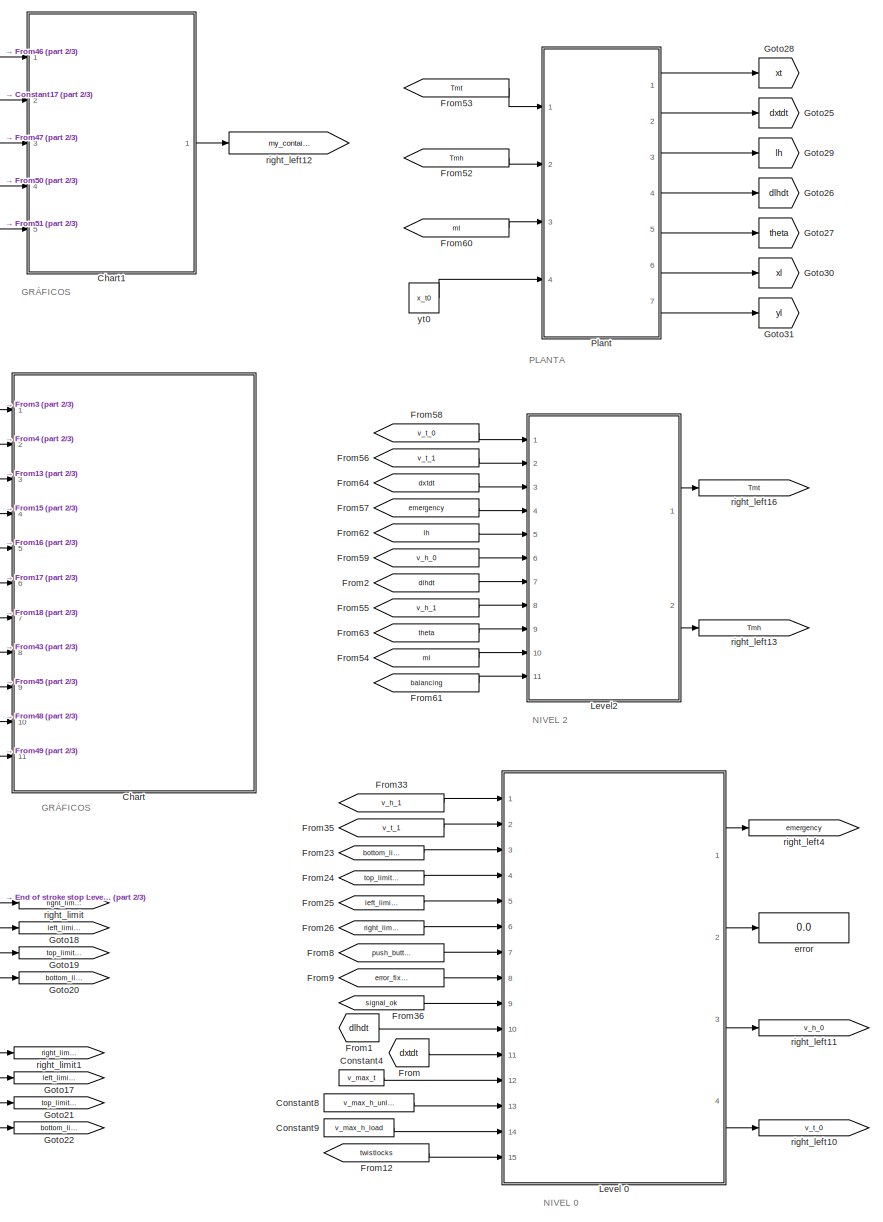
[diagram: root canvas - part 1/3, right side, full height]
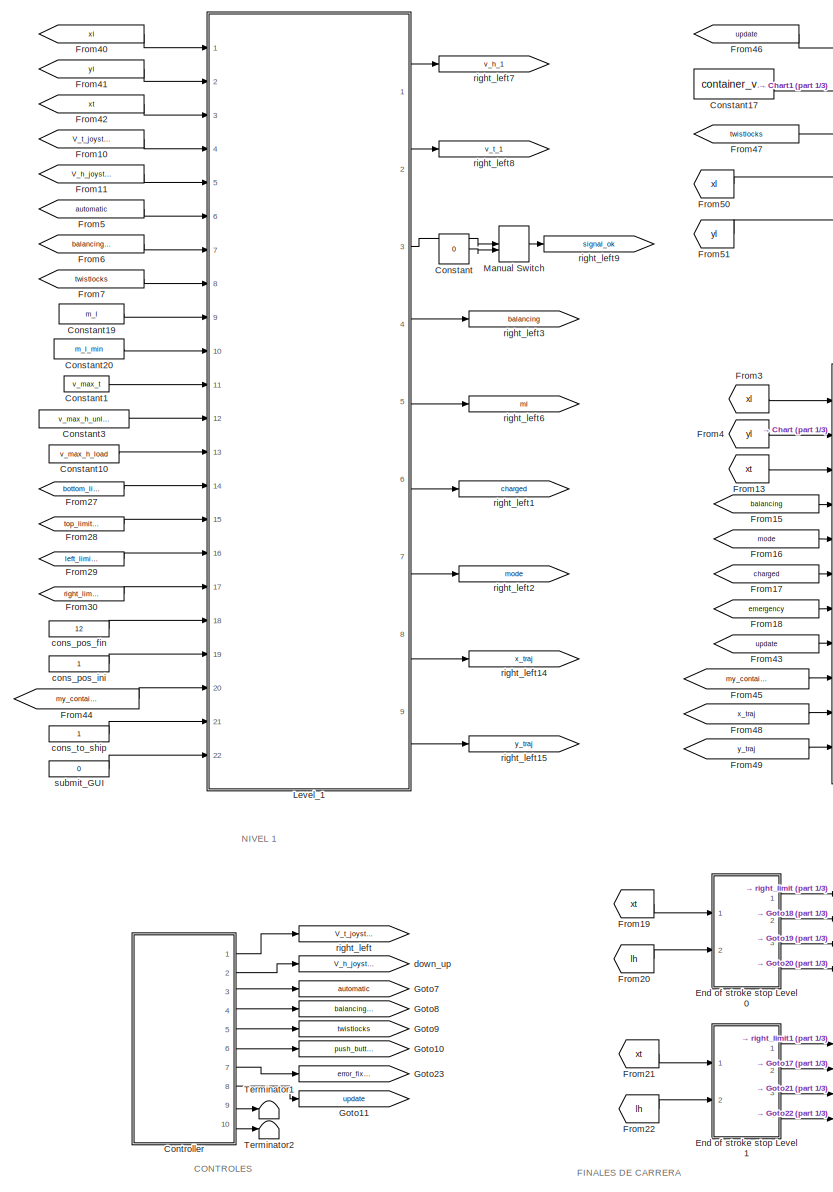
[diagram: root canvas - part 2/3, middle left region]
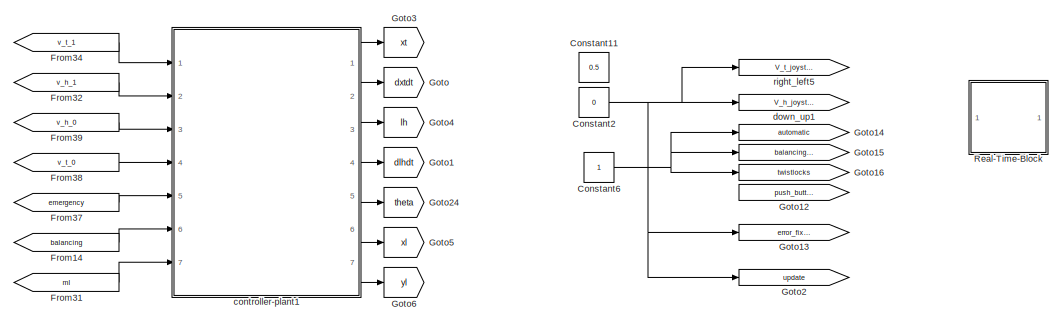
[diagram: root canvas - part 3/3, bottom center region]
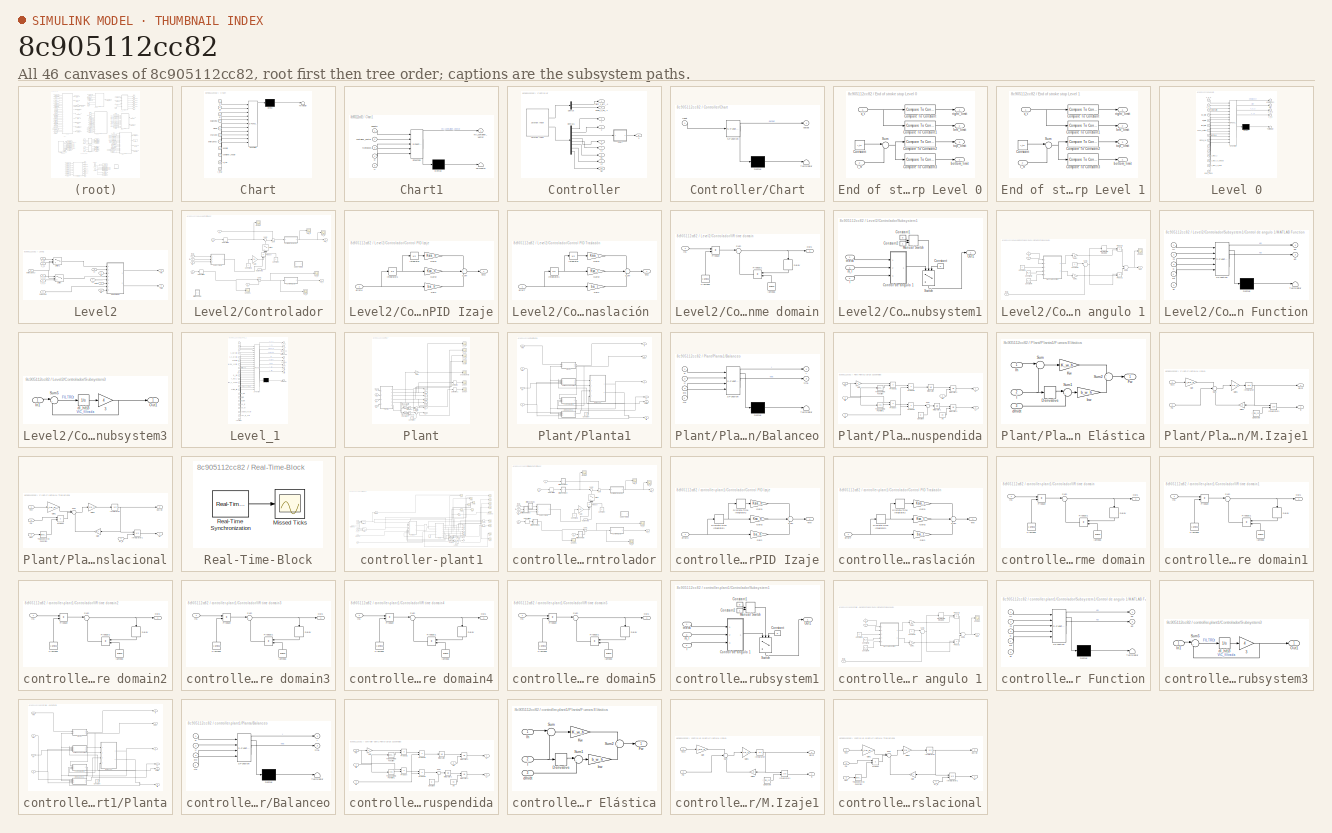
[diagram: thumbnail index - all 46 canvases of the model, root first then tree order]
MODEL slx_8c905112cc82
KIND model
CONFIG AbsTol = auto
CONFIG EnableMultiTasking = off
CONFIG FixedStep = 0.1
CONFIG MaxStep = auto
CONFIG MinStep = auto
CONFIG RelTol = 1e-2
CONFIG SampleTimeConstraint = Unconstrained
CONFIG Solver = VariableStepAuto
CONFIG SolverName = VariableStepAuto
CONFIG StartTime = 0.0
CONFIG StopTime = inf
BLOCK [SubSystem] Chart
  ErrorFcn = Stateflow.Translate.translate
  PermitHierarchicalResolution = ExplicitOnly
  Ports = [11]
  RequestExecContextInheritance = off
  SFBlockType = Chart
  TreatAsAtomicUnit = on
  Variant = off
BLOCK [Demux] Chart/ Demux 
  Outputs = 1
  Ports = [1, 1]
BLOCK [S-Function] Chart/ SFunction 
  EnableBusSupport = on
  FunctionName = sf_sfun
  PortCounts = [11 1]
  Ports = [11, 1]
  SFcnIsStateOwnerBlock = off
  SFunctionDeploymentMode = off
  Tag = Stateflow S-Function Proyecto_Final 6
BLOCK [Terminator] Chart/ Terminator 
BLOCK [Inport] Chart/balancing
  IconDisplay = Port number
  Port = 4
BLOCK [Inport] Chart/charged
  IconDisplay = Port number
  Port = 6
BLOCK [Inport] Chart/container_vector
  IconDisplay = Port number
  Port = 9
BLOCK [Inport] Chart/emergency
  IconDisplay = Port number
  Port = 7
BLOCK [Inport] Chart/mode
  IconDisplay = Port number
  Port = 5
BLOCK [Inport] Chart/update
  IconDisplay = Port number
  Port = 8
BLOCK [Inport] Chart/x_traj
  IconDisplay = Port number
  Port = 10
BLOCK [Inport] Chart/xl
  IconDisplay = Port number
BLOCK [Inport] Chart/xt
  IconDisplay = Port number
  Port = 3
BLOCK [Inport] Chart/y_traj
  IconDisplay = Port number
  Port = 11
BLOCK [Inport] Chart/yl
  IconDisplay = Port number
  Port = 2
BLOCK [SubSystem] Chart1
  ErrorFcn = Stateflow.Translate.translate
  PermitHierarchicalResolution = ExplicitOnly
  Ports = [5, 1]
  RequestExecContextInheritance = off
  SFBlockType = Chart
  TreatAsAtomicUnit = on
  Variant = off
BLOCK [Demux] Chart1/ Demux 
  Outputs = 1
  Ports = [1, 1]
BLOCK [S-Function] Chart1/ SFunction 
  EnableBusSupport = on
  FunctionName = sf_sfun
  PortCounts = [5 2]
  Ports = [5, 2]
  SFcnIsStateOwnerBlock = off
  SFunctionDeploymentMode = off
  Tag = Stateflow S-Function Proyecto_Final 1
BLOCK [Terminator] Chart1/ Terminator 
BLOCK [Inport] Chart1/container_vector
  IconDisplay = Port number
  Port = 2
BLOCK [Outport] Chart1/my_container_vector
  IconDisplay = Port number
BLOCK [Inport] Chart1/twistlocks
  IconDisplay = Port number
  Port = 3
BLOCK [Inport] Chart1/update
  IconDisplay = Port number
BLOCK [Inport] Chart1/xl
  IconDisplay = Port number
  Port = 4
BLOCK [Inport] Chart1/yl
  IconDisplay = Port number
  Port = 5
BLOCK [Constant] Constant
  Value = 0
BLOCK [Constant] Constant1
  Value = v_max_t
BLOCK [Constant] Constant10
  Value = v_max_h_load
BLOCK [Constant] Constant11
  Commented = on
  Value = 0.5
BLOCK [Constant] Constant17
  Value = container_vector
BLOCK [Constant] Constant19
  Value = m_l
BLOCK [Constant] Constant2
  Commented = on
  Value = 0
BLOCK [Constant] Constant20
  Value = m_l_min
BLOCK [Constant] Constant3
  Value = v_max_h_unload
BLOCK [Constant] Constant4
  Value = v_max_t
BLOCK [Constant] Constant6
  Commented = on
BLOCK [Constant] Constant8
  Value = v_max_h_unload
BLOCK [Constant] Constant9
  Value = v_max_h_load
BLOCK [SubSystem] Controller
  Ports = [0, 10]
  RequestExecContextInheritance = off
  Variant = off
BLOCK [Outport] Controller/1
  IconDisplay = Port number
  Port = 3
BLOCK [Outport] Controller/2
  IconDisplay = Port number
  Port = 4
BLOCK [Outport] Controller/3
  IconDisplay = Port number
  Port = 5
BLOCK [Outport] Controller/4
  IconDisplay = Port number
  Port = 6
BLOCK [SubSystem] Controller/Chart
  ErrorFcn = Stateflow.Translate.translate
  PermitHierarchicalResolution = ExplicitOnly
  Ports = [1, 1]
  RequestExecContextInheritance = off
  SFBlockType = Chart
  TreatAsAtomicUnit = on
  Variant = off
BLOCK [Demux] Controller/Chart/ Demux 
  Outputs = 1
  Ports = [1, 1]
BLOCK [S-Function] Controller/Chart/ SFunction 
  EnableBusSupport = on
  FunctionName = sf_sfun
  PortCounts = [1 2]
  Ports = [1, 2]
  SFcnIsStateOwnerBlock = off
  SFunctionDeploymentMode = off
  Tag = Stateflow S-Function Proyecto_Final 7
BLOCK [Terminator] Controller/Chart/ Terminator 
BLOCK [Inport] Controller/Chart/input
  IconDisplay = Port number
BLOCK [Outport] Controller/Chart/output
  IconDisplay = Port number
BLOCK [Demux] Controller/Demux
  DisplayOption = bar
  Outputs = 2
  Ports = [1, 2]
BLOCK [Demux] Controller/Demux1
  DisplayOption = bar
  Outputs = 8
  Ports = [1, 8]
BLOCK [Reference] Controller/Joystick Input  REF=vrlib/Joystick Input
  Ports = [0, 2]
  SourceBlock = vrlib/Joystick Input
  SourceProductBaseCode = VR
  SourceProductName = Simulink 3D Animation
  SourceType = Joystick Input
BLOCK [Outport] Controller/L1
  IconDisplay = Port number
  Port = 7
BLOCK [Outport] Controller/L2
  IconDisplay = Port number
  Port = 9
BLOCK [Outport] Controller/R1
  IconDisplay = Port number
  Port = 8
BLOCK [Outport] Controller/R2
  IconDisplay = Port number
  Port = 10
BLOCK [Outport] Controller/down_1_up_-1
  IconDisplay = Port number
  Port = 2
BLOCK [Outport] Controller/right_1_left_-1
  IconDisplay = Port number
BLOCK [SubSystem] End of stroke stop Level 0
  Ports = [2, 4]
  RequestExecContextInheritance = off
  Variant = off
BLOCK [Reference] End of stroke stop Level 0/Compare To Constant  REF=simulink/Logic and Bit
Operations/Compare
To Constant
  Ports = [1, 1]
  SourceBlock = simulink/Logic and Bit\nOperations/Compare\nTo Constant
  SourceProductBaseCode = SL
  SourceProductName = Simulink
  SourceType = Compare To Constant
BLOCK [Reference] End of stroke stop Level 0/Compare To Constant1  REF=simulink/Logic and Bit
Operations/Compare
To Constant
  Ports = [1, 1]
  SourceBlock = simulink/Logic and Bit\nOperations/Compare\nTo Constant
  SourceProductBaseCode = SL
  SourceProductName = Simulink
  SourceType = Compare To Constant
BLOCK [Reference] End of stroke stop Level 0/Compare To Constant2  REF=simulink/Logic and Bit
Operations/Compare
To Constant
  Ports = [1, 1]
  SourceBlock = simulink/Logic and Bit\nOperations/Compare\nTo Constant
  SourceProductBaseCode = SL
  SourceProductName = Simulink
  SourceType = Compare To Constant
BLOCK [Reference] End of stroke stop Level 0/Compare To Constant3  REF=simulink/Logic and Bit
Operations/Compare
To Constant
  Ports = [1, 1]
  SourceBlock = simulink/Logic and Bit\nOperations/Compare\nTo Constant
  SourceProductBaseCode = SL
  SourceProductName = Simulink
  SourceType = Compare To Constant
BLOCK [Constant] End of stroke stop Level 0/Constant
  Value = y_t0
BLOCK [Sum] End of stroke stop Level 0/Sum
  IconShape = round
  InputSameDT = off
  Inputs = |+-
  OutDataTypeStr = Inherit: Inherit via internal rule
  Ports = [2, 1]
  SaturateOnIntegerOverflow = off
BLOCK [Outport] End of stroke stop Level 0/bottom_limit
  IconDisplay = Port number
  Port = 4
BLOCK [Inport] End of stroke stop Level 0/l_h
  IconDisplay = Port number
  Port = 2
BLOCK [Outport] End of stroke stop Level 0/left_limit
  IconDisplay = Port number
  Port = 2
BLOCK [Outport] End of stroke stop Level 0/right_limit
  IconDisplay = Port number
BLOCK [Outport] End of stroke stop Level 0/top_limit
  IconDisplay = Port number
  Port = 3
BLOCK [Inport] End of stroke stop Level 0/x_t
  IconDisplay = Port number
BLOCK [SubSystem] End of stroke stop Level 1
  Ports = [2, 4]
  RequestExecContextInheritance = off
  Variant = off
BLOCK [Reference] End of stroke stop Level 1/Compare To Constant  REF=simulink/Logic and Bit
Operations/Compare
To Constant
  Ports = [1, 1]
  SourceBlock = simulink/Logic and Bit\nOperations/Compare\nTo Constant
  SourceProductBaseCode = SL
  SourceProductName = Simulink
  SourceType = Compare To Constant
BLOCK [Reference] End of stroke stop Level 1/Compare To Constant1  REF=simulink/Logic and Bit
Operations/Compare
To Constant
  Ports = [1, 1]
  SourceBlock = simulink/Logic and Bit\nOperations/Compare\nTo Constant
  SourceProductBaseCode = SL
  SourceProductName = Simulink
  SourceType = Compare To Constant
BLOCK [Reference] End of stroke stop Level 1/Compare To Constant2  REF=simulink/Logic and Bit
Operations/Compare
To Constant
  Ports = [1, 1]
  SourceBlock = simulink/Logic and Bit\nOperations/Compare\nTo Constant
  SourceProductBaseCode = SL
  SourceProductName = Simulink
  SourceType = Compare To Constant
BLOCK [Reference] End of stroke stop Level 1/Compare To Constant3  REF=simulink/Logic and Bit
Operations/Compare
To Constant
  Ports = [1, 1]
  SourceBlock = simulink/Logic and Bit\nOperations/Compare\nTo Constant
  SourceProductBaseCode = SL
  SourceProductName = Simulink
  SourceType = Compare To Constant
BLOCK [Constant] End of stroke stop Level 1/Constant
  Value = y_t0
BLOCK [Sum] End of stroke stop Level 1/Sum
  IconShape = round
  InputSameDT = off
  Inputs = |+-
  OutDataTypeStr = Inherit: Inherit via internal rule
  Ports = [2, 1]
  SaturateOnIntegerOverflow = off
BLOCK [Outport] End of stroke stop Level 1/bottom_limit
  IconDisplay = Port number
  Port = 4
BLOCK [Inport] End of stroke stop Level 1/l_h
  IconDisplay = Port number
  Port = 2
BLOCK [Outport] End of stroke stop Level 1/left_limit
  IconDisplay = Port number
  Port = 2
BLOCK [Outport] End of stroke stop Level 1/right_limit
  IconDisplay = Port number
BLOCK [Outport] End of stroke stop Level 1/top_limit
  IconDisplay = Port number
  Port = 3
BLOCK [Inport] End of stroke stop Level 1/x_t
  IconDisplay = Port number
BLOCK [From] From
  GotoTag = dxtdt
BLOCK [From] From1
  GotoTag = dlhdt
BLOCK [From] From10
  GotoTag = V_t_joystick
BLOCK [From] From11
  GotoTag = V_h_joystick
BLOCK [From] From12
  GotoTag = twistlocks
BLOCK [From] From13
  GotoTag = xt
BLOCK [From] From14
  Commented = on
  GotoTag = balancing
BLOCK [From] From15
  GotoTag = balancing
BLOCK [From] From16
  GotoTag = mode
BLOCK [From] From17
  GotoTag = charged
BLOCK [From] From18
  GotoTag = emergency
BLOCK [From] From19
  GotoTag = xt
BLOCK [From] From2
  GotoTag = dlhdt
BLOCK [From] From20
  GotoTag = lh
BLOCK [From] From21
  GotoTag = xt
BLOCK [From] From22
  GotoTag = lh
BLOCK [From] From23
  GotoTag = bottom_limit_0
BLOCK [From] From24
  GotoTag = top_limit_0
BLOCK [From] From25
  GotoTag = left_limit_0
BLOCK [From] From26
  GotoTag = right_limit_0
BLOCK [From] From27
  GotoTag = bottom_limit_1
BLOCK [From] From28
  GotoTag = top_limit_1
BLOCK [From] From29
  GotoTag = left_limit_1
BLOCK [From] From3
  GotoTag = xl
BLOCK [From] From30
  GotoTag = right_limit_1
BLOCK [From] From31
  Commented = on
  GotoTag = ml
BLOCK [From] From32
  Commented = on
  GotoTag = v_h_1
BLOCK [From] From33
  GotoTag = v_h_1
BLOCK [From] From34
  Commented = on
  GotoTag = v_t_1
BLOCK [From] From35
  GotoTag = v_t_1
BLOCK [From] From36
  GotoTag = signal_ok
BLOCK [From] From37
  Commented = on
  GotoTag = emergency
BLOCK [From] From38
  Commented = on
  GotoTag = v_t_0
BLOCK [From] From39
  Commented = on
  GotoTag = v_h_0
BLOCK [From] From4
  GotoTag = yl
BLOCK [From] From40
  GotoTag = xl
BLOCK [From] From41
  GotoTag = yl
BLOCK [From] From42
  GotoTag = xt
BLOCK [From] From43
  GotoTag = update
BLOCK [From] From44
  GotoTag = my_container_vector
BLOCK [From] From45
  GotoTag = my_container_vector
BLOCK [From] From46
  GotoTag = update
BLOCK [From] From47
  GotoTag = twistlocks
BLOCK [From] From48
  GotoTag = x_traj
BLOCK [From] From49
  GotoTag = y_traj
BLOCK [From] From5
  GotoTag = automatic
BLOCK [From] From50
  GotoTag = xl
BLOCK [From] From51
  GotoTag = yl
BLOCK [From] From52
  GotoTag = Tmh
BLOCK [From] From53
  GotoTag = Tmt
BLOCK [From] From54
  GotoTag = ml
BLOCK [From] From55
  GotoTag = v_h_1
BLOCK [From] From56
  GotoTag = v_t_1
BLOCK [From] From57
  GotoTag = emergency
BLOCK [From] From58
  GotoTag = v_t_0
BLOCK [From] From59
  GotoTag = v_h_0
BLOCK [From] From6
  GotoTag = balancing_control
BLOCK [From] From60
  GotoTag = ml
BLOCK [From] From61
  GotoTag = balancing
BLOCK [From] From62
  GotoTag = lh
BLOCK [From] From63
  GotoTag = theta
BLOCK [From] From64
  GotoTag = dxtdt
BLOCK [From] From7
  GotoTag = twistlocks
BLOCK [From] From8
  GotoTag = push_button
BLOCK [From] From9
  GotoTag = error_fixed
BLOCK [Goto] Goto
  Commented = on
  GotoTag = dxtdt
BLOCK [Goto] Goto1
  Commented = on
  GotoTag = dlhdt
BLOCK [Goto] Goto10
  GotoTag = push_button
BLOCK [Goto] Goto11
  GotoTag = update
BLOCK [Goto] Goto12
  Commented = on
  GotoTag = push_button
BLOCK [Goto] Goto13
  Commented = on
  GotoTag = error_fixed
BLOCK [Goto] Goto14
  Commented = on
  GotoTag = automatic
BLOCK [Goto] Goto15
  Commented = on
  GotoTag = balancing_control
BLOCK [Goto] Goto16
  Commented = on
  GotoTag = twistlocks
BLOCK [Goto] Goto17
  GotoTag = left_limit_1
BLOCK [Goto] Goto18
  GotoTag = left_limit_0
BLOCK [Goto] Goto19
  GotoTag = top_limit_0
BLOCK [Goto] Goto2
  Commented = on
  GotoTag = update
BLOCK [Goto] Goto20
  GotoTag = bottom_limit_0
BLOCK [Goto] Goto21
  GotoTag = top_limit_1
BLOCK [Goto] Goto22
  GotoTag = bottom_limit_1
BLOCK [Goto] Goto23
  GotoTag = error_fixed
BLOCK [Goto] Goto24
  Commented = on
  GotoTag = theta
BLOCK [Goto] Goto25
  GotoTag = dxtdt
BLOCK [Goto] Goto26
  GotoTag = dlhdt
BLOCK [Goto] Goto27
  GotoTag = theta
BLOCK [Goto] Goto28
  GotoTag = xt
BLOCK [Goto] Goto29
  GotoTag = lh
BLOCK [Goto] Goto3
  Commented = on
  GotoTag = xt
BLOCK [Goto] Goto30
  GotoTag = xl
BLOCK [Goto] Goto31
  GotoTag = yl
BLOCK [Goto] Goto4
  Commented = on
  GotoTag = lh
BLOCK [Goto] Goto5
  Commented = on
  GotoTag = xl
BLOCK [Goto] Goto6
  Commented = on
  GotoTag = yl
BLOCK [Goto] Goto7
  GotoTag = automatic
BLOCK [Goto] Goto8
  GotoTag = balancing_control
BLOCK [Goto] Goto9
  GotoTag = twistlocks
BLOCK [SubSystem] Level 0
  ErrorFcn = Stateflow.Translate.translate
  PermitHierarchicalResolution = ExplicitOnly
  Ports = [15, 4]
  RequestExecContextInheritance = off
  SFBlockType = Chart
  TreatAsAtomicUnit = on
  Variant = off
BLOCK [Demux] Level 0/ Demux 
  Outputs = 1
  Ports = [1, 1]
BLOCK [S-Function] Level 0/ SFunction 
  EnableBusSupport = on
  FunctionName = sf_sfun
  PortCounts = [15 5]
  Ports = [15, 5]
  SFcnIsStateOwnerBlock = off
  SFunctionDeploymentMode = off
  Tag = Stateflow S-Function Proyecto_Final 2
BLOCK [Terminator] Level 0/ Terminator 
BLOCK [Inport] Level 0/bottom_limit
  IconDisplay = Port number
  Port = 3
BLOCK [Outport] Level 0/emergency
  IconDisplay = Port number
BLOCK [Outport] Level 0/error
  IconDisplay = Port number
  Port = 2
BLOCK [Inport] Level 0/error_fixed
  IconDisplay = Port number
  Port = 8
BLOCK [Inport] Level 0/left_limit
  IconDisplay = Port number
  Port = 5
BLOCK [Inport] Level 0/load_crane
  IconDisplay = Port number
  Port = 15
BLOCK [Inport] Level 0/push_button
  IconDisplay = Port number
  Port = 7
BLOCK [Inport] Level 0/right_limit
  IconDisplay = Port number
  Port = 6
BLOCK [Inport] Level 0/signal_ok
  IconDisplay = Port number
  Port = 9
BLOCK [Inport] Level 0/top_limit
  IconDisplay = Port number
  Port = 4
BLOCK [Inport] Level 0/v_h
  IconDisplay = Port number
  Port = 10
BLOCK [Outport] Level 0/v_h_0
  IconDisplay = Port number
  Port = 3
BLOCK [Inport] Level 0/v_h_1
  IconDisplay = Port number
BLOCK [Inport] Level 0/v_max_h_load
  IconDisplay = Port number
  Port = 14
BLOCK [Inport] Level 0/v_max_h_unload
  IconDisplay = Port number
  Port = 13
BLOCK [Inport] Level 0/v_max_t
  IconDisplay = Port number
  Port = 12
BLOCK [Inport] Level 0/v_t
  IconDisplay = Port number
  Port = 11
BLOCK [Outport] Level 0/v_t_0
  IconDisplay = Port number
  Port = 4
BLOCK [Inport] Level 0/v_t_1
  IconDisplay = Port number
  Port = 2
BLOCK [SubSystem] Level2
  Ports = [11, 2]
  RequestExecContextInheritance = off
  Variant = off
BLOCK [SubSystem] Level2/Controlador
  Ports = [8, 2]
  RequestExecContextInheritance = off
  Variant = off
BLOCK [Constant] Level2/Controlador/Constant
  Value = 0
BLOCK [Constant] Level2/Controlador/Constant1
BLOCK [SubSystem] Level2/Controlador/Control PID Izaje
  Ports = [1, 1]
  RequestExecContextInheritance = off
  Variant = off
BLOCK [Gain] Level2/Controlador/Control PID Izaje/Gain
  Gain = ba_h
  OutDataTypeStr = Inherit: Inherit via internal rule
  ParamDataTypeStr = Inherit: Inherit via internal rule
  SaturateOnIntegerOverflow = off
BLOCK [Gain] Level2/Controlador/Control PID Izaje/Gain1
  Gain = Ksia_h
  OutDataTypeStr = Inherit: Inherit via internal rule
  ParamDataTypeStr = Inherit: Inherit via internal rule
  SaturateOnIntegerOverflow = off
BLOCK [Gain] Level2/Controlador/Control PID Izaje/Gain2
  Gain = Ksa_h
  OutDataTypeStr = Inherit: Inherit via internal rule
  ParamDataTypeStr = Inherit: Inherit via internal rule
  SaturateOnIntegerOverflow = off
BLOCK [Integrator] Level2/Controlador/Control PID Izaje/Integrator
  Ports = [1, 1]
BLOCK [Integrator] Level2/Controlador/Control PID Izaje/Integrator1
  Ports = [1, 1]
BLOCK [Sum] Level2/Controlador/Control PID Izaje/Sum
  IconShape = round
  InputSameDT = off
  Inputs = +++
  OutDataTypeStr = Inherit: Inherit via internal rule
  Ports = [3, 1]
  SaturateOnIntegerOverflow = off
BLOCK [Outport] Level2/Controlador/Control PID Izaje/Tmh
  IconDisplay = Port number
BLOCK [Inport] Level2/Controlador/Control PID Izaje/errorH
  IconDisplay = Port number
BLOCK [SubSystem] Level2/Controlador/Control PID Traslación 
  Ports = [1, 1]
  RequestExecContextInheritance = off
  Variant = off
BLOCK [Gain] Level2/Controlador/Control PID Traslación /Gain
  Gain = ba_t
  OutDataTypeStr = Inherit: Inherit via internal rule
  ParamDataTypeStr = Inherit: Inherit via internal rule
  SaturateOnIntegerOverflow = off
BLOCK [Gain] Level2/Controlador/Control PID Traslación /Gain1
  Gain = Ksia_t
  OutDataTypeStr = Inherit: Inherit via internal rule
  ParamDataTypeStr = Inherit: Inherit via internal rule
  SaturateOnIntegerOverflow = off
BLOCK [Gain] Level2/Controlador/Control PID Traslación /Gain2
  Gain = Ksa_t
  OutDataTypeStr = Inherit: Inherit via internal rule
  ParamDataTypeStr = Inherit: Inherit via internal rule
  SaturateOnIntegerOverflow = off
BLOCK [Integrator] Level2/Controlador/Control PID Traslación /Integrator
  Ports = [1, 1]
BLOCK [Integrator] Level2/Controlador/Control PID Traslación /Integrator1
  Ports = [1, 1]
BLOCK [Sum] Level2/Controlador/Control PID Traslación /Sum
  IconShape = round
  InputSameDT = off
  Inputs = +++
  OutDataTypeStr = Inherit: Inherit via internal rule
  Ports = [3, 1]
  SaturateOnIntegerOverflow = off
BLOCK [Outport] Level2/Controlador/Control PID Traslación /Tmt
  IconDisplay = Port number
BLOCK [Inport] Level2/Controlador/Control PID Traslación /errorT
  IconDisplay = Port number
BLOCK [Gain] Level2/Controlador/Gain
  Gain = 0.4
  OutDataTypeStr = Inherit: Inherit via internal rule
  ParamDataTypeStr = Inherit: Inherit via internal rule
  SaturateOnIntegerOverflow = off
BLOCK [SubSystem] Level2/Controlador/IIR time domain
  Commented = on
  Ports = [1, 1]
  RequestExecContextInheritance = off
  Variant = off
BLOCK [Constant] Level2/Controlador/IIR time domain/1-lambda
  Value = 1-lambda
BLOCK [Delay] Level2/Controlador/IIR time domain/Delay
  DelayLength = 1
  InputPortMap = u0
  Ports = [1, 1]
BLOCK [Inport] Level2/Controlador/IIR time domain/In1
  IconDisplay = Port number
BLOCK [Outport] Level2/Controlador/IIR time domain/Out1
  IconDisplay = Port number
BLOCK [Product] Level2/Controlador/IIR time domain/Product
  InputSameDT = off
  OutDataTypeStr = Inherit: Inherit via internal rule
  Ports = [2, 1]
  RndMeth = Floor
  SaturateOnIntegerOverflow = off
BLOCK [Product] Level2/Controlador/IIR time domain/Product1
  InputSameDT = off
  OutDataTypeStr = Inherit: Inherit via internal rule
  Ports = [2, 1]
  RndMeth = Floor
  SaturateOnIntegerOverflow = off
BLOCK [Sum] Level2/Controlador/IIR time domain/Sum
  IconShape = round
  InputSameDT = off
  Inputs = |++
  OutDataTypeStr = Inherit: Inherit via internal rule
  Ports = [2, 1]
  SaturateOnIntegerOverflow = off
BLOCK [Constant] Level2/Controlador/IIR time domain/lambda
  Value = lambda
BLOCK [Product] Level2/Controlador/Product
  InputSameDT = off
  OutDataTypeStr = Inherit: Inherit via internal rule
  Ports = [2, 1]
  RndMeth = Floor
  SaturateOnIntegerOverflow = off
BLOCK [RateLimiter] Level2/Controlador/Rate Limiter1
  FallingSlewLimit = -0.4
  RisingSlewLimit = 0.4
  SampleTimeMode = inherited
BLOCK [RateLimiter] Level2/Controlador/Rate Limiter2
  FallingSlewLimit = -0.4
  RisingSlewLimit = 0.4
  SampleTimeMode = inherited
BLOCK [Scope] Level2/Controlador/Scope
  NumInputPorts = 1
  Ports = [1]
  ScopeSpecificationString = Simulink.scopes.TimeScopeBlockCfg('CurrentConfiguration', extmgr.ConfigurationSet(extmgr.Configuration('Core','General UI',true),extmgr.Configuration('Core','Source UI',true),extmgr.Configuration('Sources','WiredSimulink',true,'DataLoggingVariableName','ScopeData5'),extmgr.Configuration('Visuals','Time Domain',true,'SerializedDisplays',{struct('MinYLimReal','-2.47142','MaxYLimReal','2.20797','YLab...<+1375ch>
BLOCK [Scope] Level2/Controlador/Scope1
  NumInputPorts = 1
  Ports = [1]
  ScopeSpecificationString = Simulink.scopes.TimeScopeBlockCfg('CurrentConfiguration', extmgr.ConfigurationSet(extmgr.Configuration('Core','General UI',true),extmgr.Configuration('Core','Source UI',true),extmgr.Configuration('Sources','WiredSimulink',true,'DataLoggingVariableName','ScopeData6'),extmgr.Configuration('Visuals','Time Domain',true,'SerializedDisplays',{struct('MinYLimReal','-1.73274','MaxYLimReal','0.59467','YLab...<+1419ch>
BLOCK [SubSystem] Level2/Controlador/Subsystem1
  Ports = [3, 1]
  RequestExecContextInheritance = off
  Variant = off
BLOCK [Constant] Level2/Controlador/Subsystem1/Constant
  Value = 0
BLOCK [Constant] Level2/Controlador/Subsystem1/Constant1
  Value = 0
BLOCK [Constant] Level2/Controlador/Subsystem1/Constant2
BLOCK [SubSystem] Level2/Controlador/Subsystem1/Control de angulo 1
  Ports = [3, 1]
  RequestExecContextInheritance = off
  Variant = off
BLOCK [Constant] Level2/Controlador/Subsystem1/Control de angulo 1/Constant1
  Value = 4
BLOCK [Constant] Level2/Controlador/Subsystem1/Control de angulo 1/Constant2
  Value = M_t
BLOCK [Constant] Level2/Controlador/Subsystem1/Control de angulo 1/Constant3
  Value = 0
BLOCK [Constant] Level2/Controlador/Subsystem1/Control de angulo 1/Constant4
  Value = b_t
BLOCK [DiscreteIntegrator] Level2/Controlador/Subsystem1/Control de angulo 1/Discrete-Time Integrator2
  ICPrevOutput = DiscIntNeverNeededParam
  ICPrevScaledInput = DiscIntNeverNeededParam
  InitialConditionSetting = State (most efficient)
  Ports = [1, 1]
  SampleTime = 0.02
BLOCK [Gain] Level2/Controlador/Subsystem1/Control de angulo 1/Gain1
  OutDataTypeStr = Inherit: Inherit via internal rule
  ParamDataTypeStr = Inherit: Inherit via internal rule
  SaturateOnIntegerOverflow = off
BLOCK [Gain] Level2/Controlador/Subsystem1/Control de angulo 1/Gain2
  OutDataTypeStr = Inherit: Inherit via internal rule
  ParamDataTypeStr = Inherit: Inherit via internal rule
  SaturateOnIntegerOverflow = off
BLOCK [SubSystem] Level2/Controlador/Subsystem1/Control de angulo 1/MATLAB Function
  ErrorFcn = Stateflow.Translate.translate
  PermitHierarchicalResolution = ExplicitOnly
  Ports = [5, 2]
  RequestExecContextInheritance = off
  SFBlockType = MATLAB Function
  TreatAsAtomicUnit = on
  Variant = off
BLOCK [Demux] Level2/Controlador/Subsystem1/Control de angulo 1/MATLAB Function/ Demux 
  Outputs = 1
  Ports = [1, 1]
BLOCK [S-Function] Level2/Controlador/Subsystem1/Control de angulo 1/MATLAB Function/ SFunction 
  EnableBusSupport = on
  FunctionName = sf_sfun
  PortCounts = [5 3]
  Ports = [5, 3]
  SFcnIsStateOwnerBlock = off
  SFunctionDeploymentMode = off
  Tag = Stateflow S-Function Proyecto_Final 3
BLOCK [Terminator] Level2/Controlador/Subsystem1/Control de angulo 1/MATLAB Function/ Terminator 
BLOCK [Inport] Level2/Controlador/Subsystem1/Control de angulo 1/MATLAB Function/Mt
  IconDisplay = Port number
  Port = 4
BLOCK [Inport] Level2/Controlador/Subsystem1/Control de angulo 1/MATLAB Function/bt
  IconDisplay = Port number
  Port = 5
BLOCK [Outport] Level2/Controlador/Subsystem1/Control de angulo 1/MATLAB Function/kd
  IconDisplay = Port number
  Port = 2
BLOCK [Outport] Level2/Controlador/Subsystem1/Control de angulo 1/MATLAB Function/kp
  IconDisplay = Port number
BLOCK [Inport] Level2/Controlador/Subsystem1/Control de angulo 1/MATLAB Function/lh
  IconDisplay = Port number
BLOCK [Inport] Level2/Controlador/Subsystem1/Control de angulo 1/MATLAB Function/m
  IconDisplay = Port number
  Port = 2
BLOCK [Inport] Level2/Controlador/Subsystem1/Control de angulo 1/MATLAB Function/p
  IconDisplay = Port number
  Port = 3
BLOCK [Outport] Level2/Controlador/Subsystem1/Control de angulo 1/Out1
  IconDisplay = Port number
BLOCK [Product] Level2/Controlador/Subsystem1/Control de angulo 1/Product1
  InputSameDT = off
  OutDataTypeStr = Inherit: Inherit via internal rule
  Ports = [2, 1]
  RndMeth = Floor
  SaturateOnIntegerOverflow = off
BLOCK [Product] Level2/Controlador/Subsystem1/Control de angulo 1/Product3
  InputSameDT = off
  OutDataTypeStr = Inherit: Inherit via internal rule
  Ports = [2, 1]
  RndMeth = Floor
  SaturateOnIntegerOverflow = off
BLOCK [Scope] Level2/Controlador/Subsystem1/Control de angulo 1/Scope1
  NumInputPorts = 1
  Ports = [1]
  ScopeSpecificationString = Simulink.scopes.TimeScopeBlockCfg('CurrentConfiguration', extmgr.ConfigurationSet(extmgr.Configuration('Core','General UI',true),extmgr.Configuration('Core','Source UI',true),extmgr.Configuration('Sources','WiredSimulink',true,'DataLoggingVariableName','ScopeData1'),extmgr.Configuration('Visuals','Time Domain',true,'SerializedDisplays',{struct('MinYLimReal','-28.82753','MaxYLimReal','28.51807','YL...<+1558ch>
BLOCK [Sum] Level2/Controlador/Subsystem1/Control de angulo 1/Sum5
  IconShape = round
  InputSameDT = off
  Inputs = |+++|
  OutDataTypeStr = Inherit: Inherit via internal rule
  Ports = [3, 1]
  SaturateOnIntegerOverflow = off
BLOCK [Sum] Level2/Controlador/Subsystem1/Control de angulo 1/Sum6
  IconShape = round
  InputSameDT = off
  Inputs = |+-
  OutDataTypeStr = Inherit: Inherit via internal rule
  Ports = [2, 1]
  SaturateOnIntegerOverflow = off
BLOCK [Inport] Level2/Controlador/Subsystem1/Control de angulo 1/l
  IconDisplay = Port number
  Port = 3
BLOCK [Inport] Level2/Controlador/Subsystem1/Control de angulo 1/m
  IconDisplay = Port number
  Port = 2
BLOCK [Inport] Level2/Controlador/Subsystem1/Control de angulo 1/theta
  IconDisplay = Port number
BLOCK [ManualSwitch] Level2/Controlador/Subsystem1/Manual Switch
  CurrentSetting = 0
BLOCK [Outport] Level2/Controlador/Subsystem1/Out1
  IconDisplay = Port number
BLOCK [Switch] Level2/Controlador/Subsystem1/Switch
  Criteria = u2 > Threshold
  InputSameDT = off
  SaturateOnIntegerOverflow = off
BLOCK [Inport] Level2/Controlador/Subsystem1/l
  IconDisplay = Port number
  Port = 2
BLOCK [Inport] Level2/Controlador/Subsystem1/m_l
  IconDisplay = Port number
  Port = 3
BLOCK [Inport] Level2/Controlador/Subsystem1/theta
  IconDisplay = Port number
BLOCK [SubSystem] Level2/Controlador/Subsystem3
  Ports = [1, 1]
  RequestExecContextInheritance = off
  Variant = off
BLOCK [Gain] Level2/Controlador/Subsystem3/3
  Gain = 4
  OutDataTypeStr = Inherit: Inherit via internal rule
  ParamDataTypeStr = Inherit: Inherit via internal rule
  SaturateOnIntegerOverflow = off
BLOCK [Inport] Level2/Controlador/Subsystem3/In1
  IconDisplay = Port number
BLOCK [Outport] Level2/Controlador/Subsystem3/Out1
  IconDisplay = Port number
BLOCK [Sum] Level2/Controlador/Subsystem3/Sum5
  IconShape = round
  InputSameDT = off
  Inputs = |+-
  OutDataTypeStr = Inherit: Inherit via internal rule
  Ports = [2, 1]
  SaturateOnIntegerOverflow = off
BLOCK [Integrator] Level2/Controlador/Subsystem3/dl_h(t)3
  Ports = [1, 1]
BLOCK [Sum] Level2/Controlador/Sum
  IconShape = round
  InputSameDT = off
  Inputs = -+|
  OutDataTypeStr = Inherit: Inherit via internal rule
  Ports = [2, 1]
  SaturateOnIntegerOverflow = off
BLOCK [Sum] Level2/Controlador/Sum1
  IconShape = round
  InputSameDT = off
  Inputs = |+-
  OutDataTypeStr = Inherit: Inherit via internal rule
  Ports = [2, 1]
  SaturateOnIntegerOverflow = off
BLOCK [Sum] Level2/Controlador/Sum2
  IconShape = round
  InputSameDT = off
  Inputs = |+-
  OutDataTypeStr = Inherit: Inherit via internal rule
  Ports = [2, 1]
  SaturateOnIntegerOverflow = off
BLOCK [Switch] Level2/Controlador/Switch
  Criteria = u2 > Threshold
  InputSameDT = off
  SaturateOnIntegerOverflow = off
  Threshold = 0.5
BLOCK [Outport] Level2/Controlador/Tm_h
  IconDisplay = Port number
  Port = 2
BLOCK [Outport] Level2/Controlador/Tm_t
  IconDisplay = Port number
BLOCK [Scope] Level2/Controlador/Tm_t1
  NumInputPorts = 1
  Ports = [1]
  ScopeSpecificationString = Simulink.scopes.TimeScopeBlockCfg('CurrentConfiguration', extmgr.ConfigurationSet(extmgr.Configuration('Core','General UI',true),extmgr.Configuration('Core','Source UI',true),extmgr.Configuration('Sources','WiredSimulink',true,'DataLoggingVariableName','ScopeData8'),extmgr.Configuration('Visuals','Time Domain',true,'SerializedDisplays',{struct('MinYLimReal','-517.87059','MaxYLimReal','3504.9005','...<+1466ch>
BLOCK [Scope] Level2/Controlador/Tm_t2
  NumInputPorts = 1
  Ports = [1]
  ScopeSpecificationString = Simulink.scopes.TimeScopeBlockCfg('CurrentConfiguration', extmgr.ConfigurationSet(extmgr.Configuration('Core','General UI',true),extmgr.Configuration('Core','Source UI',true),extmgr.Configuration('Sources','WiredSimulink',true,'DataLoggingVariableName','ScopeData9'),extmgr.Configuration('Visuals','Time Domain',true,'SerializedDisplays',{struct('MinYLimReal','-1521.6324','MaxYLimReal','4579.3079','...<+1468ch>
BLOCK [Scope] Level2/Controlador/Tm_t3
  NumInputPorts = 1
  Ports = [1]
  ScopeSpecificationString = Simulink.scopes.TimeScopeBlockCfg('CurrentConfiguration', extmgr.ConfigurationSet(extmgr.Configuration('Core','General UI',true),extmgr.Configuration('Core','Source UI',true),extmgr.Configuration('Sources','WiredSimulink',true,'DataLoggingVariableName','ScopeData10'),extmgr.Configuration('Visuals','Time Domain',true,'SerializedDisplays',{struct('MinYLimReal','-0.0228','MaxYLimReal','0.02906','YLab...<+1433ch>
BLOCK [Scope] Level2/Controlador/Tm_t4
  NumInputPorts = 1
  Ports = [1]
  ScopeSpecificationString = Simulink.scopes.TimeScopeBlockCfg('CurrentConfiguration', extmgr.ConfigurationSet(extmgr.Configuration('Core','General UI',true),extmgr.Configuration('Core','Source UI',true),extmgr.Configuration('Sources','WiredSimulink',true,'DataLoggingVariableName','ScopeData11'),extmgr.Configuration('Visuals','Time Domain',true,'SerializedDisplays',{struct('MinYLimReal','-0.01399','MaxYLimReal','0.02641','YLa...<+1434ch>
BLOCK [Inport] Level2/Controlador/balancing
  IconDisplay = Port number
  Port = 7
BLOCK [Inport] Level2/Controlador/lh
  IconDisplay = Port number
  Port = 3
BLOCK [Inport] Level2/Controlador/ml
  IconDisplay = Port number
  Port = 8
BLOCK [Inport] Level2/Controlador/theta
  IconDisplay = Port number
  Port = 6
BLOCK [Inport] Level2/Controlador/vh
  IconDisplay = Port number
  Port = 5
BLOCK [Inport] Level2/Controlador/vh*
  IconDisplay = Port number
  Port = 4
BLOCK [Inport] Level2/Controlador/vt
  IconDisplay = Port number
  Port = 2
BLOCK [Inport] Level2/Controlador/vt*
  IconDisplay = Port number
BLOCK [Switch] Level2/Switch
  Criteria = u2 > Threshold
  InputSameDT = off
  SaturateOnIntegerOverflow = off
  Threshold = 0.5
BLOCK [Switch] Level2/Switch1
  Criteria = u2 > Threshold
  InputSameDT = off
  SaturateOnIntegerOverflow = off
  Threshold = 0.5
BLOCK [Outport] Level2/Tmh 
  IconDisplay = Port number
  Port = 2
BLOCK [Outport] Level2/Tmt
  IconDisplay = Port number
BLOCK [Inport] Level2/balancing
  IconDisplay = Port number
  Port = 11
BLOCK [Inport] Level2/emergency
  IconDisplay = Port number
  Port = 4
BLOCK [Inport] Level2/lh
  IconDisplay = Port number
  Port = 5
BLOCK [Inport] Level2/ml
  IconDisplay = Port number
  Port = 10
BLOCK [Inport] Level2/theta
  IconDisplay = Port number
  Port = 9
BLOCK [Inport] Level2/v_h_0
  IconDisplay = Port number
  Port = 6
BLOCK [Inport] Level2/v_h_1
  IconDisplay = Port number
  Port = 8
BLOCK [Inport] Level2/v_t_0
  IconDisplay = Port number
BLOCK [Inport] Level2/v_t_1
  IconDisplay = Port number
  Port = 2
BLOCK [Inport] Level2/vh
  IconDisplay = Port number
  Port = 7
BLOCK [Inport] Level2/vt
  IconDisplay = Port number
  Port = 3
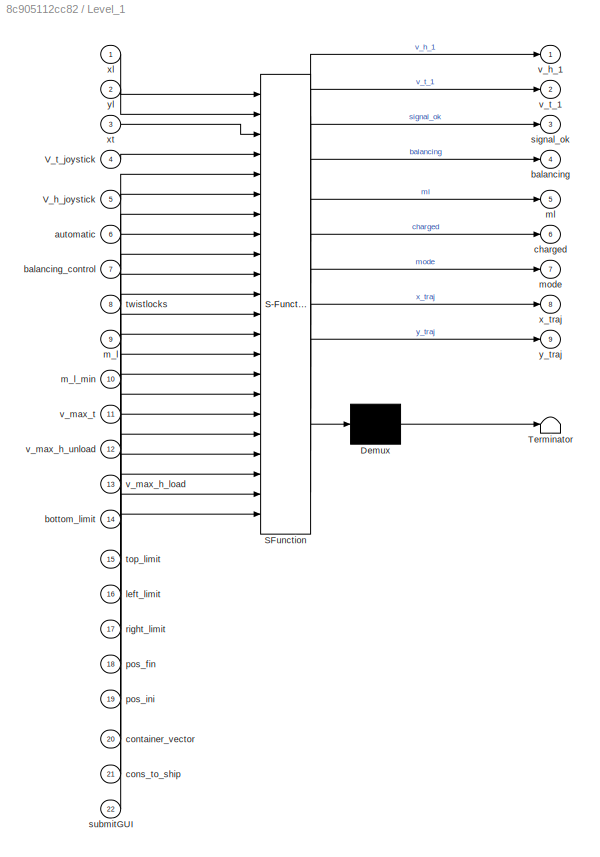
BLOCK [SubSystem] Level_1 
  ErrorFcn = Stateflow.Translate.translate
  PermitHierarchicalResolution = ExplicitOnly
  Ports = [22, 9]
  RequestExecContextInheritance = off
  SFBlockType = Chart
  TreatAsAtomicUnit = on
  Variant = off
BLOCK [Demux] Level_1 / Demux 
  Outputs = 1
  Ports = [1, 1]
BLOCK [S-Function] Level_1 / SFunction 
  EnableBusSupport = on
  FunctionName = sf_sfun
  PortCounts = [22 10]
  Ports = [22, 10]
  SFcnIsStateOwnerBlock = off
  SFunctionDeploymentMode = off
  Tag = Stateflow S-Function Proyecto_Final 5
BLOCK [Terminator] Level_1 / Terminator 
BLOCK [Inport] Level_1 /V_h_joystick
  IconDisplay = Port number
  Port = 5
BLOCK [Inport] Level_1 /V_t_joystick
  IconDisplay = Port number
  Port = 4
BLOCK [Inport] Level_1 /automatic
  IconDisplay = Port number
  Port = 6
BLOCK [Outport] Level_1 /balancing
  IconDisplay = Port number
  Port = 4
BLOCK [Inport] Level_1 /balancing_control
  IconDisplay = Port number
  Port = 7
BLOCK [Inport] Level_1 /bottom_limit
  IconDisplay = Port number
  Port = 14
BLOCK [Outport] Level_1 /charged
  IconDisplay = Port number
  Port = 6
BLOCK [Inport] Level_1 /cons_to_ship
  IconDisplay = Port number
  Port = 21
BLOCK [Inport] Level_1 /container_vector
  IconDisplay = Port number
  Port = 20
BLOCK [Inport] Level_1 /left_limit
  IconDisplay = Port number
  Port = 16
BLOCK [Inport] Level_1 /m_l
  IconDisplay = Port number
  Port = 9
BLOCK [Inport] Level_1 /m_l_min
  IconDisplay = Port number
  Port = 10
BLOCK [Outport] Level_1 /ml
  IconDisplay = Port number
  Port = 5
BLOCK [Outport] Level_1 /mode
  IconDisplay = Port number
  Port = 7
BLOCK [Inport] Level_1 /pos_fin
  IconDisplay = Port number
  Port = 18
BLOCK [Inport] Level_1 /pos_ini
  IconDisplay = Port number
  Port = 19
BLOCK [Inport] Level_1 /right_limit
  IconDisplay = Port number
  Port = 17
BLOCK [Outport] Level_1 /signal_ok
  IconDisplay = Port number
  Port = 3
BLOCK [Inport] Level_1 /submitGUI
  IconDisplay = Port number
  Port = 22
BLOCK [Inport] Level_1 /top_limit
  IconDisplay = Port number
  Port = 15
BLOCK [Inport] Level_1 /twistlocks
  IconDisplay = Port number
  Port = 8
BLOCK [Outport] Level_1 /v_h_1
  IconDisplay = Port number
BLOCK [Inport] Level_1 /v_max_h_load
  IconDisplay = Port number
  Port = 13
BLOCK [Inport] Level_1 /v_max_h_unload
  IconDisplay = Port number
  Port = 12
BLOCK [Inport] Level_1 /v_max_t
  IconDisplay = Port number
  Port = 11
BLOCK [Outport] Level_1 /v_t_1
  IconDisplay = Port number
  Port = 2
BLOCK [Outport] Level_1 /x_traj
  IconDisplay = Port number
  Port = 8
BLOCK [Inport] Level_1 /xl
  IconDisplay = Port number
BLOCK [Inport] Level_1 /xt
  IconDisplay = Port number
  Port = 3
BLOCK [Outport] Level_1 /y_traj
  IconDisplay = Port number
  Port = 9
BLOCK [Inport] Level_1 /yl
  IconDisplay = Port number
  Port = 2
BLOCK [ManualSwitch] Manual Switch
BLOCK [SubSystem] Plant
  Ports = [4, 7]
  RequestExecContextInheritance = off
  Variant = off
BLOCK [Constant] Plant/Constant
  Value = y_t0
BLOCK [Derivative] Plant/Derivative
BLOCK [Derivative] Plant/Derivative1
BLOCK [Gain] Plant/Gain
  Gain = 180/pi
  OutDataTypeStr = Inherit: Inherit via internal rule
  ParamDataTypeStr = Inherit: Inherit via internal rule
  SaturateOnIntegerOverflow = off
BLOCK [SubSystem] Plant/Planta1
  Ports = [4, 6]
  RequestExecContextInheritance = off
  Variant = off
BLOCK [SubSystem] Plant/Planta1/Balanceo
  ErrorFcn = Stateflow.Translate.translate
  PermitHierarchicalResolution = ExplicitOnly
  Ports = [4, 2]
  RequestExecContextInheritance = off
  SFBlockType = MATLAB Function
  TreatAsAtomicUnit = on
  Variant = off
BLOCK [Demux] Plant/Planta1/Balanceo/ Demux 
  Outputs = 1
  Ports = [1, 1]
BLOCK [S-Function] Plant/Planta1/Balanceo/ SFunction 
  EnableBusSupport = on
  FunctionName = sf_sfun
  PortCounts = [4 3]
  Ports = [4, 3]
  SFcnIsStateOwnerBlock = off
  SFunctionDeploymentMode = off
  Tag = Stateflow S-Function Proyecto_Final 4
BLOCK [Terminator] Plant/Planta1/Balanceo/ Terminator 
BLOCK [Outport] Plant/Planta1/Balanceo/l
  IconDisplay = Port number
BLOCK [Outport] Plant/Planta1/Balanceo/tita
  IconDisplay = Port number
  Port = 2
BLOCK [Inport] Plant/Planta1/Balanceo/xl
  IconDisplay = Port number
BLOCK [Inport] Plant/Planta1/Balanceo/xt0
  IconDisplay = Port number
  Port = 3
BLOCK [Inport] Plant/Planta1/Balanceo/yl
  IconDisplay = Port number
  Port = 2
BLOCK [Inport] Plant/Planta1/Balanceo/yt0
  IconDisplay = Port number
  Port = 4
BLOCK [SubSystem] Plant/Planta1/Carga Suspendida
  Ports = [4, 2]
  RequestExecContextInheritance = off
  Variant = off
BLOCK [Constant] Plant/Planta1/Carga Suspendida/Constant
  Value = g
BLOCK [Inport] Plant/Planta1/Carga Suspendida/Fw
  IconDisplay = Port number
BLOCK [Gain] Plant/Planta1/Carga Suspendida/Gain
  Gain = -1
  OutDataTypeStr = Inherit: Inherit via internal rule
  ParamDataTypeStr = Inherit: Inherit via internal rule
  SaturateOnIntegerOverflow = off
BLOCK [Integrator] Plant/Planta1/Carga Suspendida/Integrator
  Ports = [1, 1]
BLOCK [Integrator] Plant/Planta1/Carga Suspendida/Integrator1
  Ports = [1, 1]
BLOCK [Integrator] Plant/Planta1/Carga Suspendida/Integrator2
  InitialConditionSource = external
  Ports = [2, 1]
BLOCK [Integrator] Plant/Planta1/Carga Suspendida/Integrator3
  InitialConditionSource = external
  Ports = [2, 1]
BLOCK [Product] Plant/Planta1/Carga Suspendida/Product
  InputSameDT = off
  OutDataTypeStr = Inherit: Inherit via internal rule
  Ports = [2, 1]
  RndMeth = Floor
  SaturateOnIntegerOverflow = off
BLOCK [Product] Plant/Planta1/Carga Suspendida/Product1
  InputSameDT = off
  OutDataTypeStr = Inherit: Inherit via internal rule
  Ports = [2, 1]
  RndMeth = Floor
  SaturateOnIntegerOverflow = off
BLOCK [Product] Plant/Planta1/Carga Suspendida/Product2
  InputSameDT = off
  Inputs = */
  OutDataTypeStr = Inherit: Inherit via internal rule
  Ports = [2, 1]
  RndMeth = Floor
  SaturateOnIntegerOverflow = off
BLOCK [Product] Plant/Planta1/Carga Suspendida/Product3
  InputSameDT = off
  Inputs = */
  OutDataTypeStr = Inherit: Inherit via internal rule
  Ports = [2, 1]
  RndMeth = Floor
  SaturateOnIntegerOverflow = off
BLOCK [Sum] Plant/Planta1/Carga Suspendida/Sum
  IconShape = round
  InputSameDT = off
  Inputs = |+-
  OutDataTypeStr = Inherit: Inherit via internal rule
  Ports = [2, 1]
  SaturateOnIntegerOverflow = off
BLOCK [Trigonometry] Plant/Planta1/Carga Suspendida/Trigonometric Function
  Ports = [1, 1]
BLOCK [Trigonometry] Plant/Planta1/Carga Suspendida/Trigonometric Function1
  Operator = cos
  Ports = [1, 1]
BLOCK [Inport] Plant/Planta1/Carga Suspendida/ml
  IconDisplay = Port number
  Port = 4
BLOCK [Inport] Plant/Planta1/Carga Suspendida/tita
  IconDisplay = Port number
  Port = 2
BLOCK [Outport] Plant/Planta1/Carga Suspendida/xl
  IconDisplay = Port number
BLOCK [Inport] Plant/Planta1/Carga Suspendida/xl0
  IconDisplay = Port number
  Port = 3
BLOCK [Outport] Plant/Planta1/Carga Suspendida/yl
  IconDisplay = Port number
  Port = 2
BLOCK [Constant] Plant/Planta1/Carga Suspendida/yl0
  Value = yl0
BLOCK [Constant] Plant/Planta1/Constant
  Value = y_t0
BLOCK [SubSystem] Plant/Planta1/Fuerza Elástica
  Ports = [3, 1]
  RequestExecContextInheritance = off
  Variant = off
BLOCK [Derivative] Plant/Planta1/Fuerza Elástica/Derivative
BLOCK [Outport] Plant/Planta1/Fuerza Elástica/Fw
  IconDisplay = Port number
BLOCK [Gain] Plant/Planta1/Fuerza Elástica/Kw
  Gain = K_w_h
  OutDataTypeStr = Inherit: Inherit via internal rule
  ParamDataTypeStr = Inherit: Inherit via internal rule
  SaturateOnIntegerOverflow = off
BLOCK [Sum] Plant/Planta1/Fuerza Elástica/Sum
  IconShape = round
  InputSameDT = off
  Inputs = |-+
  OutDataTypeStr = Inherit: Inherit via internal rule
  Ports = [2, 1]
  SaturateOnIntegerOverflow = off
BLOCK [Sum] Plant/Planta1/Fuerza Elástica/Sum1
  IconShape = round
  InputSameDT = off
  Inputs = |+-
  OutDataTypeStr = Inherit: Inherit via internal rule
  Ports = [2, 1]
  SaturateOnIntegerOverflow = off
BLOCK [Sum] Plant/Planta1/Fuerza Elástica/Sum2
  IconShape = round
  InputSameDT = off
  OutDataTypeStr = Inherit: Inherit via internal rule
  Ports = [2, 1]
  SaturateOnIntegerOverflow = off
BLOCK [Gain] Plant/Planta1/Fuerza Elástica/bw
  Gain = b_w_h
  OutDataTypeStr = Inherit: Inherit via internal rule
  ParamDataTypeStr = Inherit: Inherit via internal rule
  SaturateOnIntegerOverflow = off
BLOCK [Inport] Plant/Planta1/Fuerza Elástica/dlh//dt
  IconDisplay = Port number
  Port = 3
BLOCK [Inport] Plant/Planta1/Fuerza Elástica/l
  IconDisplay = Port number
  Port = 2
BLOCK [Inport] Plant/Planta1/Fuerza Elástica/lh
  IconDisplay = Port number
BLOCK [SubSystem] Plant/Planta1/M.Izaje1
  Ports = [2, 2]
  RequestExecContextInheritance = off
  Variant = off
BLOCK [Constant] Plant/Planta1/M.Izaje1/Constant
  Value = y_t0 - h_contenedor - 5
BLOCK [Inport] Plant/Planta1/M.Izaje1/Fw
  IconDisplay = Port number
  Port = 2
BLOCK [Gain] Plant/Planta1/M.Izaje1/Gain
  Gain = r_h/R_d
  OutDataTypeStr = Inherit: Inherit via internal rule
  ParamDataTypeStr = Inherit: Inherit via internal rule
  SaturateOnIntegerOverflow = off
BLOCK [Gain] Plant/Planta1/M.Izaje1/Gain1
  Gain = 1/M_h
  OutDataTypeStr = Inherit: Inherit via internal rule
  ParamDataTypeStr = Inherit: Inherit via internal rule
  SaturateOnIntegerOverflow = off
BLOCK [Gain] Plant/Planta1/M.Izaje1/Gain2
  Gain = b_h
  OutDataTypeStr = Inherit: Inherit via internal rule
  ParamDataTypeStr = Inherit: Inherit via internal rule
  SaturateOnIntegerOverflow = off
BLOCK [Integrator] Plant/Planta1/M.Izaje1/Integrator
  Ports = [1, 1]
BLOCK [Integrator] Plant/Planta1/M.Izaje1/Integrator1
  InitialConditionSource = external
  Ports = [2, 1]
BLOCK [Sum] Plant/Planta1/M.Izaje1/Sum
  IconShape = round
  InputSameDT = off
  Inputs = ++-
  OutDataTypeStr = Inherit: Inherit via internal rule
  Ports = [3, 1]
  SaturateOnIntegerOverflow = off
BLOCK [Inport] Plant/Planta1/M.Izaje1/Tmh
  IconDisplay = Port number
BLOCK [Outport] Plant/Planta1/M.Izaje1/dlh//dt
  IconDisplay = Port number
  Port = 2
BLOCK [Outport] Plant/Planta1/M.Izaje1/lh
  IconDisplay = Port number
BLOCK [SubSystem] Plant/Planta1/M.Traslacional
  Ports = [4, 2]
  RequestExecContextInheritance = off
  Variant = off
BLOCK [Inport] Plant/Planta1/M.Traslacional/Fw
  IconDisplay = Port number
  Port = 2
BLOCK [Gain] Plant/Planta1/M.Traslacional/Gain
  Gain = b_t
  OutDataTypeStr = Inherit: Inherit via internal rule
  ParamDataTypeStr = Inherit: Inherit via internal rule
  SaturateOnIntegerOverflow = off
BLOCK [Gain] Plant/Planta1/M.Traslacional/Gain1
  Gain = r_t/R_w_t
  OutDataTypeStr = Inherit: Inherit via internal rule
  ParamDataTypeStr = Inherit: Inherit via internal rule
  SaturateOnIntegerOverflow = off
BLOCK [Gain] Plant/Planta1/M.Traslacional/Gain2
  Gain = 1/M_t
  OutDataTypeStr = Inherit: Inherit via internal rule
  ParamDataTypeStr = Inherit: Inherit via internal rule
  SaturateOnIntegerOverflow = off
BLOCK [Integrator] Plant/Planta1/M.Traslacional/Integrator
  Ports = [1, 1]
BLOCK [Integrator] Plant/Planta1/M.Traslacional/Integrator1
  InitialConditionSource = external
  Ports = [2, 1]
BLOCK [Product] Plant/Planta1/M.Traslacional/Product
  InputSameDT = off
  OutDataTypeStr = Inherit: Inherit via internal rule
  Ports = [2, 1]
  RndMeth = Floor
  SaturateOnIntegerOverflow = off
BLOCK [Sum] Plant/Planta1/M.Traslacional/Sum
  IconShape = round
  InputSameDT = off
  Inputs = ++-
  OutDataTypeStr = Inherit: Inherit via internal rule
  Ports = [3, 1]
  SaturateOnIntegerOverflow = off
BLOCK [Inport] Plant/Planta1/M.Traslacional/Tmt 
  IconDisplay = Port number
BLOCK [Trigonometry] Plant/Planta1/M.Traslacional/Trigonometric Function
  Ports = [1, 1]
BLOCK [Outport] Plant/Planta1/M.Traslacional/dxt//dt
  IconDisplay = Port number
  Port = 2
BLOCK [Inport] Plant/Planta1/M.Traslacional/tita
  IconDisplay = Port number
  Port = 3
BLOCK [Outport] Plant/Planta1/M.Traslacional/xt
  IconDisplay = Port number
BLOCK [Inport] Plant/Planta1/M.Traslacional/xt_0
  IconDisplay = Port number
  Port = 4
BLOCK [Inport] Plant/Planta1/Tmh
  IconDisplay = Port number
  Port = 2
BLOCK [Inport] Plant/Planta1/Tmt
  IconDisplay = Port number
BLOCK [Outport] Plant/Planta1/dlh//dt
  IconDisplay = Port number
  Port = 4
BLOCK [Outport] Plant/Planta1/dxt//dt
  IconDisplay = Port number
  Port = 2
BLOCK [Outport] Plant/Planta1/l
  IconDisplay = Port number
  Port = 6
BLOCK [Outport] Plant/Planta1/lh
  IconDisplay = Port number
  Port = 3
BLOCK [Inport] Plant/Planta1/ml
  IconDisplay = Port number
  Port = 3
BLOCK [Outport] Plant/Planta1/tita
  IconDisplay = Port number
  Port = 5
BLOCK [Inport] Plant/Planta1/x
  IconDisplay = Port number
  Port = 4
BLOCK [Outport] Plant/Planta1/xt
  IconDisplay = Port number
BLOCK [Product] Plant/Product
  InputSameDT = off
  OutDataTypeStr = Inherit: Inherit via internal rule
  Ports = [2, 1]
  RndMeth = Floor
  SaturateOnIntegerOverflow = off
BLOCK [Product] Plant/Product1
  InputSameDT = off
  OutDataTypeStr = Inherit: Inherit via internal rule
  Ports = [2, 1]
  RndMeth = Floor
  SaturateOnIntegerOverflow = off
BLOCK [Sum] Plant/Sum
  IconShape = round
  InputSameDT = off
  Inputs = |++
  OutDataTypeStr = Inherit: Inherit via internal rule
  Ports = [2, 1]
  SaturateOnIntegerOverflow = off
BLOCK [Sum] Plant/Sum1
  IconShape = round
  InputSameDT = off
  Inputs = |-+
  OutDataTypeStr = Inherit: Inherit via internal rule
  Ports = [2, 1]
  SaturateOnIntegerOverflow = off
BLOCK [Inport] Plant/Tmh 
  IconDisplay = Port number
  Port = 2
BLOCK [Inport] Plant/Tmt
  IconDisplay = Port number
BLOCK [Trigonometry] Plant/Trigonometric Function
  Ports = [1, 1]
BLOCK [Trigonometry] Plant/Trigonometric Function1
  Operator = cos
  Ports = [1, 1]
BLOCK [Scope] Plant/acel_h
  NumInputPorts = 1
  Ports = [1]
  ScopeSpecificationString = Simulink.scopes.TimeScopeBlockCfg('CurrentConfiguration', extmgr.ConfigurationSet(extmgr.Configuration('Core','General UI',true,'FigureColor',[1 1 1]),extmgr.Configuration('Core','Source UI',true),extmgr.Configuration('Sources','WiredSimulink',true,'DataLoggingVariableName','ScopeData3'),extmgr.Configuration('Visuals','Time Domain',true,'SerializedDisplays',{struct('MinYLimReal','-0.84657','MaxYLi...<+2348ch>
BLOCK [Scope] Plant/acel_t
  NumInputPorts = 1
  Ports = [1]
  ScopeSpecificationString = Simulink.scopes.TimeScopeBlockCfg('CurrentConfiguration', extmgr.ConfigurationSet(extmgr.Configuration('Core','General UI',true,'FigureColor',[1 1 1]),extmgr.Configuration('Core','Source UI',true),extmgr.Configuration('Sources','WiredSimulink',true,'DataLoggingVariableName','ScopeData4'),extmgr.Configuration('Visuals','Time Domain',true,'SerializedDisplays',{struct('MinYLimReal','-4.1859','MaxYLim...<+2346ch>
BLOCK [Scope] Plant/angular_theta
  NumInputPorts = 1
  Ports = [1]
  ScopeSpecificationString = Simulink.scopes.TimeScopeBlockCfg('CurrentConfiguration', extmgr.ConfigurationSet(extmgr.Configuration('Core','General UI',true,'FigureColor',[1 1 1]),extmgr.Configuration('Core','Source UI',true),extmgr.Configuration('Sources','WiredSimulink',true,'DataLoggingVariableName','ScopeData5'),extmgr.Configuration('Visuals','Time Domain',true,'SerializedDisplays',{struct('MinYLimReal','-2.74661','MaxYLi...<+2334ch>
BLOCK [Outport] Plant/dh//dt
  IconDisplay = Port number
  Port = 4
BLOCK [Outport] Plant/dxt//dt
  IconDisplay = Port number
  Port = 2
BLOCK [Outport] Plant/lh
  IconDisplay = Port number
  Port = 3
BLOCK [Inport] Plant/ml 
  IconDisplay = Port number
  Port = 3
BLOCK [Scope] Plant/s_dlh
  NumInputPorts = 1
  Ports = [1]
  ScopeSpecificationString = Simulink.scopes.TimeScopeBlockCfg('CurrentConfiguration', extmgr.ConfigurationSet(extmgr.Configuration('Core','General UI',true,'FigureColor',[1 1 1]),extmgr.Configuration('Core','Source UI',true),extmgr.Configuration('Sources','WiredSimulink',true,'DataLoggingVariableName','ScopeData6'),extmgr.Configuration('Visuals','Time Domain',true,'SerializedDisplays',{struct('MinYLimReal','-1.13459','MaxYLi...<+2336ch>
BLOCK [Scope] Plant/s_dx
  NumInputPorts = 1
  Ports = [1]
  ScopeSpecificationString = Simulink.scopes.TimeScopeBlockCfg('CurrentConfiguration', extmgr.ConfigurationSet(extmgr.Configuration('Core','General UI',true,'FigureColor',[1 1 1]),extmgr.Configuration('Core','Source UI',true),extmgr.Configuration('Sources','WiredSimulink',true,'DataLoggingVariableName','ScopeData8'),extmgr.Configuration('Visuals','Time Domain',true,'SerializedDisplays',{struct('MinYLimReal','-1.06063','MaxYLi...<+2336ch>
BLOCK [Scope] Plant/s_xl 
  NumInputPorts = 1
  Ports = [1]
  ScopeSpecificationString = Simulink.scopes.TimeScopeBlockCfg('CurrentConfiguration', extmgr.ConfigurationSet(extmgr.Configuration('Core','General UI',true,'FigureColor',[1 1 1]),extmgr.Configuration('Core','Source UI',true),extmgr.Configuration('Sources','WiredSimulink',true,'DataLoggingVariableName','ScopeData13'),extmgr.Configuration('Visuals','Time Domain',true,'SerializedDisplays',{struct('MinYLimReal','-14.57927','MaxY...<+2319ch>
BLOCK [Scope] Plant/s_yl 
  NumInputPorts = 1
  Ports = [1]
  ScopeSpecificationString = Simulink.scopes.TimeScopeBlockCfg('CurrentConfiguration', extmgr.ConfigurationSet(extmgr.Configuration('Core','General UI',true,'FigureColor',[1 1 1]),extmgr.Configuration('Core','Source UI',true),extmgr.Configuration('Sources','WiredSimulink',true,'DataLoggingVariableName','ScopeData15'),extmgr.Configuration('Visuals','Time Domain',true,'SerializedDisplays',{struct('MinYLimReal','6.12391','MaxYLi...<+2317ch>
BLOCK [Outport] Plant/theta
  IconDisplay = Port number
  Port = 5
BLOCK [Inport] Plant/x0
  IconDisplay = Port number
  Port = 4
BLOCK [Outport] Plant/xl
  IconDisplay = Port number
  Port = 6
BLOCK [Outport] Plant/xt 
  IconDisplay = Port number
BLOCK [Outport] Plant/yl
  IconDisplay = Port number
  Port = 7
BLOCK [SubSystem] Real-Time-Block
  Commented = on
  Ports = []
  RequestExecContextInheritance = off
  Variant = off
BLOCK [Scope] Real-Time-Block/Missed Ticks
  NumInputPorts = 1
  Ports = [1]
  ScopeSpecificationString = Simulink.scopes.TimeScopeBlockCfg('CurrentConfiguration', extmgr.ConfigurationSet(extmgr.Configuration('Core','General UI',true),extmgr.Configuration('Core','Source UI',true),extmgr.Configuration('Sources','WiredSimulink',true,'DataLoggingSaveFormat','Structure','DataLoggingLimitDataPoints',true,'DataLoggingDecimation','1'),extmgr.Configuration('Visuals','Time Domain',true,'SerializedDisplays',{st...<+1616ch>
BLOCK [Reference] Real-Time-Block/Real-Time Synchronization  REF=sldrtlib/Real-Time
Synchronization
  Ports = [0, 1]
  SourceBlock = sldrtlib/Real-Time\nSynchronization
  SourceProductBaseCode = WT
  SourceProductName = Simulink Desktop Real-Time
  SourceType = Simulink Desktop Real-Time Synchronization
BLOCK [Terminator] Terminator1
BLOCK [Terminator] Terminator2
BLOCK [Constant] cons_pos_fin
  Value = 12
BLOCK [Constant] cons_pos_ini
BLOCK [Constant] cons_to_ship
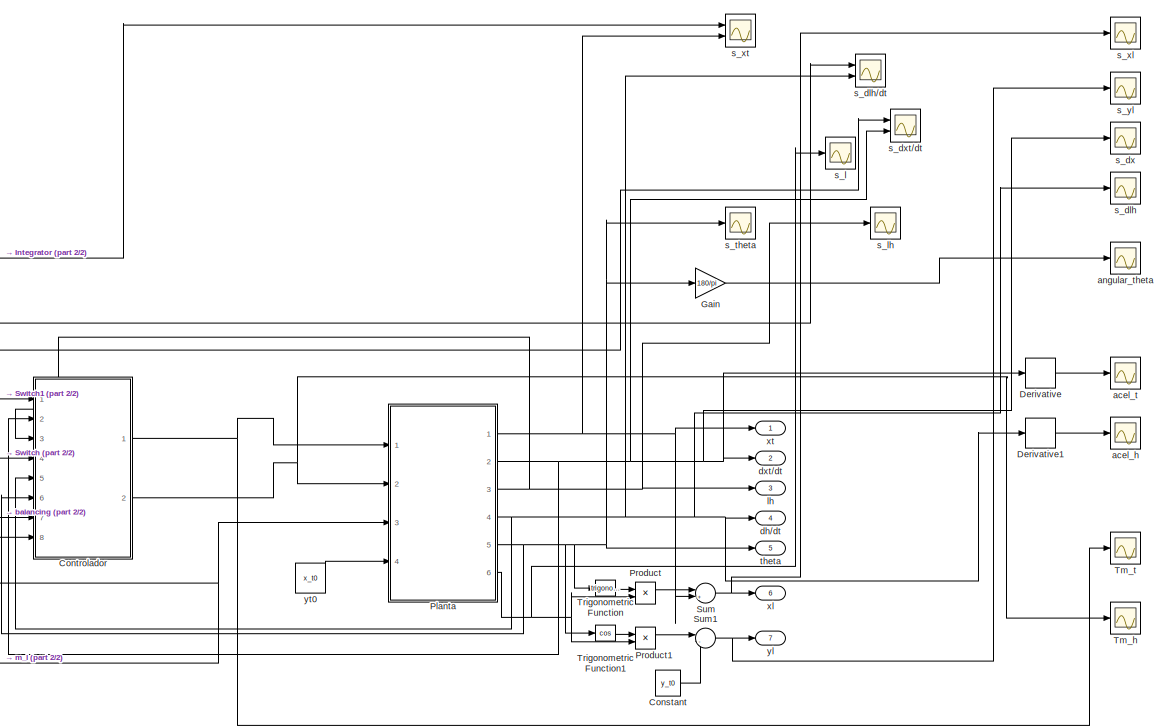
[diagram: controller-plant1 - part 1/2, right side, full height]
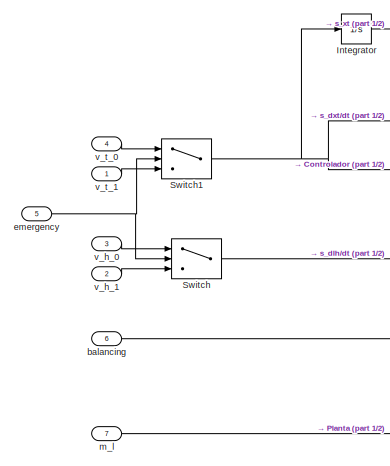
[diagram: controller-plant1 - part 2/2, middle left region]
BLOCK [SubSystem] controller-plant1
  Commented = on
  Ports = [7, 7]
  RequestExecContextInheritance = off
  Variant = off
BLOCK [Constant] controller-plant1/Constant
  Value = y_t0
BLOCK [SubSystem] controller-plant1/Controlador
  Ports = [8, 2]
  RequestExecContextInheritance = off
  Variant = off
BLOCK [Constant] controller-plant1/Controlador/Constant
  Value = 0
BLOCK [Constant] controller-plant1/Controlador/Constant1
BLOCK [SubSystem] controller-plant1/Controlador/Control PID Izaje
  Ports = [1, 1]
  RequestExecContextInheritance = off
  Variant = off
BLOCK [DiscreteIntegrator] controller-plant1/Controlador/Control PID Izaje/Discrete-Time Integrator1
  ICPrevOutput = DiscIntNeverNeededParam
  ICPrevScaledInput = DiscIntNeverNeededParam
  InitialConditionSetting = State (most efficient)
  Ports = [1, 1]
  SampleTime = 0.02
BLOCK [DiscreteIntegrator] controller-plant1/Controlador/Control PID Izaje/Discrete-Time Integrator2
  ICPrevOutput = DiscIntNeverNeededParam
  ICPrevScaledInput = DiscIntNeverNeededParam
  InitialConditionSetting = State (most efficient)
  Ports = [1, 1]
  SampleTime = 0.02
BLOCK [Gain] controller-plant1/Controlador/Control PID Izaje/Gain
  Gain = ba_h
  OutDataTypeStr = Inherit: Inherit via internal rule
  ParamDataTypeStr = Inherit: Inherit via internal rule
  SaturateOnIntegerOverflow = off
BLOCK [Gain] controller-plant1/Controlador/Control PID Izaje/Gain1
  Gain = Ksia_h
  OutDataTypeStr = Inherit: Inherit via internal rule
  ParamDataTypeStr = Inherit: Inherit via internal rule
  SaturateOnIntegerOverflow = off
BLOCK [Gain] controller-plant1/Controlador/Control PID Izaje/Gain2
  Gain = Ksa_h
  OutDataTypeStr = Inherit: Inherit via internal rule
  ParamDataTypeStr = Inherit: Inherit via internal rule
  SaturateOnIntegerOverflow = off
BLOCK [Sum] controller-plant1/Controlador/Control PID Izaje/Sum
  IconShape = round
  InputSameDT = off
  Inputs = +++
  OutDataTypeStr = Inherit: Inherit via internal rule
  Ports = [3, 1]
  SaturateOnIntegerOverflow = off
BLOCK [Outport] controller-plant1/Controlador/Control PID Izaje/Tmh
  IconDisplay = Port number
BLOCK [Inport] controller-plant1/Controlador/Control PID Izaje/errorH
  IconDisplay = Port number
BLOCK [SubSystem] controller-plant1/Controlador/Control PID Traslación 
  Ports = [1, 1]
  RequestExecContextInheritance = off
  Variant = off
BLOCK [DiscreteIntegrator] controller-plant1/Controlador/Control PID Traslación /Discrete-Time Integrator1
  ICPrevOutput = DiscIntNeverNeededParam
  ICPrevScaledInput = DiscIntNeverNeededParam
  InitialConditionSetting = State (most efficient)
  Ports = [1, 1]
  SampleTime = 0.02
BLOCK [DiscreteIntegrator] controller-plant1/Controlador/Control PID Traslación /Discrete-Time Integrator2
  ICPrevOutput = DiscIntNeverNeededParam
  ICPrevScaledInput = DiscIntNeverNeededParam
  InitialConditionSetting = State (most efficient)
  Ports = [1, 1]
  SampleTime = 0.02
BLOCK [Gain] controller-plant1/Controlador/Control PID Traslación /Gain
  Gain = ba_t
  OutDataTypeStr = Inherit: Inherit via internal rule
  ParamDataTypeStr = Inherit: Inherit via internal rule
  SaturateOnIntegerOverflow = off
BLOCK [Gain] controller-plant1/Controlador/Control PID Traslación /Gain1
  Gain = Ksia_t
  OutDataTypeStr = Inherit: Inherit via internal rule
  ParamDataTypeStr = Inherit: Inherit via internal rule
  SaturateOnIntegerOverflow = off
BLOCK [Gain] controller-plant1/Controlador/Control PID Traslación /Gain2
  Gain = Ksa_t
  OutDataTypeStr = Inherit: Inherit via internal rule
  ParamDataTypeStr = Inherit: Inherit via internal rule
  SaturateOnIntegerOverflow = off
BLOCK [Sum] controller-plant1/Controlador/Control PID Traslación /Sum
  IconShape = round
  InputSameDT = off
  Inputs = +++
  OutDataTypeStr = Inherit: Inherit via internal rule
  Ports = [3, 1]
  SaturateOnIntegerOverflow = off
BLOCK [Outport] controller-plant1/Controlador/Control PID Traslación /Tmt
  IconDisplay = Port number
BLOCK [Inport] controller-plant1/Controlador/Control PID Traslación /errorT
  IconDisplay = Port number
BLOCK [Gain] controller-plant1/Controlador/Gain
  Gain = 0.5
  OutDataTypeStr = Inherit: Inherit via internal rule
  ParamDataTypeStr = Inherit: Inherit via internal rule
  SaturateOnIntegerOverflow = off
BLOCK [SubSystem] controller-plant1/Controlador/IIR time domain
  Ports = [1, 1]
  RequestExecContextInheritance = off
  Variant = off
BLOCK [Constant] controller-plant1/Controlador/IIR time domain/1-lambda
  Value = 1-lambda
BLOCK [Delay] controller-plant1/Controlador/IIR time domain/Delay
  DelayLength = 1
  InputPortMap = u0
  Ports = [1, 1]
BLOCK [Inport] controller-plant1/Controlador/IIR time domain/In1
  IconDisplay = Port number
BLOCK [Outport] controller-plant1/Controlador/IIR time domain/Out1
  IconDisplay = Port number
BLOCK [Product] controller-plant1/Controlador/IIR time domain/Product
  InputSameDT = off
  OutDataTypeStr = Inherit: Inherit via internal rule
  Ports = [2, 1]
  RndMeth = Floor
  SaturateOnIntegerOverflow = off
BLOCK [Product] controller-plant1/Controlador/IIR time domain/Product1
  InputSameDT = off
  OutDataTypeStr = Inherit: Inherit via internal rule
  Ports = [2, 1]
  RndMeth = Floor
  SaturateOnIntegerOverflow = off
BLOCK [Sum] controller-plant1/Controlador/IIR time domain/Sum
  IconShape = round
  InputSameDT = off
  Inputs = |++
  OutDataTypeStr = Inherit: Inherit via internal rule
  Ports = [2, 1]
  SaturateOnIntegerOverflow = off
BLOCK [Constant] controller-plant1/Controlador/IIR time domain/lambda
  Value = lambda
BLOCK [SubSystem] controller-plant1/Controlador/IIR time domain1
  Ports = [1, 1]
  RequestExecContextInheritance = off
  Variant = off
BLOCK [Constant] controller-plant1/Controlador/IIR time domain1/1-lambda
  Value = 1-lambda
BLOCK [Delay] controller-plant1/Controlador/IIR time domain1/Delay
  DelayLength = 1
  InputPortMap = u0
  Ports = [1, 1]
BLOCK [Inport] controller-plant1/Controlador/IIR time domain1/In1
  IconDisplay = Port number
BLOCK [Outport] controller-plant1/Controlador/IIR time domain1/Out1
  IconDisplay = Port number
BLOCK [Product] controller-plant1/Controlador/IIR time domain1/Product
  InputSameDT = off
  OutDataTypeStr = Inherit: Inherit via internal rule
  Ports = [2, 1]
  RndMeth = Floor
  SaturateOnIntegerOverflow = off
BLOCK [Product] controller-plant1/Controlador/IIR time domain1/Product1
  InputSameDT = off
  OutDataTypeStr = Inherit: Inherit via internal rule
  Ports = [2, 1]
  RndMeth = Floor
  SaturateOnIntegerOverflow = off
BLOCK [Sum] controller-plant1/Controlador/IIR time domain1/Sum
  IconShape = round
  InputSameDT = off
  Inputs = |++
  OutDataTypeStr = Inherit: Inherit via internal rule
  Ports = [2, 1]
  SaturateOnIntegerOverflow = off
BLOCK [Constant] controller-plant1/Controlador/IIR time domain1/lambda
  Value = lambda
BLOCK [SubSystem] controller-plant1/Controlador/IIR time domain2
  Ports = [1, 1]
  RequestExecContextInheritance = off
  Variant = off
BLOCK [Constant] controller-plant1/Controlador/IIR time domain2/1-lambda
  Value = 1-lambda
BLOCK [Delay] controller-plant1/Controlador/IIR time domain2/Delay
  DelayLength = 1
  InputPortMap = u0
  Ports = [1, 1]
BLOCK [Inport] controller-plant1/Controlador/IIR time domain2/In1
  IconDisplay = Port number
BLOCK [Outport] controller-plant1/Controlador/IIR time domain2/Out1
  IconDisplay = Port number
BLOCK [Product] controller-plant1/Controlador/IIR time domain2/Product
  InputSameDT = off
  OutDataTypeStr = Inherit: Inherit via internal rule
  Ports = [2, 1]
  RndMeth = Floor
  SaturateOnIntegerOverflow = off
BLOCK [Product] controller-plant1/Controlador/IIR time domain2/Product1
  InputSameDT = off
  OutDataTypeStr = Inherit: Inherit via internal rule
  Ports = [2, 1]
  RndMeth = Floor
  SaturateOnIntegerOverflow = off
BLOCK [Sum] controller-plant1/Controlador/IIR time domain2/Sum
  IconShape = round
  InputSameDT = off
  Inputs = |++
  OutDataTypeStr = Inherit: Inherit via internal rule
  Ports = [2, 1]
  SaturateOnIntegerOverflow = off
BLOCK [Constant] controller-plant1/Controlador/IIR time domain2/lambda
  Value = lambda
BLOCK [SubSystem] controller-plant1/Controlador/IIR time domain3
  Ports = [1, 1]
  RequestExecContextInheritance = off
  Variant = off
BLOCK [Constant] controller-plant1/Controlador/IIR time domain3/1-lambda
  Value = 1-lambda
BLOCK [Delay] controller-plant1/Controlador/IIR time domain3/Delay
  DelayLength = 1
  InputPortMap = u0
  Ports = [1, 1]
BLOCK [Inport] controller-plant1/Controlador/IIR time domain3/In1
  IconDisplay = Port number
BLOCK [Outport] controller-plant1/Controlador/IIR time domain3/Out1
  IconDisplay = Port number
BLOCK [Product] controller-plant1/Controlador/IIR time domain3/Product
  InputSameDT = off
  OutDataTypeStr = Inherit: Inherit via internal rule
  Ports = [2, 1]
  RndMeth = Floor
  SaturateOnIntegerOverflow = off
BLOCK [Product] controller-plant1/Controlador/IIR time domain3/Product1
  InputSameDT = off
  OutDataTypeStr = Inherit: Inherit via internal rule
  Ports = [2, 1]
  RndMeth = Floor
  SaturateOnIntegerOverflow = off
BLOCK [Sum] controller-plant1/Controlador/IIR time domain3/Sum
  IconShape = round
  InputSameDT = off
  Inputs = |++
  OutDataTypeStr = Inherit: Inherit via internal rule
  Ports = [2, 1]
  SaturateOnIntegerOverflow = off
BLOCK [Constant] controller-plant1/Controlador/IIR time domain3/lambda
  Value = lambda
BLOCK [SubSystem] controller-plant1/Controlador/IIR time domain4
  Ports = [1, 1]
  RequestExecContextInheritance = off
  Variant = off
BLOCK [Constant] controller-plant1/Controlador/IIR time domain4/1-lambda
  Value = 1-lambda
BLOCK [Delay] controller-plant1/Controlador/IIR time domain4/Delay
  DelayLength = 1
  InputPortMap = u0
  Ports = [1, 1]
BLOCK [Inport] controller-plant1/Controlador/IIR time domain4/In1
  IconDisplay = Port number
BLOCK [Outport] controller-plant1/Controlador/IIR time domain4/Out1
  IconDisplay = Port number
BLOCK [Product] controller-plant1/Controlador/IIR time domain4/Product
  InputSameDT = off
  OutDataTypeStr = Inherit: Inherit via internal rule
  Ports = [2, 1]
  RndMeth = Floor
  SaturateOnIntegerOverflow = off
BLOCK [Product] controller-plant1/Controlador/IIR time domain4/Product1
  InputSameDT = off
  OutDataTypeStr = Inherit: Inherit via internal rule
  Ports = [2, 1]
  RndMeth = Floor
  SaturateOnIntegerOverflow = off
BLOCK [Sum] controller-plant1/Controlador/IIR time domain4/Sum
  IconShape = round
  InputSameDT = off
  Inputs = |++
  OutDataTypeStr = Inherit: Inherit via internal rule
  Ports = [2, 1]
  SaturateOnIntegerOverflow = off
BLOCK [Constant] controller-plant1/Controlador/IIR time domain4/lambda
  Value = lambda
BLOCK [SubSystem] controller-plant1/Controlador/IIR time domain5
  Ports = [1, 1]
  RequestExecContextInheritance = off
  Variant = off
BLOCK [Constant] controller-plant1/Controlador/IIR time domain5/1-lambda
  Value = 1-lambda
BLOCK [Delay] controller-plant1/Controlador/IIR time domain5/Delay
  DelayLength = 1
  InputPortMap = u0
  Ports = [1, 1]
BLOCK [Inport] controller-plant1/Controlador/IIR time domain5/In1
  IconDisplay = Port number
BLOCK [Outport] controller-plant1/Controlador/IIR time domain5/Out1
  IconDisplay = Port number
BLOCK [Product] controller-plant1/Controlador/IIR time domain5/Product
  InputSameDT = off
  OutDataTypeStr = Inherit: Inherit via internal rule
  Ports = [2, 1]
  RndMeth = Floor
  SaturateOnIntegerOverflow = off
BLOCK [Product] controller-plant1/Controlador/IIR time domain5/Product1
  InputSameDT = off
  OutDataTypeStr = Inherit: Inherit via internal rule
  Ports = [2, 1]
  RndMeth = Floor
  SaturateOnIntegerOverflow = off
BLOCK [Sum] controller-plant1/Controlador/IIR time domain5/Sum
  IconShape = round
  InputSameDT = off
  Inputs = |++
  OutDataTypeStr = Inherit: Inherit via internal rule
  Ports = [2, 1]
  SaturateOnIntegerOverflow = off
BLOCK [Constant] controller-plant1/Controlador/IIR time domain5/lambda
  Value = lambda
BLOCK [Product] controller-plant1/Controlador/Product
  InputSameDT = off
  OutDataTypeStr = Inherit: Inherit via internal rule
  Ports = [2, 1]
  RndMeth = Floor
  SaturateOnIntegerOverflow = off
BLOCK [RateLimiter] controller-plant1/Controlador/Rate Limiter1
  FallingSlewLimit = -0.5
  RisingSlewLimit = 0.5
  SampleTimeMode = inherited
BLOCK [RateLimiter] controller-plant1/Controlador/Rate Limiter2
  FallingSlewLimit = -0.5
  RisingSlewLimit = 0.5
  SampleTimeMode = inherited
BLOCK [Scope] controller-plant1/Controlador/Scope
  NumInputPorts = 1
  Ports = [1]
  ScopeSpecificationString = Simulink.scopes.TimeScopeBlockCfg('CurrentConfiguration', extmgr.ConfigurationSet(extmgr.Configuration('Core','General UI',true),extmgr.Configuration('Core','Source UI',true),extmgr.Configuration('Sources','WiredSimulink',true,'DataLoggingVariableName','ScopeData5'),extmgr.Configuration('Visuals','Time Domain',true,'SerializedDisplays',{struct('MinYLimReal','-2.47142','MaxYLimReal','2.20797','YLab...<+1375ch>
BLOCK [Scope] controller-plant1/Controlador/Scope1
  NumInputPorts = 1
  Ports = [1]
  ScopeSpecificationString = Simulink.scopes.TimeScopeBlockCfg('CurrentConfiguration', extmgr.ConfigurationSet(extmgr.Configuration('Core','General UI',true),extmgr.Configuration('Core','Source UI',true),extmgr.Configuration('Sources','WiredSimulink',true,'DataLoggingVariableName','ScopeData6'),extmgr.Configuration('Visuals','Time Domain',true,'SerializedDisplays',{struct('MinYLimReal','-1.73274','MaxYLimReal','0.59467','YLab...<+1419ch>
BLOCK [SubSystem] controller-plant1/Controlador/Subsystem1
  Ports = [3, 1]
  RequestExecContextInheritance = off
  Variant = off
BLOCK [Constant] controller-plant1/Controlador/Subsystem1/Constant
  Value = 0
BLOCK [Constant] controller-plant1/Controlador/Subsystem1/Constant1
  Value = 0
BLOCK [Constant] controller-plant1/Controlador/Subsystem1/Constant2
BLOCK [SubSystem] controller-plant1/Controlador/Subsystem1/Control de angulo 1
  Ports = [3, 1]
  RequestExecContextInheritance = off
  Variant = off
BLOCK [Constant] controller-plant1/Controlador/Subsystem1/Control de angulo 1/Constant1
  Value = 4
BLOCK [Constant] controller-plant1/Controlador/Subsystem1/Control de angulo 1/Constant2
  Value = M_t
BLOCK [Constant] controller-plant1/Controlador/Subsystem1/Control de angulo 1/Constant3
  Value = 0
BLOCK [Constant] controller-plant1/Controlador/Subsystem1/Control de angulo 1/Constant4
  Value = b_t
BLOCK [DiscreteIntegrator] controller-plant1/Controlador/Subsystem1/Control de angulo 1/Discrete-Time Integrator2
  ICPrevOutput = DiscIntNeverNeededParam
  ICPrevScaledInput = DiscIntNeverNeededParam
  InitialConditionSetting = State (most efficient)
  Ports = [1, 1]
  SampleTime = 0.02
BLOCK [Gain] controller-plant1/Controlador/Subsystem1/Control de angulo 1/Gain1
  OutDataTypeStr = Inherit: Inherit via internal rule
  ParamDataTypeStr = Inherit: Inherit via internal rule
  SaturateOnIntegerOverflow = off
BLOCK [Gain] controller-plant1/Controlador/Subsystem1/Control de angulo 1/Gain2
  OutDataTypeStr = Inherit: Inherit via internal rule
  ParamDataTypeStr = Inherit: Inherit via internal rule
  SaturateOnIntegerOverflow = off
BLOCK [SubSystem] controller-plant1/Controlador/Subsystem1/Control de angulo 1/MATLAB Function
  ErrorFcn = Stateflow.Translate.translate
  PermitHierarchicalResolution = ExplicitOnly
  Ports = [5, 2]
  RequestExecContextInheritance = off
  SFBlockType = MATLAB Function
  TreatAsAtomicUnit = on
  Variant = off
BLOCK [Demux] controller-plant1/Controlador/Subsystem1/Control de angulo 1/MATLAB Function/ Demux 
  Outputs = 1
  Ports = [1, 1]
BLOCK [S-Function] controller-plant1/Controlador/Subsystem1/Control de angulo 1/MATLAB Function/ SFunction 
  EnableBusSupport = on
  FunctionName = sf_sfun
  PortCounts = [5 3]
  Ports = [5, 3]
  SFcnIsStateOwnerBlock = off
  SFunctionDeploymentMode = off
  Tag = Stateflow S-Function Proyecto_Final 9
BLOCK [Terminator] controller-plant1/Controlador/Subsystem1/Control de angulo 1/MATLAB Function/ Terminator 
BLOCK [Inport] controller-plant1/Controlador/Subsystem1/Control de angulo 1/MATLAB Function/Mt
  IconDisplay = Port number
  Port = 4
BLOCK [Inport] controller-plant1/Controlador/Subsystem1/Control de angulo 1/MATLAB Function/bt
  IconDisplay = Port number
  Port = 5
BLOCK [Outport] controller-plant1/Controlador/Subsystem1/Control de angulo 1/MATLAB Function/kd
  IconDisplay = Port number
  Port = 2
BLOCK [Outport] controller-plant1/Controlador/Subsystem1/Control de angulo 1/MATLAB Function/kp
  IconDisplay = Port number
BLOCK [Inport] controller-plant1/Controlador/Subsystem1/Control de angulo 1/MATLAB Function/lh
  IconDisplay = Port number
BLOCK [Inport] controller-plant1/Controlador/Subsystem1/Control de angulo 1/MATLAB Function/m
  IconDisplay = Port number
  Port = 2
BLOCK [Inport] controller-plant1/Controlador/Subsystem1/Control de angulo 1/MATLAB Function/p
  IconDisplay = Port number
  Port = 3
BLOCK [Outport] controller-plant1/Controlador/Subsystem1/Control de angulo 1/Out1
  IconDisplay = Port number
BLOCK [Product] controller-plant1/Controlador/Subsystem1/Control de angulo 1/Product1
  InputSameDT = off
  OutDataTypeStr = Inherit: Inherit via internal rule
  Ports = [2, 1]
  RndMeth = Floor
  SaturateOnIntegerOverflow = off
BLOCK [Product] controller-plant1/Controlador/Subsystem1/Control de angulo 1/Product3
  InputSameDT = off
  OutDataTypeStr = Inherit: Inherit via internal rule
  Ports = [2, 1]
  RndMeth = Floor
  SaturateOnIntegerOverflow = off
BLOCK [Scope] controller-plant1/Controlador/Subsystem1/Control de angulo 1/Scope1
  NumInputPorts = 1
  Ports = [1]
  ScopeSpecificationString = Simulink.scopes.TimeScopeBlockCfg('CurrentConfiguration', extmgr.ConfigurationSet(extmgr.Configuration('Core','General UI',true),extmgr.Configuration('Core','Source UI',true),extmgr.Configuration('Sources','WiredSimulink',true,'DataLoggingVariableName','ScopeData1'),extmgr.Configuration('Visuals','Time Domain',true,'SerializedDisplays',{struct('MinYLimReal','-28.82753','MaxYLimReal','28.51807','YL...<+1558ch>
BLOCK [Sum] controller-plant1/Controlador/Subsystem1/Control de angulo 1/Sum5
  IconShape = round
  InputSameDT = off
  Inputs = |+++|
  OutDataTypeStr = Inherit: Inherit via internal rule
  Ports = [3, 1]
  SaturateOnIntegerOverflow = off
BLOCK [Sum] controller-plant1/Controlador/Subsystem1/Control de angulo 1/Sum6
  IconShape = round
  InputSameDT = off
  Inputs = |+-
  OutDataTypeStr = Inherit: Inherit via internal rule
  Ports = [2, 1]
  SaturateOnIntegerOverflow = off
BLOCK [Inport] controller-plant1/Controlador/Subsystem1/Control de angulo 1/l
  IconDisplay = Port number
  Port = 3
BLOCK [Inport] controller-plant1/Controlador/Subsystem1/Control de angulo 1/m
  IconDisplay = Port number
  Port = 2
BLOCK [Inport] controller-plant1/Controlador/Subsystem1/Control de angulo 1/theta
  IconDisplay = Port number
BLOCK [ManualSwitch] controller-plant1/Controlador/Subsystem1/Manual Switch
  CurrentSetting = 0
BLOCK [Outport] controller-plant1/Controlador/Subsystem1/Out1
  IconDisplay = Port number
BLOCK [Switch] controller-plant1/Controlador/Subsystem1/Switch
  Criteria = u2 > Threshold
  InputSameDT = off
  SaturateOnIntegerOverflow = off
BLOCK [Inport] controller-plant1/Controlador/Subsystem1/l
  IconDisplay = Port number
  Port = 2
BLOCK [Inport] controller-plant1/Controlador/Subsystem1/m_l
  IconDisplay = Port number
  Port = 3
BLOCK [Inport] controller-plant1/Controlador/Subsystem1/theta
  IconDisplay = Port number
BLOCK [SubSystem] controller-plant1/Controlador/Subsystem3
  Ports = [1, 1]
  RequestExecContextInheritance = off
  Variant = off
BLOCK [Gain] controller-plant1/Controlador/Subsystem3/3
  Gain = 4
  OutDataTypeStr = Inherit: Inherit via internal rule
  ParamDataTypeStr = Inherit: Inherit via internal rule
  SaturateOnIntegerOverflow = off
BLOCK [Inport] controller-plant1/Controlador/Subsystem3/In1
  IconDisplay = Port number
BLOCK [Outport] controller-plant1/Controlador/Subsystem3/Out1
  IconDisplay = Port number
BLOCK [Sum] controller-plant1/Controlador/Subsystem3/Sum5
  IconShape = round
  InputSameDT = off
  Inputs = |+-
  OutDataTypeStr = Inherit: Inherit via internal rule
  Ports = [2, 1]
  SaturateOnIntegerOverflow = off
BLOCK [Integrator] controller-plant1/Controlador/Subsystem3/dl_h(t)3
  Ports = [1, 1]
BLOCK [Sum] controller-plant1/Controlador/Sum
  IconShape = round
  InputSameDT = off
  Inputs = -+|
  OutDataTypeStr = Inherit: Inherit via internal rule
  Ports = [2, 1]
  SaturateOnIntegerOverflow = off
BLOCK [Sum] controller-plant1/Controlador/Sum1
  IconShape = round
  InputSameDT = off
  Inputs = |+-
  OutDataTypeStr = Inherit: Inherit via internal rule
  Ports = [2, 1]
  SaturateOnIntegerOverflow = off
BLOCK [Sum] controller-plant1/Controlador/Sum2
  IconShape = round
  InputSameDT = off
  Inputs = |+-
  OutDataTypeStr = Inherit: Inherit via internal rule
  Ports = [2, 1]
  SaturateOnIntegerOverflow = off
BLOCK [Switch] controller-plant1/Controlador/Switch
  Criteria = u2 > Threshold
  InputSameDT = off
  SaturateOnIntegerOverflow = off
  Threshold = 0.5
BLOCK [Outport] controller-plant1/Controlador/Tm_h
  IconDisplay = Port number
  Port = 2
BLOCK [Outport] controller-plant1/Controlador/Tm_t
  IconDisplay = Port number
BLOCK [Scope] controller-plant1/Controlador/Tm_t1
  NumInputPorts = 1
  Ports = [1]
  ScopeSpecificationString = Simulink.scopes.TimeScopeBlockCfg('CurrentConfiguration', extmgr.ConfigurationSet(extmgr.Configuration('Core','General UI',true),extmgr.Configuration('Core','Source UI',true),extmgr.Configuration('Sources','WiredSimulink',true,'DataLoggingVariableName','ScopeData8'),extmgr.Configuration('Visuals','Time Domain',true,'SerializedDisplays',{struct('MinYLimReal','-517.87059','MaxYLimReal','3504.9005','...<+1466ch>
BLOCK [Scope] controller-plant1/Controlador/Tm_t2
  NumInputPorts = 1
  Ports = [1]
  ScopeSpecificationString = Simulink.scopes.TimeScopeBlockCfg('CurrentConfiguration', extmgr.ConfigurationSet(extmgr.Configuration('Core','General UI',true),extmgr.Configuration('Core','Source UI',true),extmgr.Configuration('Sources','WiredSimulink',true,'DataLoggingVariableName','ScopeData9'),extmgr.Configuration('Visuals','Time Domain',true,'SerializedDisplays',{struct('MinYLimReal','-1521.6324','MaxYLimReal','4579.3079','...<+1468ch>
BLOCK [Scope] controller-plant1/Controlador/Tm_t3
  NumInputPorts = 1
  Ports = [1]
  ScopeSpecificationString = Simulink.scopes.TimeScopeBlockCfg('CurrentConfiguration', extmgr.ConfigurationSet(extmgr.Configuration('Core','General UI',true),extmgr.Configuration('Core','Source UI',true),extmgr.Configuration('Sources','WiredSimulink',true,'DataLoggingVariableName','ScopeData10'),extmgr.Configuration('Visuals','Time Domain',true,'SerializedDisplays',{struct('MinYLimReal','-0.0228','MaxYLimReal','0.02906','YLab...<+1433ch>
BLOCK [Scope] controller-plant1/Controlador/Tm_t4
  NumInputPorts = 1
  Ports = [1]
  ScopeSpecificationString = Simulink.scopes.TimeScopeBlockCfg('CurrentConfiguration', extmgr.ConfigurationSet(extmgr.Configuration('Core','General UI',true),extmgr.Configuration('Core','Source UI',true),extmgr.Configuration('Sources','WiredSimulink',true,'DataLoggingVariableName','ScopeData11'),extmgr.Configuration('Visuals','Time Domain',true,'SerializedDisplays',{struct('MinYLimReal','-0.01399','MaxYLimReal','0.02641','YLa...<+1434ch>
BLOCK [Inport] controller-plant1/Controlador/balancing
  IconDisplay = Port number
  Port = 7
BLOCK [Inport] controller-plant1/Controlador/lh
  IconDisplay = Port number
  Port = 3
BLOCK [Inport] controller-plant1/Controlador/ml
  IconDisplay = Port number
  Port = 8
BLOCK [Inport] controller-plant1/Controlador/theta
  IconDisplay = Port number
  Port = 6
BLOCK [Inport] controller-plant1/Controlador/vh
  IconDisplay = Port number
  Port = 5
BLOCK [Inport] controller-plant1/Controlador/vh*
  IconDisplay = Port number
  Port = 4
BLOCK [Inport] controller-plant1/Controlador/vt
  IconDisplay = Port number
  Port = 2
BLOCK [Inport] controller-plant1/Controlador/vt*
  IconDisplay = Port number
BLOCK [Derivative] controller-plant1/Derivative
BLOCK [Derivative] controller-plant1/Derivative1
BLOCK [Gain] controller-plant1/Gain
  Gain = 180/pi
  OutDataTypeStr = Inherit: Inherit via internal rule
  ParamDataTypeStr = Inherit: Inherit via internal rule
  SaturateOnIntegerOverflow = off
BLOCK [Integrator] controller-plant1/Integrator
  Ports = [1, 1]
BLOCK [SubSystem] controller-plant1/Planta
  Ports = [4, 6]
  RequestExecContextInheritance = off
  Variant = off
BLOCK [SubSystem] controller-plant1/Planta/Balanceo
  ErrorFcn = Stateflow.Translate.translate
  PermitHierarchicalResolution = ExplicitOnly
  Ports = [4, 2]
  RequestExecContextInheritance = off
  SFBlockType = MATLAB Function
  TreatAsAtomicUnit = on
  Variant = off
BLOCK [Demux] controller-plant1/Planta/Balanceo/ Demux 
  Outputs = 1
  Ports = [1, 1]
BLOCK [S-Function] controller-plant1/Planta/Balanceo/ SFunction 
  EnableBusSupport = on
  FunctionName = sf_sfun
  PortCounts = [4 3]
  Ports = [4, 3]
  SFcnIsStateOwnerBlock = off
  SFunctionDeploymentMode = off
  Tag = Stateflow S-Function Proyecto_Final 10
BLOCK [Terminator] controller-plant1/Planta/Balanceo/ Terminator 
BLOCK [Outport] controller-plant1/Planta/Balanceo/l
  IconDisplay = Port number
BLOCK [Outport] controller-plant1/Planta/Balanceo/tita
  IconDisplay = Port number
  Port = 2
BLOCK [Inport] controller-plant1/Planta/Balanceo/xl
  IconDisplay = Port number
BLOCK [Inport] controller-plant1/Planta/Balanceo/xt0
  IconDisplay = Port number
  Port = 3
BLOCK [Inport] controller-plant1/Planta/Balanceo/yl
  IconDisplay = Port number
  Port = 2
BLOCK [Inport] controller-plant1/Planta/Balanceo/yt0
  IconDisplay = Port number
  Port = 4
BLOCK [SubSystem] controller-plant1/Planta/Carga Suspendida
  Ports = [4, 2]
  RequestExecContextInheritance = off
  Variant = off
BLOCK [Constant] controller-plant1/Planta/Carga Suspendida/Constant
  Value = g
BLOCK [Inport] controller-plant1/Planta/Carga Suspendida/Fw
  IconDisplay = Port number
BLOCK [Gain] controller-plant1/Planta/Carga Suspendida/Gain
  Gain = -1
  OutDataTypeStr = Inherit: Inherit via internal rule
  ParamDataTypeStr = Inherit: Inherit via internal rule
  SaturateOnIntegerOverflow = off
BLOCK [Integrator] controller-plant1/Planta/Carga Suspendida/Integrator
  Ports = [1, 1]
BLOCK [Integrator] controller-plant1/Planta/Carga Suspendida/Integrator1
  Ports = [1, 1]
BLOCK [Integrator] controller-plant1/Planta/Carga Suspendida/Integrator2
  InitialConditionSource = external
  Ports = [2, 1]
BLOCK [Integrator] controller-plant1/Planta/Carga Suspendida/Integrator3
  InitialConditionSource = external
  Ports = [2, 1]
BLOCK [Product] controller-plant1/Planta/Carga Suspendida/Product
  InputSameDT = off
  OutDataTypeStr = Inherit: Inherit via internal rule
  Ports = [2, 1]
  RndMeth = Floor
  SaturateOnIntegerOverflow = off
BLOCK [Product] controller-plant1/Planta/Carga Suspendida/Product1
  InputSameDT = off
  OutDataTypeStr = Inherit: Inherit via internal rule
  Ports = [2, 1]
  RndMeth = Floor
  SaturateOnIntegerOverflow = off
BLOCK [Product] controller-plant1/Planta/Carga Suspendida/Product2
  InputSameDT = off
  Inputs = */
  OutDataTypeStr = Inherit: Inherit via internal rule
  Ports = [2, 1]
  RndMeth = Floor
  SaturateOnIntegerOverflow = off
BLOCK [Product] controller-plant1/Planta/Carga Suspendida/Product3
  InputSameDT = off
  Inputs = */
  OutDataTypeStr = Inherit: Inherit via internal rule
  Ports = [2, 1]
  RndMeth = Floor
  SaturateOnIntegerOverflow = off
BLOCK [Sum] controller-plant1/Planta/Carga Suspendida/Sum
  IconShape = round
  InputSameDT = off
  Inputs = |+-
  OutDataTypeStr = Inherit: Inherit via internal rule
  Ports = [2, 1]
  SaturateOnIntegerOverflow = off
BLOCK [Trigonometry] controller-plant1/Planta/Carga Suspendida/Trigonometric Function
  Ports = [1, 1]
BLOCK [Trigonometry] controller-plant1/Planta/Carga Suspendida/Trigonometric Function1
  Operator = cos
  Ports = [1, 1]
BLOCK [Inport] controller-plant1/Planta/Carga Suspendida/ml
  IconDisplay = Port number
  Port = 4
BLOCK [Inport] controller-plant1/Planta/Carga Suspendida/tita
  IconDisplay = Port number
  Port = 2
BLOCK [Outport] controller-plant1/Planta/Carga Suspendida/xl
  IconDisplay = Port number
BLOCK [Inport] controller-plant1/Planta/Carga Suspendida/xl0
  IconDisplay = Port number
  Port = 3
BLOCK [Outport] controller-plant1/Planta/Carga Suspendida/yl
  IconDisplay = Port number
  Port = 2
BLOCK [Constant] controller-plant1/Planta/Carga Suspendida/yl0
  Value = yl0
BLOCK [Constant] controller-plant1/Planta/Constant
  Value = y_t0
BLOCK [SubSystem] controller-plant1/Planta/Fuerza Elástica
  Ports = [3, 1]
  RequestExecContextInheritance = off
  Variant = off
BLOCK [Derivative] controller-plant1/Planta/Fuerza Elástica/Derivative
BLOCK [Outport] controller-plant1/Planta/Fuerza Elástica/Fw
  IconDisplay = Port number
BLOCK [Gain] controller-plant1/Planta/Fuerza Elástica/Kw
  Gain = K_w_h
  OutDataTypeStr = Inherit: Inherit via internal rule
  ParamDataTypeStr = Inherit: Inherit via internal rule
  SaturateOnIntegerOverflow = off
BLOCK [Sum] controller-plant1/Planta/Fuerza Elástica/Sum
  IconShape = round
  InputSameDT = off
  Inputs = |-+
  OutDataTypeStr = Inherit: Inherit via internal rule
  Ports = [2, 1]
  SaturateOnIntegerOverflow = off
BLOCK [Sum] controller-plant1/Planta/Fuerza Elástica/Sum1
  IconShape = round
  InputSameDT = off
  Inputs = |+-
  OutDataTypeStr = Inherit: Inherit via internal rule
  Ports = [2, 1]
  SaturateOnIntegerOverflow = off
BLOCK [Sum] controller-plant1/Planta/Fuerza Elástica/Sum2
  IconShape = round
  InputSameDT = off
  OutDataTypeStr = Inherit: Inherit via internal rule
  Ports = [2, 1]
  SaturateOnIntegerOverflow = off
BLOCK [Gain] controller-plant1/Planta/Fuerza Elástica/bw
  Gain = b_w_h
  OutDataTypeStr = Inherit: Inherit via internal rule
  ParamDataTypeStr = Inherit: Inherit via internal rule
  SaturateOnIntegerOverflow = off
BLOCK [Inport] controller-plant1/Planta/Fuerza Elástica/dlh//dt
  IconDisplay = Port number
  Port = 3
BLOCK [Inport] controller-plant1/Planta/Fuerza Elástica/l
  IconDisplay = Port number
  Port = 2
BLOCK [Inport] controller-plant1/Planta/Fuerza Elástica/lh
  IconDisplay = Port number
BLOCK [SubSystem] controller-plant1/Planta/M.Izaje1
  Ports = [2, 2]
  RequestExecContextInheritance = off
  Variant = off
BLOCK [Constant] controller-plant1/Planta/M.Izaje1/Constant
  Value = y_t0 - h_contenedor - 5
BLOCK [Inport] controller-plant1/Planta/M.Izaje1/Fw
  IconDisplay = Port number
  Port = 2
BLOCK [Gain] controller-plant1/Planta/M.Izaje1/Gain
  Gain = r_h/R_d
  OutDataTypeStr = Inherit: Inherit via internal rule
  ParamDataTypeStr = Inherit: Inherit via internal rule
  SaturateOnIntegerOverflow = off
BLOCK [Gain] controller-plant1/Planta/M.Izaje1/Gain1
  Gain = 1/M_h
  OutDataTypeStr = Inherit: Inherit via internal rule
  ParamDataTypeStr = Inherit: Inherit via internal rule
  SaturateOnIntegerOverflow = off
BLOCK [Gain] controller-plant1/Planta/M.Izaje1/Gain2
  Gain = b_h
  OutDataTypeStr = Inherit: Inherit via internal rule
  ParamDataTypeStr = Inherit: Inherit via internal rule
  SaturateOnIntegerOverflow = off
BLOCK [Integrator] controller-plant1/Planta/M.Izaje1/Integrator
  Ports = [1, 1]
BLOCK [Integrator] controller-plant1/Planta/M.Izaje1/Integrator1
  InitialConditionSource = external
  Ports = [2, 1]
BLOCK [Sum] controller-plant1/Planta/M.Izaje1/Sum
  IconShape = round
  InputSameDT = off
  Inputs = ++-
  OutDataTypeStr = Inherit: Inherit via internal rule
  Ports = [3, 1]
  SaturateOnIntegerOverflow = off
BLOCK [Inport] controller-plant1/Planta/M.Izaje1/Tmh
  IconDisplay = Port number
BLOCK [Outport] controller-plant1/Planta/M.Izaje1/dlh//dt
  IconDisplay = Port number
  Port = 2
BLOCK [Outport] controller-plant1/Planta/M.Izaje1/lh
  IconDisplay = Port number
BLOCK [SubSystem] controller-plant1/Planta/M.Traslacional
  Ports = [4, 2]
  RequestExecContextInheritance = off
  Variant = off
BLOCK [Inport] controller-plant1/Planta/M.Traslacional/Fw
  IconDisplay = Port number
  Port = 2
BLOCK [Gain] controller-plant1/Planta/M.Traslacional/Gain
  Gain = b_t
  OutDataTypeStr = Inherit: Inherit via internal rule
  ParamDataTypeStr = Inherit: Inherit via internal rule
  SaturateOnIntegerOverflow = off
BLOCK [Gain] controller-plant1/Planta/M.Traslacional/Gain1
  Gain = r_t/R_w_t
  OutDataTypeStr = Inherit: Inherit via internal rule
  ParamDataTypeStr = Inherit: Inherit via internal rule
  SaturateOnIntegerOverflow = off
BLOCK [Gain] controller-plant1/Planta/M.Traslacional/Gain2
  Gain = 1/M_t
  OutDataTypeStr = Inherit: Inherit via internal rule
  ParamDataTypeStr = Inherit: Inherit via internal rule
  SaturateOnIntegerOverflow = off
BLOCK [Integrator] controller-plant1/Planta/M.Traslacional/Integrator
  Ports = [1, 1]
BLOCK [Integrator] controller-plant1/Planta/M.Traslacional/Integrator1
  InitialConditionSource = external
  Ports = [2, 1]
BLOCK [Product] controller-plant1/Planta/M.Traslacional/Product
  InputSameDT = off
  OutDataTypeStr = Inherit: Inherit via internal rule
  Ports = [2, 1]
  RndMeth = Floor
  SaturateOnIntegerOverflow = off
BLOCK [Sum] controller-plant1/Planta/M.Traslacional/Sum
  IconShape = round
  InputSameDT = off
  Inputs = ++-
  OutDataTypeStr = Inherit: Inherit via internal rule
  Ports = [3, 1]
  SaturateOnIntegerOverflow = off
BLOCK [Inport] controller-plant1/Planta/M.Traslacional/Tmt 
  IconDisplay = Port number
BLOCK [Trigonometry] controller-plant1/Planta/M.Traslacional/Trigonometric Function
  Ports = [1, 1]
BLOCK [Outport] controller-plant1/Planta/M.Traslacional/dxt//dt
  IconDisplay = Port number
  Port = 2
BLOCK [Inport] controller-plant1/Planta/M.Traslacional/tita
  IconDisplay = Port number
  Port = 3
BLOCK [Outport] controller-plant1/Planta/M.Traslacional/xt
  IconDisplay = Port number
BLOCK [Inport] controller-plant1/Planta/M.Traslacional/xt_0
  IconDisplay = Port number
  Port = 4
BLOCK [Inport] controller-plant1/Planta/Tmh
  IconDisplay = Port number
  Port = 2
BLOCK [Inport] controller-plant1/Planta/Tmt
  IconDisplay = Port number
BLOCK [Outport] controller-plant1/Planta/dlh//dt
  IconDisplay = Port number
  Port = 4
BLOCK [Outport] controller-plant1/Planta/dxt//dt
  IconDisplay = Port number
  Port = 2
BLOCK [Outport] controller-plant1/Planta/l
  IconDisplay = Port number
  Port = 6
BLOCK [Outport] controller-plant1/Planta/lh
  IconDisplay = Port number
  Port = 3
BLOCK [Inport] controller-plant1/Planta/ml
  IconDisplay = Port number
  Port = 3
BLOCK [Outport] controller-plant1/Planta/tita
  IconDisplay = Port number
  Port = 5
BLOCK [Inport] controller-plant1/Planta/x
  IconDisplay = Port number
  Port = 4
BLOCK [Outport] controller-plant1/Planta/xt
  IconDisplay = Port number
BLOCK [Product] controller-plant1/Product
  InputSameDT = off
  OutDataTypeStr = Inherit: Inherit via internal rule
  Ports = [2, 1]
  RndMeth = Floor
  SaturateOnIntegerOverflow = off
BLOCK [Product] controller-plant1/Product1
  InputSameDT = off
  OutDataTypeStr = Inherit: Inherit via internal rule
  Ports = [2, 1]
  RndMeth = Floor
  SaturateOnIntegerOverflow = off
BLOCK [Sum] controller-plant1/Sum
  IconShape = round
  InputSameDT = off
  Inputs = |++
  OutDataTypeStr = Inherit: Inherit via internal rule
  Ports = [2, 1]
  SaturateOnIntegerOverflow = off
BLOCK [Sum] controller-plant1/Sum1
  IconShape = round
  InputSameDT = off
  Inputs = |-+
  OutDataTypeStr = Inherit: Inherit via internal rule
  Ports = [2, 1]
  SaturateOnIntegerOverflow = off
BLOCK [Switch] controller-plant1/Switch
  Criteria = u2 > Threshold
  InputSameDT = off
  SaturateOnIntegerOverflow = off
  Threshold = 0.5
BLOCK [Switch] controller-plant1/Switch1
  Criteria = u2 > Threshold
  InputSameDT = off
  SaturateOnIntegerOverflow = off
  Threshold = 0.5
BLOCK [Scope] controller-plant1/Tm_h
  NumInputPorts = 1
  Ports = [1]
  ScopeSpecificationString = Simulink.scopes.TimeScopeBlockCfg('CurrentConfiguration', extmgr.ConfigurationSet(extmgr.Configuration('Core','General UI',true,'FigureColor',[1 1 1]),extmgr.Configuration('Core','Source UI',true),extmgr.Configuration('Sources','WiredSimulink',true,'DataLoggingVariableName','ScopeData8'),extmgr.Configuration('Visuals','Time Domain',true,'SerializedDisplays',{struct('MinYLimReal','-20976.16222','Ma...<+2325ch>
BLOCK [Scope] controller-plant1/Tm_t 
  NumInputPorts = 1
  Ports = [1]
  ScopeSpecificationString = Simulink.scopes.TimeScopeBlockCfg('CurrentConfiguration', extmgr.ConfigurationSet(extmgr.Configuration('Core','General UI',true,'FigureColor',[1 1 1]),extmgr.Configuration('Core','Source UI',true),extmgr.Configuration('Sources','WiredSimulink',true,'DataLoggingVariableName','ScopeData1'),extmgr.Configuration('Visuals','Time Domain',true,'SerializedDisplays',{struct('MinYLimReal','-2099.90568','Max...<+2323ch>
BLOCK [Trigonometry] controller-plant1/Trigonometric Function
  Ports = [1, 1]
BLOCK [Trigonometry] controller-plant1/Trigonometric Function1
  Operator = cos
  Ports = [1, 1]
BLOCK [Scope] controller-plant1/acel_h
  NumInputPorts = 1
  Ports = [1]
  ScopeSpecificationString = Simulink.scopes.TimeScopeBlockCfg('CurrentConfiguration', extmgr.ConfigurationSet(extmgr.Configuration('Core','General UI',true,'FigureColor',[1 1 1]),extmgr.Configuration('Core','Source UI',true),extmgr.Configuration('Sources','WiredSimulink',true,'DataLoggingVariableName','ScopeData7'),extmgr.Configuration('Visuals','Time Domain',true,'SerializedDisplays',{struct('MinYLimReal','-1.30838','MaxYLi...<+2303ch>
BLOCK [Scope] controller-plant1/acel_t
  NumInputPorts = 1
  Ports = [1]
  ScopeSpecificationString = Simulink.scopes.TimeScopeBlockCfg('CurrentConfiguration', extmgr.ConfigurationSet(extmgr.Configuration('Core','General UI',true,'FigureColor',[1 1 1]),extmgr.Configuration('Core','Source UI',true),extmgr.Configuration('Sources','WiredSimulink',true,'DataLoggingVariableName','ScopeData6'),extmgr.Configuration('Visuals','Time Domain',true,'SerializedDisplays',{struct('MinYLimReal','-0.96311','MaxYLi...<+2303ch>
BLOCK [Scope] controller-plant1/angular_theta
  NumInputPorts = 1
  Ports = [1]
  ScopeSpecificationString = Simulink.scopes.TimeScopeBlockCfg('CurrentConfiguration', extmgr.ConfigurationSet(extmgr.Configuration('Core','General UI',true,'FigureColor',[1 1 1]),extmgr.Configuration('Core','Source UI',true),extmgr.Configuration('Sources','WiredSimulink',true,'DataLoggingVariableName','ScopeData5'),extmgr.Configuration('Visuals','Time Domain',true,'SerializedDisplays',{struct('MinYLimReal','-4.54653','MaxYLi...<+2291ch>
BLOCK [Inport] controller-plant1/balancing
  IconDisplay = Port number
  Port = 6
BLOCK [Outport] controller-plant1/dh//dt
  IconDisplay = Port number
  Port = 4
BLOCK [Outport] controller-plant1/dxt//dt
  IconDisplay = Port number
  Port = 2
BLOCK [Inport] controller-plant1/emergency
  IconDisplay = Port number
  Port = 5
BLOCK [Outport] controller-plant1/lh
  IconDisplay = Port number
  Port = 3
BLOCK [Inport] controller-plant1/m_l
  IconDisplay = Port number
  Port = 7
BLOCK [Scope] controller-plant1/s_dlh
  NumInputPorts = 1
  Ports = [1]
  ScopeSpecificationString = Simulink.scopes.TimeScopeBlockCfg('CurrentConfiguration', extmgr.ConfigurationSet(extmgr.Configuration('Core','General UI',true,'FigureColor',[1 1 1]),extmgr.Configuration('Core','Source UI',true),extmgr.Configuration('Sources','WiredSimulink',true,'DataLoggingVariableName','ScopeData4'),extmgr.Configuration('Visuals','Time Domain',true,'SerializedDisplays',{struct('MinYLimReal','-1.23766','MaxYLi...<+2287ch>
BLOCK [Scope] controller-plant1/s_dlh//dt
  NumInputPorts = 2
  Ports = [2]
  ScopeSpecificationString = Simulink.scopes.TimeScopeBlockCfg('CurrentConfiguration', extmgr.ConfigurationSet(extmgr.Configuration('Core','General UI',true),extmgr.Configuration('Core','Source UI',true),extmgr.Configuration('Sources','WiredSimulink',true,'DataLoggingVariableName','ScopeData3'),extmgr.Configuration('Visuals','Time Domain',true,'SerializedDisplays',{struct('MinYLimReal','-0.12655','MaxYLimReal','1.13899','YLab...<+1403ch>
BLOCK [Scope] controller-plant1/s_dx
  NumInputPorts = 1
  Ports = [1]
  ScopeSpecificationString = Simulink.scopes.TimeScopeBlockCfg('CurrentConfiguration', extmgr.ConfigurationSet(extmgr.Configuration('Core','General UI',true,'FigureColor',[1 1 1]),extmgr.Configuration('Core','Source UI',true),extmgr.Configuration('Sources','WiredSimulink',true,'DataLoggingVariableName','ScopeData3'),extmgr.Configuration('Visuals','Time Domain',true,'SerializedDisplays',{struct('MinYLimReal','-4.10579','MaxYLi...<+2287ch>
BLOCK [Scope] controller-plant1/s_dxt//dt
  NumInputPorts = 2
  Ports = [2]
  ScopeSpecificationString = Simulink.scopes.TimeScopeBlockCfg('CurrentConfiguration', extmgr.ConfigurationSet(extmgr.Configuration('Core','General UI',true),extmgr.Configuration('Core','Source UI',true),extmgr.Configuration('Sources','WiredSimulink',true,'DataLoggingVariableName','ScopeData2'),extmgr.Configuration('Visuals','Time Domain',true,'SerializedDisplays',{struct('MinYLimReal','1.89949','MaxYLimReal','4.23339','YLabe...<+1409ch>
BLOCK [Scope] controller-plant1/s_l
  NumInputPorts = 1
  Ports = [1]
  ScopeSpecificationString = Simulink.scopes.TimeScopeBlockCfg('CurrentConfiguration', extmgr.ConfigurationSet(extmgr.Configuration('Core','General UI',true),extmgr.Configuration('Core','Source UI',true),extmgr.Configuration('Sources','WiredSimulink',true,'DataLoggingVariableName','ScopeData7'),extmgr.Configuration('Visuals','Time Domain',true,'SerializedDisplays',{struct('MinYLimReal','36.20814','MaxYLimReal','49.12676','YLa...<+1398ch>
BLOCK [Scope] controller-plant1/s_lh
  NumInputPorts = 1
  Ports = [1]
  ScopeSpecificationString = Simulink.scopes.TimeScopeBlockCfg('CurrentConfiguration', extmgr.ConfigurationSet(extmgr.Configuration('Core','General UI',true),extmgr.Configuration('Core','Source UI',true),extmgr.Configuration('Sources','WiredSimulink',true,'DataLoggingVariableName','ScopeData8'),extmgr.Configuration('Visuals','Time Domain',true,'SerializedDisplays',{struct('MinYLimReal','36.2554','MaxYLimReal','48.70136','YLab...<+1386ch>
BLOCK [Scope] controller-plant1/s_theta 
  NumInputPorts = 1
  Ports = [1]
  ScopeSpecificationString = Simulink.scopes.TimeScopeBlockCfg('CurrentConfiguration', extmgr.ConfigurationSet(extmgr.Configuration('Core','General UI',true),extmgr.Configuration('Core','Source UI',true),extmgr.Configuration('Sources','WiredSimulink',true,'DataLoggingVariableName','ScopeData4'),extmgr.Configuration('Visuals','Time Domain',true,'SerializedDisplays',{struct('MinYLimReal','0.00013043','MaxYLimReal','0.00013115',...<+1432ch>
BLOCK [Scope] controller-plant1/s_xl 
  NumInputPorts = 1
  Ports = [1]
  ScopeSpecificationString = Simulink.scopes.TimeScopeBlockCfg('CurrentConfiguration', extmgr.ConfigurationSet(extmgr.Configuration('Core','General UI',true,'FigureColor',[1 1 1]),extmgr.Configuration('Core','Source UI',true),extmgr.Configuration('Sources','WiredSimulink',true,'DataLoggingVariableName','ScopeData5'),extmgr.Configuration('Visuals','Time Domain',true,'SerializedDisplays',{struct('MinYLimReal','-18.38357','MaxYL...<+2285ch>
BLOCK [Scope] controller-plant1/s_xt
  NumInputPorts = 2
  Ports = [2]
  ScopeSpecificationString = Simulink.scopes.TimeScopeBlockCfg('CurrentConfiguration', extmgr.ConfigurationSet(extmgr.Configuration('Core','General UI',true),extmgr.Configuration('Core','Source UI',true),extmgr.Configuration('Sources','WiredSimulink',true,'DataLoggingVariableName','ScopeData1'),extmgr.Configuration('Visuals','Time Domain',true,'SerializedDisplays',{struct('MinYLimReal','-85.25698','MaxYLimReal','767.31283','Y...<+1441ch>
BLOCK [Scope] controller-plant1/s_yl 
  NumInputPorts = 1
  Ports = [1]
  ScopeSpecificationString = Simulink.scopes.TimeScopeBlockCfg('CurrentConfiguration', extmgr.ConfigurationSet(extmgr.Configuration('Core','General UI',true,'FigureColor',[1 1 1]),extmgr.Configuration('Core','Source UI',true),extmgr.Configuration('Sources','WiredSimulink',true,'DataLoggingVariableName','ScopeData2'),extmgr.Configuration('Visuals','Time Domain',true,'SerializedDisplays',{struct('MinYLimReal','6.76156','MaxYLim...<+2281ch>
BLOCK [Outport] controller-plant1/theta
  IconDisplay = Port number
  Port = 5
BLOCK [Inport] controller-plant1/v_h_0
  IconDisplay = Port number
  Port = 3
BLOCK [Inport] controller-plant1/v_h_1
  IconDisplay = Port number
  Port = 2
BLOCK [Inport] controller-plant1/v_t_0
  IconDisplay = Port number
  Port = 4
BLOCK [Inport] controller-plant1/v_t_1
  IconDisplay = Port number
BLOCK [Outport] controller-plant1/xl
  IconDisplay = Port number
  Port = 6
BLOCK [Outport] controller-plant1/xt 
  IconDisplay = Port number
BLOCK [Outport] controller-plant1/yl
  IconDisplay = Port number
  Port = 7
BLOCK [Constant] controller-plant1/yt0
  Value = x_t0
BLOCK [Goto] down_up
  GotoTag = V_h_joystick
BLOCK [Goto] down_up1
  Commented = on
  GotoTag = V_h_joystick
BLOCK [Display] error
  Decimation = 1
  Ports = [1]
BLOCK [Goto] right_left
  GotoTag = V_t_joystick
BLOCK [Goto] right_left1
  GotoTag = charged
BLOCK [Goto] right_left10
  GotoTag = v_t_0
BLOCK [Goto] right_left11
  GotoTag = v_h_0
BLOCK [Goto] right_left12
  GotoTag = my_container_vector
BLOCK [Goto] right_left13
  GotoTag = Tmh
BLOCK [Goto] right_left14
  GotoTag = x_traj
BLOCK [Goto] right_left15
  GotoTag = y_traj
BLOCK [Goto] right_left16
  GotoTag = Tmt
BLOCK [Goto] right_left2
  GotoTag = mode
BLOCK [Goto] right_left3
  GotoTag = balancing
BLOCK [Goto] right_left4
  GotoTag = emergency
BLOCK [Goto] right_left5
  Commented = on
  GotoTag = V_t_joystick
BLOCK [Goto] right_left6
  GotoTag = ml
BLOCK [Goto] right_left7
  GotoTag = v_h_1
BLOCK [Goto] right_left8
  GotoTag = v_t_1
BLOCK [Goto] right_left9
  GotoTag = signal_ok
BLOCK [Goto] right_limit
  GotoTag = right_limit_0
BLOCK [Goto] right_limit1
  GotoTag = right_limit_1
BLOCK [Constant] submit_GUI
  Value = 0
BLOCK [Constant] yt0
  Value = x_t0
ANNOTATION (root): CONTROLES
ANNOTATION (root): FINALES DE CARRERA
ANNOTATION (root): GRÁFICOS
ANNOTATION (root): NIVEL 0
ANNOTATION (root): NIVEL 2
ANNOTATION (root): NIVEL 1
ANNOTATION (root): PLANTA
LINE Chart1:1 -> right_left12:1
LINE Constant10:1 -> Level_1 :13
LINE Constant17:1 -> Chart1:2
LINE Constant19:1 -> Level_1 :9
LINE Constant1:1 -> Level_1 :11
LINE Constant20:1 -> Level_1 :10
NET Constant2:1 -> Goto13:1, Goto2:1, down_up1:1, right_left5:1
LINE Constant3:1 -> Level_1 :12
LINE Constant4:1 -> Level 0:12
NET Constant6:1 -> Goto14:1, Goto15:1, Goto16:1
LINE Constant8:1 -> Level 0:13
LINE Constant9:1 -> Level 0:14
LINE Constant:1 -> Manual Switch:2
LINE Controller/Chart:1 -> Controller/3:1
LINE Controller/Demux1:1 -> Controller/1:1
LINE Controller/Demux1:2 -> Controller/2:1
LINE Controller/Demux1:3 -> Controller/Chart:1
LINE Controller/Demux1:4 -> Controller/4:1
LINE Controller/Demux1:5 -> Controller/L1:1
LINE Controller/Demux1:6 -> Controller/R1:1
LINE Controller/Demux1:7 -> Controller/L2:1
LINE Controller/Demux1:8 -> Controller/R2:1
LINE Controller/Demux:1 -> Controller/right_1_left_-1:1
LINE Controller/Demux:2 -> Controller/down_1_up_-1:1
LINE Controller/Joystick Input:1 -> Controller/Demux:1
LINE Controller/Joystick Input:2 -> Controller/Demux1:1
LINE Controller:1 -> right_left:1
LINE Controller:10 -> Terminator2:1
LINE Controller:2 -> down_up:1
LINE Controller:3 -> Goto7:1
LINE Controller:4 -> Goto8:1
LINE Controller:5 -> Goto9:1
LINE Controller:6 -> Goto10:1
LINE Controller:7 -> Goto23:1
LINE Controller:8 -> Goto11:1
LINE Controller:9 -> Terminator1:1
LINE End of stroke stop Level 0/Compare To Constant1:1 -> End of stroke stop Level 0/left_limit:1
LINE End of stroke stop Level 0/Compare To Constant2:1 -> End of stroke stop Level 0/top_limit:1
LINE End of stroke stop Level 0/Compare To Constant3:1 -> End of stroke stop Level 0/bottom_limit:1
LINE End of stroke stop Level 0/Compare To Constant:1 -> End of stroke stop Level 0/right_limit:1
LINE End of stroke stop Level 0/Constant:1 -> End of stroke stop Level 0/Sum:1
NET End of stroke stop Level 0/Sum:1 -> End of stroke stop Level 0/Compare To Constant2:1, End of stroke stop Level 0/Compare To Constant3:1
LINE End of stroke stop Level 0/l_h:1 -> End of stroke stop Level 0/Sum:2
NET End of stroke stop Level 0/x_t:1 -> End of stroke stop Level 0/Compare To Constant1:1, End of stroke stop Level 0/Compare To Constant:1
LINE End of stroke stop Level 0:1 -> right_limit:1
LINE End of stroke stop Level 0:2 -> Goto18:1
LINE End of stroke stop Level 0:3 -> Goto19:1
LINE End of stroke stop Level 0:4 -> Goto20:1
LINE End of stroke stop Level 1/Compare To Constant1:1 -> End of stroke stop Level 1/left_limit:1
LINE End of stroke stop Level 1/Compare To Constant2:1 -> End of stroke stop Level 1/top_limit:1
LINE End of stroke stop Level 1/Compare To Constant3:1 -> End of stroke stop Level 1/bottom_limit:1
LINE End of stroke stop Level 1/Compare To Constant:1 -> End of stroke stop Level 1/right_limit:1
LINE End of stroke stop Level 1/Constant:1 -> End of stroke stop Level 1/Sum:1
NET End of stroke stop Level 1/Sum:1 -> End of stroke stop Level 1/Compare To Constant2:1, End of stroke stop Level 1/Compare To Constant3:1
LINE End of stroke stop Level 1/l_h:1 -> End of stroke stop Level 1/Sum:2
NET End of stroke stop Level 1/x_t:1 -> End of stroke stop Level 1/Compare To Constant1:1, End of stroke stop Level 1/Compare To Constant:1
LINE End of stroke stop Level 1:1 -> right_limit1:1
LINE End of stroke stop Level 1:2 -> Goto17:1
LINE End of stroke stop Level 1:3 -> Goto21:1
LINE End of stroke stop Level 1:4 -> Goto22:1
LINE From10:1 -> Level_1 :4
LINE From11:1 -> Level_1 :5
LINE From12:1 -> Level 0:15
LINE From13:1 -> Chart:3
LINE From14:1 -> controller-plant1:6
LINE From15:1 -> Chart:4
LINE From16:1 -> Chart:5
LINE From17:1 -> Chart:6
LINE From18:1 -> Chart:7
LINE From19:1 -> End of stroke stop Level 0:1
LINE From1:1 -> Level 0:10
LINE From20:1 -> End of stroke stop Level 0:2
LINE From21:1 -> End of stroke stop Level 1:1
LINE From22:1 -> End of stroke stop Level 1:2
LINE From23:1 -> Level 0:3
LINE From24:1 -> Level 0:4
LINE From25:1 -> Level 0:5
LINE From26:1 -> Level 0:6
LINE From27:1 -> Level_1 :14
LINE From28:1 -> Level_1 :15
LINE From29:1 -> Level_1 :16
LINE From2:1 -> Level2:7
LINE From30:1 -> Level_1 :17
LINE From31:1 -> controller-plant1:7
LINE From32:1 -> controller-plant1:2
LINE From33:1 -> Level 0:1
LINE From34:1 -> controller-plant1:1
LINE From35:1 -> Level 0:2
LINE From36:1 -> Level 0:9
LINE From37:1 -> controller-plant1:5
LINE From38:1 -> controller-plant1:4
LINE From39:1 -> controller-plant1:3
LINE From3:1 -> Chart:1
LINE From40:1 -> Level_1 :1
LINE From41:1 -> Level_1 :2
LINE From42:1 -> Level_1 :3
LINE From43:1 -> Chart:8
LINE From44:1 -> Level_1 :20
LINE From45:1 -> Chart:9
LINE From46:1 -> Chart1:1
LINE From47:1 -> Chart1:3
LINE From48:1 -> Chart:10
LINE From49:1 -> Chart:11
LINE From4:1 -> Chart:2
LINE From50:1 -> Chart1:4
LINE From51:1 -> Chart1:5
LINE From52:1 -> Plant:2
LINE From53:1 -> Plant:1
LINE From54:1 -> Level2:10
LINE From55:1 -> Level2:8
LINE From56:1 -> Level2:2
LINE From57:1 -> Level2:4
LINE From58:1 -> Level2:1
LINE From59:1 -> Level2:6
LINE From5:1 -> Level_1 :6
LINE From60:1 -> Plant:3
LINE From61:1 -> Level2:11
LINE From62:1 -> Level2:5
LINE From63:1 -> Level2:9
LINE From64:1 -> Level2:3
LINE From6:1 -> Level_1 :7
LINE From7:1 -> Level_1 :8
LINE From8:1 -> Level 0:7
LINE From9:1 -> Level 0:8
LINE From:1 -> Level 0:11
LINE Level 0:1 -> right_left4:1
LINE Level 0:2 -> error:1
LINE Level 0:3 -> right_left11:1
LINE Level 0:4 -> right_left10:1
LINE Level2/Controlador/Constant1:1 -> Level2/Controlador/Gain:1
LINE Level2/Controlador/Constant:1 -> Level2/Controlador/Switch:3
LINE Level2/Controlador/Control PID Izaje/Gain1:1 -> Level2/Controlador/Control PID Izaje/Sum:1
LINE Level2/Controlador/Control PID Izaje/Gain2:1 -> Level2/Controlador/Control PID Izaje/Sum:2
LINE Level2/Controlador/Control PID Izaje/Gain:1 -> Level2/Controlador/Control PID Izaje/Sum:3
NET Level2/Controlador/Control PID Izaje/Integrator1:1 -> Level2/Controlador/Control PID Izaje/Gain2:1, Level2/Controlador/Control PID Izaje/Integrator:1
LINE Level2/Controlador/Control PID Izaje/Integrator:1 -> Level2/Controlador/Control PID Izaje/Gain1:1
LINE Level2/Controlador/Control PID Izaje/Sum:1 -> Level2/Controlador/Control PID Izaje/Tmh:1
NET Level2/Controlador/Control PID Izaje/errorH:1 -> Level2/Controlador/Control PID Izaje/Gain:1, Level2/Controlador/Control PID Izaje/Integrator1:1
LINE Level2/Controlador/Control PID Izaje:1 -> Level2/Controlador/Tm_h:1
LINE Level2/Controlador/Control PID Traslación /Gain1:1 -> Level2/Controlador/Control PID Traslación /Sum:1
LINE Level2/Controlador/Control PID Traslación /Gain2:1 -> Level2/Controlador/Control PID Traslación /Sum:2
LINE Level2/Controlador/Control PID Traslación /Gain:1 -> Level2/Controlador/Control PID Traslación /Sum:3
NET Level2/Controlador/Control PID Traslación /Integrator1:1 -> Level2/Controlador/Control PID Traslación /Gain2:1, Level2/Controlador/Control PID Traslación /Integrator:1
LINE Level2/Controlador/Control PID Traslación /Integrator:1 -> Level2/Controlador/Control PID Traslación /Gain1:1
LINE Level2/Controlador/Control PID Traslación /Sum:1 -> Level2/Controlador/Control PID Traslación /Tmt:1
NET Level2/Controlador/Control PID Traslación /errorT:1 -> Level2/Controlador/Control PID Traslación /Gain:1, Level2/Controlador/Control PID Traslación /Integrator1:1
NET Level2/Controlador/Control PID Traslación :1 -> Level2/Controlador/Tm_t1:1, Level2/Controlador/Tm_t2:1, Level2/Controlador/Tm_t:1
LINE Level2/Controlador/Gain:1 -> Level2/Controlador/Product:2
LINE Level2/Controlador/IIR time domain/1-lambda:1 -> Level2/Controlador/IIR time domain/Product:2
LINE Level2/Controlador/IIR time domain/Delay:1 -> Level2/Controlador/IIR time domain/Product1:1
LINE Level2/Controlador/IIR time domain/In1:1 -> Level2/Controlador/IIR time domain/Product:1
LINE Level2/Controlador/IIR time domain/Product1:1 -> Level2/Controlador/IIR time domain/Sum:2
LINE Level2/Controlador/IIR time domain/Product:1 -> Level2/Controlador/IIR time domain/Sum:1
NET Level2/Controlador/IIR time domain/Sum:1 -> Level2/Controlador/IIR time domain/Delay:1, Level2/Controlador/IIR time domain/Out1:1
LINE Level2/Controlador/IIR time domain/lambda:1 -> Level2/Controlador/IIR time domain/Product1:2
LINE Level2/Controlador/Product:1 -> Level2/Controlador/Switch:1
NET Level2/Controlador/Rate Limiter1:1 -> Level2/Controlador/Scope:1, Level2/Controlador/Sum2:1
NET Level2/Controlador/Rate Limiter2:1 -> Level2/Controlador/Scope1:1, Level2/Controlador/Sum1:1
LINE Level2/Controlador/Subsystem1/Constant1:1 -> Level2/Controlador/Subsystem1/Manual Switch:1
LINE Level2/Controlador/Subsystem1/Constant2:1 -> Level2/Controlador/Subsystem1/Manual Switch:2
LINE Level2/Controlador/Subsystem1/Constant:1 -> Level2/Controlador/Subsystem1/Switch:3
LINE Level2/Controlador/Subsystem1/Control de angulo 1/Constant1:1 -> Level2/Controlador/Subsystem1/Control de angulo 1/MATLAB Function:3
LINE Level2/Controlador/Subsystem1/Control de angulo 1/Constant2:1 -> Level2/Controlador/Subsystem1/Control de angulo 1/MATLAB Function:4
LINE Level2/Controlador/Subsystem1/Control de angulo 1/Constant3:1 -> Level2/Controlador/Subsystem1/Control de angulo 1/Sum6:1
LINE Level2/Controlador/Subsystem1/Control de angulo 1/Constant4:1 -> Level2/Controlador/Subsystem1/Control de angulo 1/MATLAB Function:5
LINE Level2/Controlador/Subsystem1/Control de angulo 1/Discrete-Time Integrator2:1 -> Level2/Controlador/Subsystem1/Control de angulo 1/Product3:1
LINE Level2/Controlador/Subsystem1/Control de angulo 1/Gain1:1 -> Level2/Controlador/Subsystem1/Control de angulo 1/Product1:2
LINE Level2/Controlador/Subsystem1/Control de angulo 1/Gain2:1 -> Level2/Controlador/Subsystem1/Control de angulo 1/Product3:2
LINE Level2/Controlador/Subsystem1/Control de angulo 1/MATLAB Function:1 -> Level2/Controlador/Subsystem1/Control de angulo 1/Gain2:1
LINE Level2/Controlador/Subsystem1/Control de angulo 1/MATLAB Function:2 -> Level2/Controlador/Subsystem1/Control de angulo 1/Gain1:1
LINE Level2/Controlador/Subsystem1/Control de angulo 1/Product1:1 -> Level2/Controlador/Subsystem1/Control de angulo 1/Sum5:3
LINE Level2/Controlador/Subsystem1/Control de angulo 1/Product3:1 -> Level2/Controlador/Subsystem1/Control de angulo 1/Sum5:1
NET Level2/Controlador/Subsystem1/Control de angulo 1/Sum5:1 -> Level2/Controlador/Subsystem1/Control de angulo 1/Out1:1, Level2/Controlador/Subsystem1/Control de angulo 1/Scope1:1
NET Level2/Controlador/Subsystem1/Control de angulo 1/Sum6:1 -> Level2/Controlador/Subsystem1/Control de angulo 1/Discrete-Time Integrator2:1, Level2/Controlador/Subsystem1/Control de angulo 1/Product1:1
LINE Level2/Controlador/Subsystem1/Control de angulo 1/l:1 -> Level2/Controlador/Subsystem1/Control de angulo 1/MATLAB Function:1
LINE Level2/Controlador/Subsystem1/Control de angulo 1/m:1 -> Level2/Controlador/Subsystem1/Control de angulo 1/MATLAB Function:2
LINE Level2/Controlador/Subsystem1/Control de angulo 1/theta:1 -> Level2/Controlador/Subsystem1/Control de angulo 1/Sum6:2
LINE Level2/Controlador/Subsystem1/Control de angulo 1:1 -> Level2/Controlador/Subsystem1/Switch:1
LINE Level2/Controlador/Subsystem1/Manual Switch:1 -> Level2/Controlador/Subsystem1/Switch:2
LINE Level2/Controlador/Subsystem1/Switch:1 -> Level2/Controlador/Subsystem1/Out1:1
LINE Level2/Controlador/Subsystem1/l:1 -> Level2/Controlador/Subsystem1/Control de angulo 1:3
LINE Level2/Controlador/Subsystem1/m_l:1 -> Level2/Controlador/Subsystem1/Control de angulo 1:2
LINE Level2/Controlador/Subsystem1/theta:1 -> Level2/Controlador/Subsystem1/Control de angulo 1:1
LINE Level2/Controlador/Subsystem1:1 -> Level2/Controlador/Product:1
NET Level2/Controlador/Subsystem3/3:1 -> Level2/Controlador/Subsystem3/Out1:1, Level2/Controlador/Subsystem3/Sum5:2
LINE Level2/Controlador/Subsystem3/In1:1 -> Level2/Controlador/Subsystem3/Sum5:1
LINE Level2/Controlador/Subsystem3/Sum5:1 -> Level2/Controlador/Subsystem3/dl_h(t)3:1
LINE Level2/Controlador/Subsystem3/dl_h(t)3:1 -> Level2/Controlador/Subsystem3/3:1
NET Level2/Controlador/Sum1:1 -> Level2/Controlador/Control PID Izaje:1, Level2/Controlador/Tm_t3:1, Level2/Controlador/Tm_t4:1
LINE Level2/Controlador/Sum2:1 -> Level2/Controlador/Sum:2
LINE Level2/Controlador/Sum:1 -> Level2/Controlador/Control PID Traslación :1
LINE Level2/Controlador/Switch:1 -> Level2/Controlador/Sum2:2
LINE Level2/Controlador/balancing:1 -> Level2/Controlador/Switch:2
LINE Level2/Controlador/lh:1 -> Level2/Controlador/Subsystem1:2
LINE Level2/Controlador/ml:1 -> Level2/Controlador/Subsystem1:3
LINE Level2/Controlador/theta:1 -> Level2/Controlador/Subsystem1:1
LINE Level2/Controlador/vh*:1 -> Level2/Controlador/Rate Limiter2:1
LINE Level2/Controlador/vh:1 -> Level2/Controlador/Sum1:2
LINE Level2/Controlador/vt*:1 -> Level2/Controlador/Rate Limiter1:1
LINE Level2/Controlador/vt:1 -> Level2/Controlador/Sum:1
LINE Level2/Controlador:1 -> Level2/Tmt:1
LINE Level2/Controlador:2 -> Level2/Tmh :1
LINE Level2/Switch1:1 -> Level2/Controlador:1
LINE Level2/Switch:1 -> Level2/Controlador:4
LINE Level2/balancing:1 -> Level2/Controlador:7
NET Level2/emergency:1 -> Level2/Switch1:2, Level2/Switch:2
LINE Level2/lh:1 -> Level2/Controlador:3
LINE Level2/ml:1 -> Level2/Controlador:8
LINE Level2/theta:1 -> Level2/Controlador:6
LINE Level2/v_h_0:1 -> Level2/Switch:1
LINE Level2/v_h_1:1 -> Level2/Switch:3
LINE Level2/v_t_0:1 -> Level2/Switch1:1
LINE Level2/v_t_1:1 -> Level2/Switch1:3
LINE Level2/vh:1 -> Level2/Controlador:5
LINE Level2/vt:1 -> Level2/Controlador:2
LINE Level2:1 -> right_left16:1
LINE Level2:2 -> right_left13:1
LINE Level_1 :1 -> right_left7:1
LINE Level_1 :2 -> right_left8:1
LINE Level_1 :3 -> Manual Switch:1
LINE Level_1 :4 -> right_left3:1
LINE Level_1 :5 -> right_left6:1
LINE Level_1 :6 -> right_left1:1
LINE Level_1 :7 -> right_left2:1
LINE Level_1 :8 -> right_left14:1
LINE Level_1 :9 -> right_left15:1
LINE Manual Switch:1 -> right_left9:1
LINE Plant/Constant:1 -> Plant/Sum1:2
LINE Plant/Derivative1:1 -> Plant/acel_h:1
LINE Plant/Derivative:1 -> Plant/acel_t:1
LINE Plant/Gain:1 -> Plant/angular_theta:1
NET Plant/Planta1/Balanceo:1 -> Plant/Planta1/Fuerza Elástica:2, Plant/Planta1/l:1
NET Plant/Planta1/Balanceo:2 -> Plant/Planta1/Carga Suspendida:2, Plant/Planta1/M.Traslacional:3, Plant/Planta1/tita:1
LINE Plant/Planta1/Carga Suspendida/Constant:1 -> Plant/Planta1/Carga Suspendida/Sum:2
NET Plant/Planta1/Carga Suspendida/Fw:1 -> Plant/Planta1/Carga Suspendida/Gain:1, Plant/Planta1/Carga Suspendida/Product:1
LINE Plant/Planta1/Carga Suspendida/Gain:1 -> Plant/Planta1/Carga Suspendida/Product1:1
LINE Plant/Planta1/Carga Suspendida/Integrator1:1 -> Plant/Planta1/Carga Suspendida/Integrator3:1
LINE Plant/Planta1/Carga Suspendida/Integrator2:1 -> Plant/Planta1/Carga Suspendida/xl:1
LINE Plant/Planta1/Carga Suspendida/Integrator3:1 -> Plant/Planta1/Carga Suspendida/yl:1
LINE Plant/Planta1/Carga Suspendida/Integrator:1 -> Plant/Planta1/Carga Suspendida/Integrator2:1
LINE Plant/Planta1/Carga Suspendida/Product1:1 -> Plant/Planta1/Carga Suspendida/Product2:1
LINE Plant/Planta1/Carga Suspendida/Product2:1 -> Plant/Planta1/Carga Suspendida/Integrator:1
LINE Plant/Planta1/Carga Suspendida/Product3:1 -> Plant/Planta1/Carga Suspendida/Sum:1
LINE Plant/Planta1/Carga Suspendida/Product:1 -> Plant/Planta1/Carga Suspendida/Product3:1
LINE Plant/Planta1/Carga Suspendida/Sum:1 -> Plant/Planta1/Carga Suspendida/Integrator1:1
LINE Plant/Planta1/Carga Suspendida/Trigonometric Function1:1 -> Plant/Planta1/Carga Suspendida/Product:2
LINE Plant/Planta1/Carga Suspendida/Trigonometric Function:1 -> Plant/Planta1/Carga Suspendida/Product1:2
NET Plant/Planta1/Carga Suspendida/ml:1 -> Plant/Planta1/Carga Suspendida/Product2:2, Plant/Planta1/Carga Suspendida/Product3:2
NET Plant/Planta1/Carga Suspendida/tita:1 -> Plant/Planta1/Carga Suspendida/Trigonometric Function1:1, Plant/Planta1/Carga Suspendida/Trigonometric Function:1
LINE Plant/Planta1/Carga Suspendida/xl0:1 -> Plant/Planta1/Carga Suspendida/Integrator2:2
LINE Plant/Planta1/Carga Suspendida/yl0:1 -> Plant/Planta1/Carga Suspendida/Integrator3:2
LINE Plant/Planta1/Carga Suspendida:1 -> Plant/Planta1/Balanceo:1
LINE Plant/Planta1/Carga Suspendida:2 -> Plant/Planta1/Balanceo:2
LINE Plant/Planta1/Constant:1 -> Plant/Planta1/Balanceo:4
LINE Plant/Planta1/Fuerza Elástica/Derivative:1 -> Plant/Planta1/Fuerza Elástica/Sum1:1
LINE Plant/Planta1/Fuerza Elástica/Kw:1 -> Plant/Planta1/Fuerza Elástica/Sum2:1
LINE Plant/Planta1/Fuerza Elástica/Sum1:1 -> Plant/Planta1/Fuerza Elástica/bw:1
LINE Plant/Planta1/Fuerza Elástica/Sum2:1 -> Plant/Planta1/Fuerza Elástica/Fw:1
LINE Plant/Planta1/Fuerza Elástica/Sum:1 -> Plant/Planta1/Fuerza Elástica/Kw:1
LINE Plant/Planta1/Fuerza Elástica/bw:1 -> Plant/Planta1/Fuerza Elástica/Sum2:2
LINE Plant/Planta1/Fuerza Elástica/dlh//dt:1 -> Plant/Planta1/Fuerza Elástica/Sum1:2
NET Plant/Planta1/Fuerza Elástica/l:1 -> Plant/Planta1/Fuerza Elástica/Derivative:1, Plant/Planta1/Fuerza Elástica/Sum:2
LINE Plant/Planta1/Fuerza Elástica/lh:1 -> Plant/Planta1/Fuerza Elástica/Sum:1
NET Plant/Planta1/Fuerza Elástica:1 -> Plant/Planta1/Carga Suspendida:1, Plant/Planta1/M.Izaje1:2, Plant/Planta1/M.Traslacional:2
LINE Plant/Planta1/M.Izaje1/Constant:1 -> Plant/Planta1/M.Izaje1/Integrator1:2
LINE Plant/Planta1/M.Izaje1/Fw:1 -> Plant/Planta1/M.Izaje1/Sum:2
LINE Plant/Planta1/M.Izaje1/Gain1:1 -> Plant/Planta1/M.Izaje1/Integrator:1
LINE Plant/Planta1/M.Izaje1/Gain2:1 -> Plant/Planta1/M.Izaje1/Sum:3
LINE Plant/Planta1/M.Izaje1/Gain:1 -> Plant/Planta1/M.Izaje1/Sum:1
LINE Plant/Planta1/M.Izaje1/Integrator1:1 -> Plant/Planta1/M.Izaje1/lh:1
NET Plant/Planta1/M.Izaje1/Integrator:1 -> Plant/Planta1/M.Izaje1/Gain2:1, Plant/Planta1/M.Izaje1/Integrator1:1, Plant/Planta1/M.Izaje1/dlh//dt:1
LINE Plant/Planta1/M.Izaje1/Sum:1 -> Plant/Planta1/M.Izaje1/Gain1:1
LINE Plant/Planta1/M.Izaje1/Tmh:1 -> Plant/Planta1/M.Izaje1/Gain:1
NET Plant/Planta1/M.Izaje1:1 -> Plant/Planta1/Fuerza Elástica:1, Plant/Planta1/lh:1
NET Plant/Planta1/M.Izaje1:2 -> Plant/Planta1/Fuerza Elástica:3, Plant/Planta1/dlh//dt:1
LINE Plant/Planta1/M.Traslacional/Fw:1 -> Plant/Planta1/M.Traslacional/Product:1
LINE Plant/Planta1/M.Traslacional/Gain1:1 -> Plant/Planta1/M.Traslacional/Sum:1
LINE Plant/Planta1/M.Traslacional/Gain2:1 -> Plant/Planta1/M.Traslacional/Integrator:1
LINE Plant/Planta1/M.Traslacional/Gain:1 -> Plant/Planta1/M.Traslacional/Sum:3
LINE Plant/Planta1/M.Traslacional/Integrator1:1 -> Plant/Planta1/M.Traslacional/xt:1
NET Plant/Planta1/M.Traslacional/Integrator:1 -> Plant/Planta1/M.Traslacional/Gain:1, Plant/Planta1/M.Traslacional/Integrator1:1, Plant/Planta1/M.Traslacional/dxt//dt:1
LINE Plant/Planta1/M.Traslacional/Product:1 -> Plant/Planta1/M.Traslacional/Sum:2
LINE Plant/Planta1/M.Traslacional/Sum:1 -> Plant/Planta1/M.Traslacional/Gain2:1
LINE Plant/Planta1/M.Traslacional/Tmt :1 -> Plant/Planta1/M.Traslacional/Gain1:1
LINE Plant/Planta1/M.Traslacional/Trigonometric Function:1 -> Plant/Planta1/M.Traslacional/Product:2
LINE Plant/Planta1/M.Traslacional/tita:1 -> Plant/Planta1/M.Traslacional/Trigonometric Function:1
LINE Plant/Planta1/M.Traslacional/xt_0:1 -> Plant/Planta1/M.Traslacional/Integrator1:2
NET Plant/Planta1/M.Traslacional:1 -> Plant/Planta1/Balanceo:3, Plant/Planta1/xt:1
LINE Plant/Planta1/M.Traslacional:2 -> Plant/Planta1/dxt//dt:1
LINE Plant/Planta1/Tmh:1 -> Plant/Planta1/M.Izaje1:1
LINE Plant/Planta1/Tmt:1 -> Plant/Planta1/M.Traslacional:1
LINE Plant/Planta1/ml:1 -> Plant/Planta1/Carga Suspendida:4
NET Plant/Planta1/x:1 -> Plant/Planta1/Carga Suspendida:3, Plant/Planta1/M.Traslacional:4
NET Plant/Planta1:1 -> Plant/Sum:2, Plant/xt :1
NET Plant/Planta1:2 -> Plant/Derivative:1, Plant/dxt//dt:1, Plant/s_dx:1
LINE Plant/Planta1:3 -> Plant/lh:1
NET Plant/Planta1:4 -> Plant/Derivative1:1, Plant/dh//dt:1, Plant/s_dlh:1
NET Plant/Planta1:5 -> Plant/Gain:1, Plant/Trigonometric Function1:1, Plant/Trigonometric Function:1, Plant/theta:1
NET Plant/Planta1:6 -> Plant/Product1:2, Plant/Product:2
LINE Plant/Product1:1 -> Plant/Sum1:1
LINE Plant/Product:1 -> Plant/Sum:1
NET Plant/Sum1:1 -> Plant/s_yl :1, Plant/yl:1
NET Plant/Sum:1 -> Plant/s_xl :1, Plant/xl:1
LINE Plant/Tmh :1 -> Plant/Planta1:2
LINE Plant/Tmt:1 -> Plant/Planta1:1
LINE Plant/Trigonometric Function1:1 -> Plant/Product1:1
LINE Plant/Trigonometric Function:1 -> Plant/Product:1
LINE Plant/ml :1 -> Plant/Planta1:3
LINE Plant/x0:1 -> Plant/Planta1:4
LINE Plant:1 -> Goto28:1
LINE Plant:2 -> Goto25:1
LINE Plant:3 -> Goto29:1
LINE Plant:4 -> Goto26:1
LINE Plant:5 -> Goto27:1
LINE Plant:6 -> Goto30:1
LINE Plant:7 -> Goto31:1
LINE Real-Time-Block/Real-Time Synchronization:1 -> Real-Time-Block/Missed Ticks:1
LINE cons_pos_fin:1 -> Level_1 :18
LINE cons_pos_ini:1 -> Level_1 :19
LINE cons_to_ship:1 -> Level_1 :21
LINE controller-plant1/Constant:1 -> controller-plant1/Sum1:2
LINE controller-plant1/Controlador/Constant1:1 -> controller-plant1/Controlador/Gain:1
LINE controller-plant1/Controlador/Constant:1 -> controller-plant1/Controlador/Switch:3
NET controller-plant1/Controlador/Control PID Izaje/Discrete-Time Integrator1:1 -> controller-plant1/Controlador/Control PID Izaje/Discrete-Time Integrator2:1, controller-plant1/Controlador/Control PID Izaje/Gain2:1
LINE controller-plant1/Controlador/Control PID Izaje/Discrete-Time Integrator2:1 -> controller-plant1/Controlador/Control PID Izaje/Gain1:1
LINE controller-plant1/Controlador/Control PID Izaje/Gain1:1 -> controller-plant1/Controlador/Control PID Izaje/Sum:1
LINE controller-plant1/Controlador/Control PID Izaje/Gain2:1 -> controller-plant1/Controlador/Control PID Izaje/Sum:2
LINE controller-plant1/Controlador/Control PID Izaje/Gain:1 -> controller-plant1/Controlador/Control PID Izaje/Sum:3
LINE controller-plant1/Controlador/Control PID Izaje/Sum:1 -> controller-plant1/Controlador/Control PID Izaje/Tmh:1
NET controller-plant1/Controlador/Control PID Izaje/errorH:1 -> controller-plant1/Controlador/Control PID Izaje/Discrete-Time Integrator1:1, controller-plant1/Controlador/Control PID Izaje/Gain:1
LINE controller-plant1/Controlador/Control PID Izaje:1 -> controller-plant1/Controlador/Tm_h:1
NET controller-plant1/Controlador/Control PID Traslación /Discrete-Time Integrator1:1 -> controller-plant1/Controlador/Control PID Traslación /Discrete-Time Integrator2:1, controller-plant1/Controlador/Control PID Traslación /Gain2:1
LINE controller-plant1/Controlador/Control PID Traslación /Discrete-Time Integrator2:1 -> controller-plant1/Controlador/Control PID Traslación /Gain1:1
LINE controller-plant1/Controlador/Control PID Traslación /Gain1:1 -> controller-plant1/Controlador/Control PID Traslación /Sum:1
LINE controller-plant1/Controlador/Control PID Traslación /Gain2:1 -> controller-plant1/Controlador/Control PID Traslación /Sum:2
LINE controller-plant1/Controlador/Control PID Traslación /Gain:1 -> controller-plant1/Controlador/Control PID Traslación /Sum:3
LINE controller-plant1/Controlador/Control PID Traslación /Sum:1 -> controller-plant1/Controlador/Control PID Traslación /Tmt:1
NET controller-plant1/Controlador/Control PID Traslación /errorT:1 -> controller-plant1/Controlador/Control PID Traslación /Discrete-Time Integrator1:1, controller-plant1/Controlador/Control PID Traslación /Gain:1
NET controller-plant1/Controlador/Control PID Traslación :1 -> controller-plant1/Controlador/Tm_t1:1, controller-plant1/Controlador/Tm_t2:1, controller-plant1/Controlador/Tm_t:1
LINE controller-plant1/Controlador/Gain:1 -> controller-plant1/Controlador/Product:2
LINE controller-plant1/Controlador/IIR time domain/1-lambda:1 -> controller-plant1/Controlador/IIR time domain/Product:2
LINE controller-plant1/Controlador/IIR time domain/Delay:1 -> controller-plant1/Controlador/IIR time domain/Product1:1
LINE controller-plant1/Controlador/IIR time domain/In1:1 -> controller-plant1/Controlador/IIR time domain/Product:1
LINE controller-plant1/Controlador/IIR time domain/Product1:1 -> controller-plant1/Controlador/IIR time domain/Sum:2
LINE controller-plant1/Controlador/IIR time domain/Product:1 -> controller-plant1/Controlador/IIR time domain/Sum:1
NET controller-plant1/Controlador/IIR time domain/Sum:1 -> controller-plant1/Controlador/IIR time domain/Delay:1, controller-plant1/Controlador/IIR time domain/Out1:1
LINE controller-plant1/Controlador/IIR time domain/lambda:1 -> controller-plant1/Controlador/IIR time domain/Product1:2
LINE controller-plant1/Controlador/IIR time domain1/1-lambda:1 -> controller-plant1/Controlador/IIR time domain1/Product:2
LINE controller-plant1/Controlador/IIR time domain1/Delay:1 -> controller-plant1/Controlador/IIR time domain1/Product1:1
LINE controller-plant1/Controlador/IIR time domain1/In1:1 -> controller-plant1/Controlador/IIR time domain1/Product:1
LINE controller-plant1/Controlador/IIR time domain1/Product1:1 -> controller-plant1/Controlador/IIR time domain1/Sum:2
LINE controller-plant1/Controlador/IIR time domain1/Product:1 -> controller-plant1/Controlador/IIR time domain1/Sum:1
NET controller-plant1/Controlador/IIR time domain1/Sum:1 -> controller-plant1/Controlador/IIR time domain1/Delay:1, controller-plant1/Controlador/IIR time domain1/Out1:1
LINE controller-plant1/Controlador/IIR time domain1/lambda:1 -> controller-plant1/Controlador/IIR time domain1/Product1:2
LINE controller-plant1/Controlador/IIR time domain1:1 -> controller-plant1/Controlador/Sum:1
LINE controller-plant1/Controlador/IIR time domain2/1-lambda:1 -> controller-plant1/Controlador/IIR time domain2/Product:2
LINE controller-plant1/Controlador/IIR time domain2/Delay:1 -> controller-plant1/Controlador/IIR time domain2/Product1:1
LINE controller-plant1/Controlador/IIR time domain2/In1:1 -> controller-plant1/Controlador/IIR time domain2/Product:1
LINE controller-plant1/Controlador/IIR time domain2/Product1:1 -> controller-plant1/Controlador/IIR time domain2/Sum:2
LINE controller-plant1/Controlador/IIR time domain2/Product:1 -> controller-plant1/Controlador/IIR time domain2/Sum:1
NET controller-plant1/Controlador/IIR time domain2/Sum:1 -> controller-plant1/Controlador/IIR time domain2/Delay:1, controller-plant1/Controlador/IIR time domain2/Out1:1
LINE controller-plant1/Controlador/IIR time domain2/lambda:1 -> controller-plant1/Controlador/IIR time domain2/Product1:2
LINE controller-plant1/Controlador/IIR time domain2:1 -> controller-plant1/Controlador/Subsystem1:1
LINE controller-plant1/Controlador/IIR time domain3/1-lambda:1 -> controller-plant1/Controlador/IIR time domain3/Product:2
LINE controller-plant1/Controlador/IIR time domain3/Delay:1 -> controller-plant1/Controlador/IIR time domain3/Product1:1
LINE controller-plant1/Controlador/IIR time domain3/In1:1 -> controller-plant1/Controlador/IIR time domain3/Product:1
LINE controller-plant1/Controlador/IIR time domain3/Product1:1 -> controller-plant1/Controlador/IIR time domain3/Sum:2
LINE controller-plant1/Controlador/IIR time domain3/Product:1 -> controller-plant1/Controlador/IIR time domain3/Sum:1
NET controller-plant1/Controlador/IIR time domain3/Sum:1 -> controller-plant1/Controlador/IIR time domain3/Delay:1, controller-plant1/Controlador/IIR time domain3/Out1:1
LINE controller-plant1/Controlador/IIR time domain3/lambda:1 -> controller-plant1/Controlador/IIR time domain3/Product1:2
LINE controller-plant1/Controlador/IIR time domain3:1 -> controller-plant1/Controlador/Subsystem1:2
LINE controller-plant1/Controlador/IIR time domain4/1-lambda:1 -> controller-plant1/Controlador/IIR time domain4/Product:2
LINE controller-plant1/Controlador/IIR time domain4/Delay:1 -> controller-plant1/Controlador/IIR time domain4/Product1:1
LINE controller-plant1/Controlador/IIR time domain4/In1:1 -> controller-plant1/Controlador/IIR time domain4/Product:1
LINE controller-plant1/Controlador/IIR time domain4/Product1:1 -> controller-plant1/Controlador/IIR time domain4/Sum:2
LINE controller-plant1/Controlador/IIR time domain4/Product:1 -> controller-plant1/Controlador/IIR time domain4/Sum:1
NET controller-plant1/Controlador/IIR time domain4/Sum:1 -> controller-plant1/Controlador/IIR time domain4/Delay:1, controller-plant1/Controlador/IIR time domain4/Out1:1
LINE controller-plant1/Controlador/IIR time domain4/lambda:1 -> controller-plant1/Controlador/IIR time domain4/Product1:2
NET controller-plant1/Controlador/IIR time domain4:1 -> controller-plant1/Controlador/Scope:1, controller-plant1/Controlador/Sum2:1
LINE controller-plant1/Controlador/IIR time domain5/1-lambda:1 -> controller-plant1/Controlador/IIR time domain5/Product:2
LINE controller-plant1/Controlador/IIR time domain5/Delay:1 -> controller-plant1/Controlador/IIR time domain5/Product1:1
LINE controller-plant1/Controlador/IIR time domain5/In1:1 -> controller-plant1/Controlador/IIR time domain5/Product:1
LINE controller-plant1/Controlador/IIR time domain5/Product1:1 -> controller-plant1/Controlador/IIR time domain5/Sum:2
LINE controller-plant1/Controlador/IIR time domain5/Product:1 -> controller-plant1/Controlador/IIR time domain5/Sum:1
NET controller-plant1/Controlador/IIR time domain5/Sum:1 -> controller-plant1/Controlador/IIR time domain5/Delay:1, controller-plant1/Controlador/IIR time domain5/Out1:1
LINE controller-plant1/Controlador/IIR time domain5/lambda:1 -> controller-plant1/Controlador/IIR time domain5/Product1:2
NET controller-plant1/Controlador/IIR time domain5:1 -> controller-plant1/Controlador/Scope1:1, controller-plant1/Controlador/Sum1:1
LINE controller-plant1/Controlador/IIR time domain:1 -> controller-plant1/Controlador/Sum1:2
LINE controller-plant1/Controlador/Product:1 -> controller-plant1/Controlador/Switch:1
LINE controller-plant1/Controlador/Rate Limiter1:1 -> controller-plant1/Controlador/IIR time domain4:1
LINE controller-plant1/Controlador/Rate Limiter2:1 -> controller-plant1/Controlador/IIR time domain5:1
LINE controller-plant1/Controlador/Subsystem1/Constant1:1 -> controller-plant1/Controlador/Subsystem1/Manual Switch:1
LINE controller-plant1/Controlador/Subsystem1/Constant2:1 -> controller-plant1/Controlador/Subsystem1/Manual Switch:2
LINE controller-plant1/Controlador/Subsystem1/Constant:1 -> controller-plant1/Controlador/Subsystem1/Switch:3
LINE controller-plant1/Controlador/Subsystem1/Control de angulo 1/Constant1:1 -> controller-plant1/Controlador/Subsystem1/Control de angulo 1/MATLAB Function:3
LINE controller-plant1/Controlador/Subsystem1/Control de angulo 1/Constant2:1 -> controller-plant1/Controlador/Subsystem1/Control de angulo 1/MATLAB Function:4
LINE controller-plant1/Controlador/Subsystem1/Control de angulo 1/Constant3:1 -> controller-plant1/Controlador/Subsystem1/Control de angulo 1/Sum6:1
LINE controller-plant1/Controlador/Subsystem1/Control de angulo 1/Constant4:1 -> controller-plant1/Controlador/Subsystem1/Control de angulo 1/MATLAB Function:5
LINE controller-plant1/Controlador/Subsystem1/Control de angulo 1/Discrete-Time Integrator2:1 -> controller-plant1/Controlador/Subsystem1/Control de angulo 1/Product3:1
LINE controller-plant1/Controlador/Subsystem1/Control de angulo 1/Gain1:1 -> controller-plant1/Controlador/Subsystem1/Control de angulo 1/Product1:2
LINE controller-plant1/Controlador/Subsystem1/Control de angulo 1/Gain2:1 -> controller-plant1/Controlador/Subsystem1/Control de angulo 1/Product3:2
LINE controller-plant1/Controlador/Subsystem1/Control de angulo 1/MATLAB Function:1 -> controller-plant1/Controlador/Subsystem1/Control de angulo 1/Gain2:1
LINE controller-plant1/Controlador/Subsystem1/Control de angulo 1/MATLAB Function:2 -> controller-plant1/Controlador/Subsystem1/Control de angulo 1/Gain1:1
LINE controller-plant1/Controlador/Subsystem1/Control de angulo 1/Product1:1 -> controller-plant1/Controlador/Subsystem1/Control de angulo 1/Sum5:3
LINE controller-plant1/Controlador/Subsystem1/Control de angulo 1/Product3:1 -> controller-plant1/Controlador/Subsystem1/Control de angulo 1/Sum5:1
NET controller-plant1/Controlador/Subsystem1/Control de angulo 1/Sum5:1 -> controller-plant1/Controlador/Subsystem1/Control de angulo 1/Out1:1, controller-plant1/Controlador/Subsystem1/Control de angulo 1/Scope1:1
NET controller-plant1/Controlador/Subsystem1/Control de angulo 1/Sum6:1 -> controller-plant1/Controlador/Subsystem1/Control de angulo 1/Discrete-Time Integrator2:1, controller-plant1/Controlador/Subsystem1/Control de angulo 1/Product1:1
LINE controller-plant1/Controlador/Subsystem1/Control de angulo 1/l:1 -> controller-plant1/Controlador/Subsystem1/Control de angulo 1/MATLAB Function:1
LINE controller-plant1/Controlador/Subsystem1/Control de angulo 1/m:1 -> controller-plant1/Controlador/Subsystem1/Control de angulo 1/MATLAB Function:2
LINE controller-plant1/Controlador/Subsystem1/Control de angulo 1/theta:1 -> controller-plant1/Controlador/Subsystem1/Control de angulo 1/Sum6:2
LINE controller-plant1/Controlador/Subsystem1/Control de angulo 1:1 -> controller-plant1/Controlador/Subsystem1/Switch:1
LINE controller-plant1/Controlador/Subsystem1/Manual Switch:1 -> controller-plant1/Controlador/Subsystem1/Switch:2
LINE controller-plant1/Controlador/Subsystem1/Switch:1 -> controller-plant1/Controlador/Subsystem1/Out1:1
LINE controller-plant1/Controlador/Subsystem1/l:1 -> controller-plant1/Controlador/Subsystem1/Control de angulo 1:3
LINE controller-plant1/Controlador/Subsystem1/m_l:1 -> controller-plant1/Controlador/Subsystem1/Control de angulo 1:2
LINE controller-plant1/Controlador/Subsystem1/theta:1 -> controller-plant1/Controlador/Subsystem1/Control de angulo 1:1
LINE controller-plant1/Controlador/Subsystem1:1 -> controller-plant1/Controlador/Product:1
NET controller-plant1/Controlador/Subsystem3/3:1 -> controller-plant1/Controlador/Subsystem3/Out1:1, controller-plant1/Controlador/Subsystem3/Sum5:2
LINE controller-plant1/Controlador/Subsystem3/In1:1 -> controller-plant1/Controlador/Subsystem3/Sum5:1
LINE controller-plant1/Controlador/Subsystem3/Sum5:1 -> controller-plant1/Controlador/Subsystem3/dl_h(t)3:1
LINE controller-plant1/Controlador/Subsystem3/dl_h(t)3:1 -> controller-plant1/Controlador/Subsystem3/3:1
NET controller-plant1/Controlador/Sum1:1 -> controller-plant1/Controlador/Control PID Izaje:1, controller-plant1/Controlador/Tm_t3:1, controller-plant1/Controlador/Tm_t4:1
LINE controller-plant1/Controlador/Sum2:1 -> controller-plant1/Controlador/Sum:2
LINE controller-plant1/Controlador/Sum:1 -> controller-plant1/Controlador/Control PID Traslación :1
LINE controller-plant1/Controlador/Switch:1 -> controller-plant1/Controlador/Sum2:2
LINE controller-plant1/Controlador/balancing:1 -> controller-plant1/Controlador/Switch:2
LINE controller-plant1/Controlador/lh:1 -> controller-plant1/Controlador/IIR time domain3:1
LINE controller-plant1/Controlador/ml:1 -> controller-plant1/Controlador/Subsystem1:3
LINE controller-plant1/Controlador/theta:1 -> controller-plant1/Controlador/IIR time domain2:1
LINE controller-plant1/Controlador/vh*:1 -> controller-plant1/Controlador/Rate Limiter2:1
LINE controller-plant1/Controlador/vh:1 -> controller-plant1/Controlador/IIR time domain:1
LINE controller-plant1/Controlador/vt*:1 -> controller-plant1/Controlador/Rate Limiter1:1
LINE controller-plant1/Controlador/vt:1 -> controller-plant1/Controlador/IIR time domain1:1
NET controller-plant1/Controlador:1 -> controller-plant1/Planta:1, controller-plant1/Tm_t :1
NET controller-plant1/Controlador:2 -> controller-plant1/Planta:2, controller-plant1/Tm_h:1
LINE controller-plant1/Derivative1:1 -> controller-plant1/acel_h:1
LINE controller-plant1/Derivative:1 -> controller-plant1/acel_t:1
LINE controller-plant1/Gain:1 -> controller-plant1/angular_theta:1
LINE controller-plant1/Integrator:1 -> controller-plant1/s_xt:1
NET controller-plant1/Planta/Balanceo:1 -> controller-plant1/Planta/Fuerza Elástica:2, controller-plant1/Planta/l:1
NET controller-plant1/Planta/Balanceo:2 -> controller-plant1/Planta/Carga Suspendida:2, controller-plant1/Planta/M.Traslacional:3, controller-plant1/Planta/tita:1
LINE controller-plant1/Planta/Carga Suspendida/Constant:1 -> controller-plant1/Planta/Carga Suspendida/Sum:2
NET controller-plant1/Planta/Carga Suspendida/Fw:1 -> controller-plant1/Planta/Carga Suspendida/Gain:1, controller-plant1/Planta/Carga Suspendida/Product:1
LINE controller-plant1/Planta/Carga Suspendida/Gain:1 -> controller-plant1/Planta/Carga Suspendida/Product1:1
LINE controller-plant1/Planta/Carga Suspendida/Integrator1:1 -> controller-plant1/Planta/Carga Suspendida/Integrator3:1
LINE controller-plant1/Planta/Carga Suspendida/Integrator2:1 -> controller-plant1/Planta/Carga Suspendida/xl:1
LINE controller-plant1/Planta/Carga Suspendida/Integrator3:1 -> controller-plant1/Planta/Carga Suspendida/yl:1
LINE controller-plant1/Planta/Carga Suspendida/Integrator:1 -> controller-plant1/Planta/Carga Suspendida/Integrator2:1
LINE controller-plant1/Planta/Carga Suspendida/Product1:1 -> controller-plant1/Planta/Carga Suspendida/Product2:1
LINE controller-plant1/Planta/Carga Suspendida/Product2:1 -> controller-plant1/Planta/Carga Suspendida/Integrator:1
LINE controller-plant1/Planta/Carga Suspendida/Product3:1 -> controller-plant1/Planta/Carga Suspendida/Sum:1
LINE controller-plant1/Planta/Carga Suspendida/Product:1 -> controller-plant1/Planta/Carga Suspendida/Product3:1
LINE controller-plant1/Planta/Carga Suspendida/Sum:1 -> controller-plant1/Planta/Carga Suspendida/Integrator1:1
LINE controller-plant1/Planta/Carga Suspendida/Trigonometric Function1:1 -> controller-plant1/Planta/Carga Suspendida/Product:2
LINE controller-plant1/Planta/Carga Suspendida/Trigonometric Function:1 -> controller-plant1/Planta/Carga Suspendida/Product1:2
NET controller-plant1/Planta/Carga Suspendida/ml:1 -> controller-plant1/Planta/Carga Suspendida/Product2:2, controller-plant1/Planta/Carga Suspendida/Product3:2
NET controller-plant1/Planta/Carga Suspendida/tita:1 -> controller-plant1/Planta/Carga Suspendida/Trigonometric Function1:1, controller-plant1/Planta/Carga Suspendida/Trigonometric Function:1
LINE controller-plant1/Planta/Carga Suspendida/xl0:1 -> controller-plant1/Planta/Carga Suspendida/Integrator2:2
LINE controller-plant1/Planta/Carga Suspendida/yl0:1 -> controller-plant1/Planta/Carga Suspendida/Integrator3:2
LINE controller-plant1/Planta/Carga Suspendida:1 -> controller-plant1/Planta/Balanceo:1
LINE controller-plant1/Planta/Carga Suspendida:2 -> controller-plant1/Planta/Balanceo:2
LINE controller-plant1/Planta/Constant:1 -> controller-plant1/Planta/Balanceo:4
LINE controller-plant1/Planta/Fuerza Elástica/Derivative:1 -> controller-plant1/Planta/Fuerza Elástica/Sum1:1
LINE controller-plant1/Planta/Fuerza Elástica/Kw:1 -> controller-plant1/Planta/Fuerza Elástica/Sum2:1
LINE controller-plant1/Planta/Fuerza Elástica/Sum1:1 -> controller-plant1/Planta/Fuerza Elástica/bw:1
LINE controller-plant1/Planta/Fuerza Elástica/Sum2:1 -> controller-plant1/Planta/Fuerza Elástica/Fw:1
LINE controller-plant1/Planta/Fuerza Elástica/Sum:1 -> controller-plant1/Planta/Fuerza Elástica/Kw:1
LINE controller-plant1/Planta/Fuerza Elástica/bw:1 -> controller-plant1/Planta/Fuerza Elástica/Sum2:2
LINE controller-plant1/Planta/Fuerza Elástica/dlh//dt:1 -> controller-plant1/Planta/Fuerza Elástica/Sum1:2
NET controller-plant1/Planta/Fuerza Elástica/l:1 -> controller-plant1/Planta/Fuerza Elástica/Derivative:1, controller-plant1/Planta/Fuerza Elástica/Sum:2
LINE controller-plant1/Planta/Fuerza Elástica/lh:1 -> controller-plant1/Planta/Fuerza Elástica/Sum:1
NET controller-plant1/Planta/Fuerza Elástica:1 -> controller-plant1/Planta/Carga Suspendida:1, controller-plant1/Planta/M.Izaje1:2, controller-plant1/Planta/M.Traslacional:2
LINE controller-plant1/Planta/M.Izaje1/Constant:1 -> controller-plant1/Planta/M.Izaje1/Integrator1:2
LINE controller-plant1/Planta/M.Izaje1/Fw:1 -> controller-plant1/Planta/M.Izaje1/Sum:2
LINE controller-plant1/Planta/M.Izaje1/Gain1:1 -> controller-plant1/Planta/M.Izaje1/Integrator:1
LINE controller-plant1/Planta/M.Izaje1/Gain2:1 -> controller-plant1/Planta/M.Izaje1/Sum:3
LINE controller-plant1/Planta/M.Izaje1/Gain:1 -> controller-plant1/Planta/M.Izaje1/Sum:1
LINE controller-plant1/Planta/M.Izaje1/Integrator1:1 -> controller-plant1/Planta/M.Izaje1/lh:1
NET controller-plant1/Planta/M.Izaje1/Integrator:1 -> controller-plant1/Planta/M.Izaje1/Gain2:1, controller-plant1/Planta/M.Izaje1/Integrator1:1, controller-plant1/Planta/M.Izaje1/dlh//dt:1
LINE controller-plant1/Planta/M.Izaje1/Sum:1 -> controller-plant1/Planta/M.Izaje1/Gain1:1
LINE controller-plant1/Planta/M.Izaje1/Tmh:1 -> controller-plant1/Planta/M.Izaje1/Gain:1
NET controller-plant1/Planta/M.Izaje1:1 -> controller-plant1/Planta/Fuerza Elástica:1, controller-plant1/Planta/lh:1
NET controller-plant1/Planta/M.Izaje1:2 -> controller-plant1/Planta/Fuerza Elástica:3, controller-plant1/Planta/dlh//dt:1
LINE controller-plant1/Planta/M.Traslacional/Fw:1 -> controller-plant1/Planta/M.Traslacional/Product:1
LINE controller-plant1/Planta/M.Traslacional/Gain1:1 -> controller-plant1/Planta/M.Traslacional/Sum:1
LINE controller-plant1/Planta/M.Traslacional/Gain2:1 -> controller-plant1/Planta/M.Traslacional/Integrator:1
LINE controller-plant1/Planta/M.Traslacional/Gain:1 -> controller-plant1/Planta/M.Traslacional/Sum:3
LINE controller-plant1/Planta/M.Traslacional/Integrator1:1 -> controller-plant1/Planta/M.Traslacional/xt:1
NET controller-plant1/Planta/M.Traslacional/Integrator:1 -> controller-plant1/Planta/M.Traslacional/Gain:1, controller-plant1/Planta/M.Traslacional/Integrator1:1, controller-plant1/Planta/M.Traslacional/dxt//dt:1
LINE controller-plant1/Planta/M.Traslacional/Product:1 -> controller-plant1/Planta/M.Traslacional/Sum:2
LINE controller-plant1/Planta/M.Traslacional/Sum:1 -> controller-plant1/Planta/M.Traslacional/Gain2:1
LINE controller-plant1/Planta/M.Traslacional/Tmt :1 -> controller-plant1/Planta/M.Traslacional/Gain1:1
LINE controller-plant1/Planta/M.Traslacional/Trigonometric Function:1 -> controller-plant1/Planta/M.Traslacional/Product:2
LINE controller-plant1/Planta/M.Traslacional/tita:1 -> controller-plant1/Planta/M.Traslacional/Trigonometric Function:1
LINE controller-plant1/Planta/M.Traslacional/xt_0:1 -> controller-plant1/Planta/M.Traslacional/Integrator1:2
NET controller-plant1/Planta/M.Traslacional:1 -> controller-plant1/Planta/Balanceo:3, controller-plant1/Planta/xt:1
LINE controller-plant1/Planta/M.Traslacional:2 -> controller-plant1/Planta/dxt//dt:1
LINE controller-plant1/Planta/Tmh:1 -> controller-plant1/Planta/M.Izaje1:1
LINE controller-plant1/Planta/Tmt:1 -> controller-plant1/Planta/M.Traslacional:1
LINE controller-plant1/Planta/ml:1 -> controller-plant1/Planta/Carga Suspendida:4
NET controller-plant1/Planta/x:1 -> controller-plant1/Planta/Carga Suspendida:3, controller-plant1/Planta/M.Traslacional:4
NET controller-plant1/Planta:1 -> controller-plant1/Sum:2, controller-plant1/s_xt:2, controller-plant1/xt :1
NET controller-plant1/Planta:2 -> controller-plant1/Controlador:2, controller-plant1/Derivative:1, controller-plant1/dxt//dt:1, controller-plant1/s_dx:1, controller-plant1/s_dxt//dt:2
NET controller-plant1/Planta:3 -> controller-plant1/Controlador:3, controller-plant1/lh:1, controller-plant1/s_lh:1
NET controller-plant1/Planta:4 -> controller-plant1/Controlador:5, controller-plant1/Derivative1:1, controller-plant1/dh//dt:1, controller-plant1/s_dlh//dt:2, controller-plant1/s_dlh:1
NET controller-plant1/Planta:5 -> controller-plant1/Controlador:6, controller-plant1/Gain:1, controller-plant1/Trigonometric Function1:1, controller-plant1/Trigonometric Function:1, controller-plant1/s_theta :1, controller-plant1/theta:1
NET controller-plant1/Planta:6 -> controller-plant1/Product1:2, controller-plant1/Product:2, controller-plant1/s_l:1
LINE controller-plant1/Product1:1 -> controller-plant1/Sum1:1
LINE controller-plant1/Product:1 -> controller-plant1/Sum:1
NET controller-plant1/Sum1:1 -> controller-plant1/s_yl :1, controller-plant1/yl:1
NET controller-plant1/Sum:1 -> controller-plant1/s_xl :1, controller-plant1/xl:1
NET controller-plant1/Switch1:1 -> controller-plant1/Controlador:1, controller-plant1/Integrator:1, controller-plant1/s_dxt//dt:1
NET controller-plant1/Switch:1 -> controller-plant1/Controlador:4, controller-plant1/s_dlh//dt:1
LINE controller-plant1/Trigonometric Function1:1 -> controller-plant1/Product1:1
LINE controller-plant1/Trigonometric Function:1 -> controller-plant1/Product:1
LINE controller-plant1/balancing:1 -> controller-plant1/Controlador:7
NET controller-plant1/emergency:1 -> controller-plant1/Switch1:2, controller-plant1/Switch:2
NET controller-plant1/m_l:1 -> controller-plant1/Controlador:8, controller-plant1/Planta:3
LINE controller-plant1/v_h_0:1 -> controller-plant1/Switch:1
LINE controller-plant1/v_h_1:1 -> controller-plant1/Switch:3
LINE controller-plant1/v_t_0:1 -> controller-plant1/Switch1:1
LINE controller-plant1/v_t_1:1 -> controller-plant1/Switch1:3
LINE controller-plant1/yt0:1 -> controller-plant1/Planta:4
LINE controller-plant1:1 -> Goto3:1
LINE controller-plant1:2 -> Goto:1
LINE controller-plant1:3 -> Goto4:1
LINE controller-plant1:4 -> Goto1:1
LINE controller-plant1:5 -> Goto24:1
LINE controller-plant1:6 -> Goto5:1
LINE controller-plant1:7 -> Goto6:1
LINE submit_GUI:1 -> Level_1 :22
LINE yt0:1 -> Plant:4
note: NET lines group one-source signal fan-out (src -> all destinations, sorted); 1:1 wires keep LINE
CHART Chart1 states=8 transitions=6
  STATE_LABEL 'containers\nentry:\naux_container_vector = zeros(length(container_vector), 1);\nduring:'
  STATE_LABEL 'Normal'
  STATE_LABEL 'Wait\nentry:\nmy_container_vector = container_vector + aux_container_vector;'
  STATE_LABEL 'update_containers\nentry:\nupdate_container_vector()\n'
  STATE_LABEL '[update == 1  && after(1, sec)]'
  STATE_LABEL '[update == 0 && after(0.1,sec) ]'
  STATE_LABEL 'Spreader\n'
  STATE_LABEL 'Unchaged\nduring:\ncharged = 0;'
  STATE_LABEL 'Charged\nduring:\ncharged = 1;\n'
  STATE_LABEL '[twistlocks == 0]'
  STATE_LABEL '[twistlocks == 1]'
  STATE_LABEL 'Normal'
  STATE_LABEL 'Wait\nentry:\nmy_container_vector = container_vector + aux_container_vector;'
  STATE_LABEL 'update_containers\nentry:\nupdate_container_vector()\n'
  STATE_LABEL '[update == 1  && after(1, sec)]'
  STATE_LABEL '[update == 0 && after(0.1,sec) ]'
  STATE_LABEL 'Wait\nentry:\nmy_container_vector = container_vector + aux_container_vector;'
  STATE_LABEL 'update_containers\nentry:\nupdate_container_vector()\n'
  STATE_LABEL 'Spreader\n'
  STATE_LABEL 'Unchaged\nduring:\ncharged = 0;'
  STATE_LABEL 'Charged\nduring:\ncharged = 1;\n'
  STATE_LABEL '[twistlocks == 0]'
  STATE_LABEL '[twistlocks == 1]'
  STATE_LABEL 'Unchaged\nduring:\ncharged = 0;'
  STATE_LABEL 'Charged\nduring:\ncharged = 1;\n'
  STATE_LABEL 'update_container_vector'
  STATE_LABEL 'SCRIPT:\nfunction update_container_vector()\n\n\nx_edge = 2;\ny_edge = 2;\ncontainer_size_x = 2.44;\ncontainer_size_y = 2.79;\ny_ini = 4;\ny_platform = 0;\ny_ship_botton = -10;\n\ny_safe = 2;\n\nposition_vector = zeros(length(my_container_vector));\nfor i = 1:length(my_container_vector)\n    position_vector(i) = i;\nend\n\nx_ini = 0;\ny_fin = 0;\nx_positions = position_vector * container_size_x - container_size_x / 2 ...<+809ch>'
CHART Level 0 states=15 transitions=14
  STATE_LABEL '[v_t_o, v_h_o] = handleError(my_error)'
  STATE_LABEL 'SCRIPT:\nfunction [v_t_o, v_h_o] = handleError(my_error)\nv_t_o = v_t_1;\nv_h_o = v_h_1;\nif (my_error == 1) || (my_error == 2) % Right and left\n    v_t_o = 0;\nelseif (my_error == 3) || (my_error == 4) % Botton and top\n    v_h_o = 0;\nelseif (my_error == 5) % Overspeed\n    v_t_o = 0;\n    v_h_o = 0;\nelseif (my_error == 6) % Emergency button\n    v_t_o = 0;\n    v_h_o = 0;\nelseif (my_error == 7) % Emergenc...<+121ch>'
  STATE_LABEL 'Level0'
  STATE_LABEL 'Emergency_limit_switch_horizontal\nentry:\nemergency = 1;\nif (right_limit == 1)\n    error = 1;\nelse\n    error = 2;\nend\n'
  STATE_LABEL 'Normal_Operation\nentry:\nok = 1;\niterations = 0;\nmax_tol = 10;\ncounter = 0;\nduring:'
  STATE_LABEL 'Normal\nentry:\nemergency = 0;\nerror = 0;\nif (load_crane == 0)\n    v_max_h = v_max_h_unload;\nelse\n    v_max_h = v_max_h_load;\nend\nduring:\nv_t_0 = v_t_1;\nv_h_0 = v_h_1;'
  STATE_LABEL 'Signals'
  STATE_LABEL 'wait\nentry: iterations = iterations + 1;\n'
  STATE_LABEL 'verify\nentry:\nif iterations > 100\n    counter = 0;\n    iterations= 0;\nend\ncounter = counter + 2*( signal_ok - 0.5);\nif (abs(counter) > max_tol)\n    ok = 0;\nend'
  STATE_LABEL 'after(0.1, sec)'
  STATE_LABEL 'after(0.1, sec)'
  STATE_LABEL 'Emergency_limit_switch_vertical\nentry:\nemergency = 1;\nif (bottom_limit == 1)\n    error = 3;\nelse\n    error = 4;\nend\n'
  STATE_LABEL 'Emergency_overspeed\nentry:\nemergency = 1;\nerror = 5;\n'
  STATE_LABEL 'Emergency_button\nentry:\nemergency = 1;\nerror = 6;'
  STATE_LABEL 'Emergency_level_1\nentry:\nemergency = 1;\nerror = 8;'
  STATE_LABEL '[(right_limit == 1)||(left_limit == 1)]'
  STATE_LABEL '[(top_limit == 1) || (bottom_limit == 1)]'
  STATE_LABEL '[ (v_t > 1.1 * abs(v_max_t)) || (v_h > 1.1 *abs(v_max_h))]'
  STATE_LABEL '[push_button == 1]'
  STATE_LABEL '[ok == 0]'
  STATE_LABEL 'Emergency_limit_switch_horizontal\nentry:\nemergency = 1;\nif (right_limit == 1)\n    error = 1;\nelse\n    error = 2;\nend\n'
  STATE_LABEL 'Normal_Operation\nentry:\nok = 1;\niterations = 0;\nmax_tol = 10;\ncounter = 0;\nduring:'
  STATE_LABEL 'Normal\nentry:\nemergency = 0;\nerror = 0;\nif (load_crane == 0)\n    v_max_h = v_max_h_unload;\nelse\n    v_max_h = v_max_h_load;\nend\nduring:\nv_t_0 = v_t_1;\nv_h_0 = v_h_1;'
  STATE_LABEL 'Signals'
  STATE_LABEL 'wait\nentry: iterations = iterations + 1;\n'
  STATE_LABEL 'verify\nentry:\nif iterations > 100\n    counter = 0;\n    iterations= 0;\nend\ncounter = counter + 2*( signal_ok - 0.5);\nif (abs(counter) > max_tol)\n    ok = 0;\nend'
  STATE_LABEL 'after(0.1, sec)'
  STATE_LABEL 'after(0.1, sec)'
  STATE_LABEL 'Normal\nentry:\nemergency = 0;\nerror = 0;\nif (load_crane == 0)\n    v_max_h = v_max_h_unload;\nelse\n    v_max_h = v_max_h_load;\nend\nduring:\nv_t_0 = v_t_1;\nv_h_0 = v_h_1;'
  STATE_LABEL 'Signals'
  STATE_LABEL 'wait\nentry: iterations = iterations + 1;\n'
  STATE_LABEL 'verify\nentry:\nif iterations > 100\n    counter = 0;\n    iterations= 0;\nend\ncounter = counter + 2*( signal_ok - 0.5);\nif (abs(counter) > max_tol)\n    ok = 0;\nend'
  STATE_LABEL 'after(0.1, sec)'
  STATE_LABEL 'after(0.1, sec)'
  STATE_LABEL 'wait\nentry: iterations = iterations + 1;\n'
  STATE_LABEL 'verify\nentry:\nif iterations > 100\n    counter = 0;\n    iterations= 0;\nend\ncounter = counter + 2*( signal_ok - 0.5);\nif (abs(counter) > max_tol)\n    ok = 0;\nend'
  STATE_LABEL 'Emergency_limit_switch_vertical\nentry:\nemergency = 1;\nif (bottom_limit == 1)\n    error = 3;\nelse\n    error = 4;\nend\n'
  STATE_LABEL 'Emergency_overspeed\nentry:\nemergency = 1;\nerror = 5;\n'
  STATE_LABEL 'Emergency_button\nentry:\nemergency = 1;\nerror = 6;'
  STATE_LABEL 'Emergency_level_1\nentry:\nemergency = 1;\nerror = 8;'
CHART Level2/Controlador/Subsystem1/Control de angulo
1/MATLAB Function states=1 transitions=1
  STATE_LABEL 'eML_blk_kernel()'
  STATE_LABEL 'SCRIPT:\nfunction [kp,kd] = fn(lh,m,p,Mt,bt)\n\nkd =  lh - Mt * 9.81 / ((Mt + m) * (p^2));\nkp = 2 * p * (lh - kd);\n\n'
CHART Plant/Planta1/Balanceo states=1 transitions=1
  STATE_LABEL 'eML_blk_kernel()'
  STATE_LABEL 'SCRIPT:\nfunction [l,tita] = fcn(xl,yl,xt0,yt0)\n\ndeltax = (xl - xt0);\ndeltay = -(yl - yt0);\n\n\nl = sqrt((deltax ^ 2) + (deltay ^ 2));\n\ntita = atan2(deltax, deltay);\n\nend\n'
CHART Level_1
 states=41 transitions=36
  STATE_LABEL 'Level1\nentry:\ngo_to_ship = 1;\nto_manual = 0;\nml = m_l;\nv_max_h = v_max_h_load;\ncharged = 1;\nduring:'
  STATE_LABEL "Start\nentry:\ntraj_plt = plot(0, 0, 'r' );\nduring:"
  STATE_LABEL 'Automatico\nentry:\npos_ini_ = pos_ini;\npos_fin_ = pos_fin;\nif go_to_ship == 0\n    [pos_ini_, pos_fin_] = get_pos(pos_ini, pos_fin, container_vector);\nend\n[x_traj, y_traj] = get_trajectories(pos_ini_, pos_fin_, charged, container_vector);\nmode = 0;\nhold on\nduring:\n%v_h_1 = 0.1;\n%v_t_1 = 0.1;'
  STATE_LABEL 'to_ship\nentry:\nto_ship_finished = 0;\nabove_trajectory = 0;\nduring:\n'
  STATE_LABEL 'Vertical\nentry:\ny_finish = get_y_finish();\nduring:\nif y_finish > yl\n    v_h_1 = - v_max_h * vertical_gain() ;\nelse\n    above_trajectory = 1;\nend\nv_t_1 = 0;\n'
  STATE_LABEL 'Diagonal_Up\nentry:\n[vh1_, vt1_] = get_v_up(1, 1);\nduring:\nmy_gain = get_gains();\n[vh1_, vt1_] = get_v_up(1, 1);\nv_h_1 = vh1_ * my_gain;\nv_t_1 = vt1_ * my_gain;\n'
  STATE_LABEL 'Horizontal\nentry:\nduring:\nmy_gain = get_gains();\nv_h_1 = 0;\nv_t_1 = v_max_t * my_gain;\n'
  STATE_LABEL 'Diagonal_Down\nentry:\n[vh_1, vt_1] = get_v_down(1, 1);\nduring:\nmy_gain = get_gains();\n[vh_1, vt_1] = get_v_down(1, 1);\nv_h_1 = vh_1 * my_gain;\nv_t_1 = vt_1 * my_gain;\n'
  STATE_LABEL 'Stop\nduring:\nv_h_1 = 0;\nv_t_1 = 0;\nto_ship_finished = 1;\ngo_to_ship = 0;\n'
  STATE_LABEL '[above_trajectory == 1]'
  STATE_LABEL '[xl > x_traj(3)]'
  STATE_LABEL '[(yl > (y_finish - 0.1)) && (yl < (y_finish + 0.1))]'
  STATE_LABEL '[yl >=  y_traj(2)]'
  STATE_LABEL '[xt > x_traj(3)]'
  STATE_LABEL '[xt > x_traj(4) && abs(yl - y_traj(4)) < 2]'
  STATE_LABEL 'from_ship\nentry:\nfrom_ship_finished = 0;\nabove_trajectory = 0;\nduring:\n'
  STATE_LABEL 'Vertical\nentry:\ny_finish = get_y_finish();\nduring:\nif y_finish > yl\n    v_h_1 = - v_max_h * vertical_gain();\nelse\n    above_trajectory = 1;\nend\nv_t_1 = 0;\n'
  STATE_LABEL 'Diagonal_Up\nentry:\n[vh1_, vt1_] = get_v_up_return(1, 1);\nduring:\nmy_gain = get_gains_return();\n[vh1_, vt1_] = get_v_up_return(1, 1);\nv_h_1 = vh1_ * my_gain;\nv_t_1 = vt1_ * my_gain;\n'
  STATE_LABEL 'Horizontal\nentry:\nduring:\nmy_gain = get_gains_return();\nv_h_1 = 0;\nv_t_1 = -v_max_t * my_gain;\n'
  STATE_LABEL 'Diagonal_Down\nentry:\n[vh_1, vt_1] = get_v_down_return(1, 1);\nduring:\nmy_gain = get_gains_return();\n[vh_1, vt_1] = get_v_down_return(1, 1);\nv_h_1 = vh_1 * my_gain;\nv_t_1 = vt_1 * my_gain;\n'
  STATE_LABEL 'Stop\nduring:\nv_h_1 = 0;\nv_t_1 = 0;\nfrom_ship_finished = 1;\ngo_to_ship = 1;\n'
  STATE_LABEL '[above_trajectory == 1]'
  STATE_LABEL '[xl < x_traj(2)]'
  STATE_LABEL '[(yl > (y_finish - 0.1)) && (yl < (y_finish + 0.1))]'
  STATE_LABEL '[yl >=  y_traj(3)]'
  STATE_LABEL '[xt < x_traj(2)]'
  STATE_LABEL '[xt < x_traj(1) && abs(yl - y_traj(1)) < 2]'
  STATE_LABEL 'Wait \nentry: from_ship_finished = 0;\n to_ship_finished = 0;\nentry:\nduring:\nv_h_1 = 0;\nv_t_1 = 0;\n'
  STATE_LABEL '[go_to_ship == 0 && automatic == 1]'
  STATE_LABEL '[go_to_ship == 1 && automatic == 1]'
  STATE_LABEL '[from_ship_finished == 1 || go_to_ship == 1]'
  STATE_LABEL '[to_ship_finished == 1 || go_to_ship == 0]'
  STATE_LABEL "Manual\nentry:\n%set(traj_plt, 'Visible', 'off')\nto_manual = 0;\nmode = 1;\nduring:\nv_t_1 = calculate_vt1();\nv_h_1 = calculate_vh1();"
  STATE_LABEL 'Finales_carrera\nduring:\nif bottom_limit == 1\n    v_t_1 = calculate_vt1();\n    v_h_1 = -0.1;\nend\nif left_limit == 1\n    v_t_1 = 0.1;\n    v_h_1 = calculate_vh1();\nend\nif right_limit == 1\n    v_t_1 = -0.1;\n    v_h_1 = calculate_vh1();\nend\nif top_limit == 1\n    v_t_1 = calculate_vt1();\n    v_h_1 = 0.1;\nend'
  STATE_LABEL '[automatic == 1 && after(1, sec) && yl > get_automatic_high()]'
  STATE_LABEL '[abs(V_t_joystick) > 0.5  || abs(V_h_joystick > 0.5)]'
  STATE_LABEL '[to_manual == 1]'
  STATE_LABEL '[bottom_limit == 0 && top_limit == 0 && left_limit == 0 && right_limit == 0 ]'
  STATE_LABEL '[bottom_limit == 1 || top_limit == 1 || left_limit == 1 || right_limit == 1 ]'
  STATE_LABEL '[bottom_limit == 1 || top_limit == 1 || left_limit == 1 || right_limit == 1 ]'
CHART Chart states=10 transitions=4
  STATE_LABEL 'Plotting\n\n'
  STATE_LABEL "plot_structure\nentry:\nplot_crane(container_vector);\ntr_plt = rectangle('Position', [0,0,0,0], 'FaceColor',[1 1 1], 'EdgeColor','r','LineWidth',0.3);\nspr_plt = rectangle('Position', [0,0,0,0], 'FaceColor',[1 1 1], 'EdgeColor','r','LineWidth',0.3);\nwire_plt = plot([0,0],[0,0], 'r','linewidth', 3);\nch_plt =  rectangle('Position', [0,0,0,0], 'FaceColor',[1 1 1], 'EdgeColor','r','LineWidth',0.3);\ntra_p...<+234ch>"
  STATE_LABEL 'update_plt\nentry:\nupdate_crane()'
  STATE_LABEL '[update == 1]'
  STATE_LABEL '[update == 0]'
  STATE_LABEL "plot_structure\nentry:\nplot_crane(container_vector);\ntr_plt = rectangle('Position', [0,0,0,0], 'FaceColor',[1 1 1], 'EdgeColor','r','LineWidth',0.3);\nspr_plt = rectangle('Position', [0,0,0,0], 'FaceColor',[1 1 1], 'EdgeColor','r','LineWidth',0.3);\nwire_plt = plot([0,0],[0,0], 'r','linewidth', 3);\nch_plt =  rectangle('Position', [0,0,0,0], 'FaceColor',[1 1 1], 'EdgeColor','r','LineWidth',0.3);\ntra_p...<+234ch>"
  STATE_LABEL 'update_plt\nentry:\nupdate_crane()'
  STATE_LABEL 'plot_crane(containers)'
  STATE_LABEL 'SCRIPT:\nfunction plot_crane(containers)\nx_edge = 2;\ny_edge = 2;\ncontainer_size_x = 2.44;\ncontainer_size_y = 2.79;\ny_ini = 4;\ny_platform = 0;\ny_ship_bottom = -10;\ny_safe = 2;\ny_t0 = 45;\ndistancia_carriles = 1;\n\nx_ini = 0;\ny_fin = 0;\n\nbarco_extremo_der = length(containers) * container_size_x + x_edge + 0.5;\n\nx_min = -36;\nx_max = 56;\ny_min = -25;\ny_max = 50;\n\n%Viga horizontal\nYvigah = [y_t0, y_t0];\nX...<+2198ch>'
  STATE_LABEL 'plot_trolley(xt_)'
  STATE_LABEL "SCRIPT:\nfunction plot_trolley(xt_)\n%delete(tr_plt);\nset(tr_plt,'Visible','off')\ntrolley_size_x = 4;\ntrolley_size_y = 2.5;\ntrolley_y = 45;\ntrolley_x = xt_ - trolley_size_x / 2;\ntr_plt = rectangle('Position', [trolley_x, trolley_y, trolley_size_x, trolley_size_y], 'FaceColor',[1 1 1], 'EdgeColor','r','LineWidth',0.3);\nend\n"
  STATE_LABEL 'plot_spreader(xl_, yl_)'
  STATE_LABEL "SCRIPT:\nfunction plot_spreader(xl_, yl_)\n\nset(spr_plt,'Visible','off')\n\nspreader_size_x = 0.4;\nspreader_size_y = 0.4;\n\n\nspr_plt = rectangle('Position', [xl_ - spreader_size_x/2, yl_ - spreader_size_y/2, spreader_size_x, spreader_size_y], 'FaceColor',[0 0 0], 'EdgeColor','k','LineWidth',0.3);\n\nend\n \n"
  STATE_LABEL 'plot_wire(xl_, yl_, xt_)'
  STATE_LABEL "SCRIPT:\nfunction plot_wire(xl_, yl_, xt_)\n\nset(wire_plt,'Visible','off')\nx_trolley = xt_; \ny_trolley = 45;\nx_spreader = xl_;\ny_spreader = yl_;\n\npoint_trolley = [x_trolley, x_spreader];\npoint_spreader = [y_trolley, y_spreader];\n\nwire_plt = plot(point_trolley,point_spreader, 'k','linewidth', 1.5);\nend\n \n"
  STATE_LABEL 'plot_indicators'
  STATE_LABEL "SCRIPT:\nfunction plot_indicators()\nx_circle = -5;\ny_circles = -10 - 1;\nif emergency == 0\n    rectangle('Position', [x_circle, y_circles + 3, 2, 2], 'FaceColor',[1 0 0], 'EdgeColor','r','LineWidth',0.3);\nelse\n    rectangle('Position', [x_circle, y_circles + 3, 2, 2], 'FaceColor',[0 1 0], 'EdgeColor','g','LineWidth',0.3);\nend\n\nif mode == 0\n     rectangle('Position', [x_circle, y_circles, 2, 2], 'Fac...<+687ch>"
  STATE_LABEL 'plot_charged(xl_, yl_, charged_container)'
  STATE_LABEL "SCRIPT:\nfunction plot_charged(xl_, yl_, charged_container)\ncontainer_size_x = 2.44;\ncontainer_size_y = 2.79;\nif charged_container == 0\n    set(ch_plt,'Visible','off');\nend\nif charged_container == 1\n    set(ch_plt,'Visible','off');\n    center_container_x = xl_ - container_size_x / 2;\n    center_container_y = yl_ - container_size_y;\n    ch_plt = rectangle('Position', [center_container_x, center_cont...<+117ch>"
  STATE_LABEL 'update_crane'
  STATE_LABEL "SCRIPT:\nfunction update_crane\nif update == 1 \n    clf(1, 'reset')\nend\nend"
CHART Controller/Chart states=2 transitions=3
  STATE_LABEL 'Up\nduring:\noutput = 1;'
  STATE_LABEL 'Down\nduring:\noutput = 0;'
CHART controller-plant1/Controlador/Subsystem1/Control de angulo
1/MATLAB Function states=1 transitions=1
  STATE_LABEL 'eML_blk_kernel()'
  STATE_LABEL 'SCRIPT:\nfunction [kp,kd] = fn(lh,m,p,Mt,bt)\n\nkd =  lh - Mt * 9.81 / ((Mt + m) * (p^2));\nkp = 2 * p * (lh - kd);\n\n'
CHART controller-plant1/Planta/Balanceo states=1 transitions=1
  STATE_LABEL 'eML_blk_kernel()'
  STATE_LABEL 'SCRIPT:\nfunction [l,tita] = fcn(xl,yl,xt0,yt0)\n\ndeltax = (xl - xt0);\ndeltay = -(yl - yt0);\n\n\nl = sqrt((deltax ^ 2) + (deltay ^ 2));\n\ntita = atan2(deltax, deltay);\n\nend\n'
